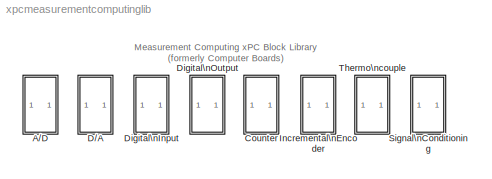
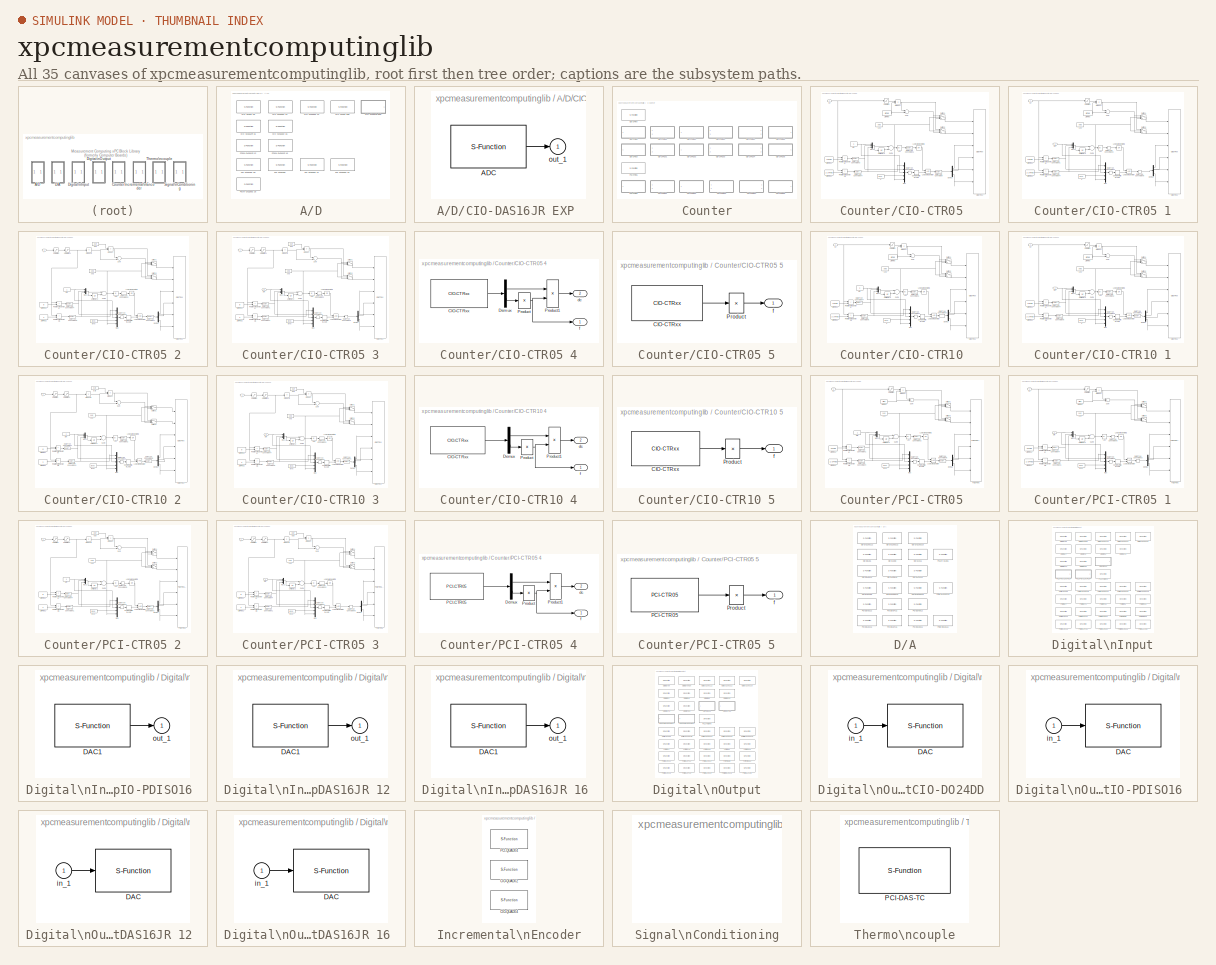
[diagram: thumbnail index - all 35 canvases of the model, root first then tree order]
MODEL xpcmeasurementcomputinglib
KIND library
BLOCK [SubSystem] A//D
  EnableExecutionContextPropagation = on
  MinAlgLoopOccurrences = off
  Ports = []
  TreatAsAtomicUnit = off
BLOCK [S-Function] A//D/CIO-DAS16 330 
  FunctionName = adcbciodas
  InitFcn = madcbciodas(1);
  MaskCallbackString = ||||
  MaskDescription = CIO-DAS16/300\nComputerBoards\nAnalog Input
  MaskDisplay = disp('CIO-DAS16/330\\nComputerBoards\\nAnalog Input');port_label('output',1,'1');
  MaskEnableString = on,on,on,on,on
  MaskHelp = helpview(fullfile(docroot, 'mapfiles', 'xpc.map'), 'ComputerBoards_CIO-DAS16-330_AD')
  MaskIconFrame = on
  MaskIconOpaque = on
  MaskIconRotate = none
  MaskIconUnits = autoscale
  MaskInitialization = baseaddress=hex2dec(baseaddress(3:end));\nboardType=4;gain=0;offset=0;control=0;\n[gain, offset, control]=madcbciodas(2, channel, range, mux, baseaddress, boardType);\n
  MaskPromptString = Number of channels:|Range vector:|Input coupling:|Sample time:|Base address (i.e. 0xd000):
  MaskSelfModifiable = on
  MaskStyleString = edit,popup(+-10V|+-5V|+-2.5V|+-1.25V|+-0.625V|0-10V|0-5V|0-2.5V|0-1.25V),popup(Single-ended (16 channels)|differential (8 channels)),edit,edit
  MaskTabNameString = ,,,,
  MaskToolTipString = on,on,on,on,on
  MaskTunableValueString = on,on,on,on,on
  MaskType = adcbpcidas
  MaskValueString = 1|+-10V|Single-ended (16 channels)|0.001|0x300
  MaskVarAliasString = ,,,,
  MaskVariables = channel=@1;range=@2;mux=@3;sampletime=@4;baseaddress=&5;
  MaskVisibilityString = on,on,on,on,on
  Parameters = channel, range, gain, offset, control, mux, sampletime, baseaddress,  boardType
  Ports = [0, 1]
BLOCK [S-Function] A//D/CIO-DAS16 JR 
  FunctionName = adcbciodas
  InitFcn = madcbciodas(1);
  MaskCallbackString = ||||
  MaskDescription = CIO-DAS16/JR\nComputerBoards\nAnalog Input
  MaskDisplay = disp('CIO-DAS16/JR\\nComputerBoards\\nAnalog Input');port_label('output',1,'1');
  MaskEnableString = on,on,on,on,on
  MaskHelp = helpview(fullfile(docroot, 'mapfiles', 'xpc.map'), 'ComputerBoards_CIO-DAS16-JR_AD')
  MaskIconFrame = on
  MaskIconOpaque = on
  MaskIconRotate = none
  MaskIconUnits = autoscale
  MaskInitialization = baseaddress=hex2dec(baseaddress(3:end));\nboardType=1;gain=0;offset=0;control=0;\n[gain, offset, control]=madcbciodas(2, channel, range, mux, baseaddress, boardType);\n
  MaskPromptString = Number of channels:|Range vector:|Input coupling:|Sample time:|Base address (i.e. 0xd000):
  MaskSelfModifiable = on
  MaskStyleString = edit,popup(+-10V|+-5V|+-2.5V|+-1.25V|+-0.625V|0-10V|0-5V|0-2.5V|0-1.25V),popup(Single-ended (16 channels)|differential (8 channels)),edit,edit
  MaskTabNameString = ,,,,
  MaskToolTipString = on,on,on,on,on
  MaskTunableValueString = on,on,on,on,on
  MaskType = adcbpcidas
  MaskValueString = 1|+-10V|Single-ended (16 channels)|0.001|0x300
  MaskVarAliasString = ,,,,
  MaskVariables = channel=@1;range=@2;mux=@3;sampletime=@4;baseaddress=&5;
  MaskVisibilityString = on,on,on,on,on
  Parameters = channel, range, gain, offset, control, mux, sampletime, baseaddress,  boardType
  Ports = [0, 1]
BLOCK [S-Function] A//D/CIO-DAS1601 12 
  FunctionName = adcbciodas
  InitFcn = madcbciodas(1);
  MaskCallbackString = ||||
  MaskDescription = CIO-DAS1601/12\nComputerBoards\nAnalog Input
  MaskDisplay = disp('CIO-DAS1601/12\\nComputerBoards\\nAnalog Input');port_label('output',1,'1');
  MaskEnableString = on,on,on,on,on
  MaskHelp = helpview(fullfile(docroot, 'mapfiles', 'xpc.map'), 'ComputerBoards_CIO-DAS1601-12_AD')
  MaskIconFrame = on
  MaskIconOpaque = on
  MaskIconRotate = none
  MaskIconUnits = autoscale
  MaskInitialization = baseaddress=hex2dec(baseaddress(3:end));\nboardType=2;gain=0;offset=0;control=0;\n[gain, offset, control]=madcbciodas(2, channel, range, mux, baseaddress, boardType);\n
  MaskPromptString = Number of channels:|Range vector:|Input coupling:|Sample time:|Base address (i.e. 0xd000):
  MaskSelfModifiable = on
  MaskStyleString = edit,popup(+-10V|+-1V|+-0.1V|+-0.01V|0-10V|0-1V|0-0.1V|0-0.01V),popup(Single-ended (16 channels)|Differential (8 channels)),edit,edit
  MaskTabNameString = ,,,,
  MaskToolTipString = on,on,on,on,on
  MaskTunableValueString = on,on,on,on,on
  MaskType = adcbpcidas
  MaskValueString = 1|+-10V|Single-ended (16 channels)|0.001|0x300
  MaskVarAliasString = ,,,,
  MaskVariables = channel=@1;range=@2;mux=@3;sampletime=@4;baseaddress=&5;
  MaskVisibilityString = on,on,on,on,on
  Parameters = channel, range, gain, offset, control, mux, sampletime, baseaddress,  boardType
  Ports = [0, 1]
BLOCK [S-Function] A//D/CIO-DAS1602 12 
  FunctionName = adcbciodas
  InitFcn = madcbciodas(1);
  MaskCallbackString = ||||
  MaskDescription = CIO-DAS1602/12\nComputerBoards\nAnalog Input
  MaskDisplay = disp('CIO-DAS1602/12\\nComputerBoards\\nAnalog Input');port_label('output',1,'1');
  MaskEnableString = on,on,on,on,on
  MaskHelp = helpview(fullfile(docroot, 'mapfiles', 'xpc.map'), 'ComputerBoards_CIO-DAS1602-12_AD')
  MaskIconFrame = on
  MaskIconOpaque = on
  MaskIconRotate = none
  MaskIconUnits = autoscale
  MaskInitialization = baseaddress=hex2dec(baseaddress(3:end));\nboardType=3;gain=0;offset=0;control=0;\n[gain, offset, control]=madcbciodas(2, channel, range, mux, baseaddress, boardType);\n
  MaskPromptString = Number of channels:|Range vector:|Input coupling:|Sample time:|Base address (i.e. 0xd000):
  MaskSelfModifiable = on
  MaskStyleString = edit,popup(+-10V|+-5V|+-2.5V|+-1.25V|0-10V|0-5V|0-2.5V|0-1.25V),popup(Single-ended (16 channels)|Differential (8 channels)),edit,edit
  MaskTabNameString = ,,,,
  MaskToolTipString = on,on,on,on,on
  MaskTunableValueString = on,on,on,on,on
  MaskType = adcbpcidas
  MaskValueString = 1|+-10V|Single-ended (16 channels)|0.001|0x300
  MaskVarAliasString = ,,,,
  MaskVariables = channel=@1;range=@2;mux=@3;sampletime=@4;baseaddress=&5;
  MaskVisibilityString = on,on,on,on,on
  Parameters = channel, range, gain, offset, control, mux, sampletime, baseaddress,  boardType
  Ports = [0, 1]
BLOCK [S-Function] A//D/CIO-DAS1602 16 
  FunctionName = adcbciodas
  InitFcn = madcbciodas(1);
  MaskCallbackString = ||||
  MaskDescription = CIO-DAS1602/16\nComputerBoards\nAnalog Input
  MaskDisplay = disp('CIO-DAS1602/16\\nComputerBoards\\nAnalog Input');port_label('output',1,'1');
  MaskEnableString = on,on,on,on,on
  MaskHelp = helpview(fullfile(docroot, 'mapfiles', 'xpc.map'), 'ComputerBoards_CIO-DAS1602-16_AD')
  MaskIconFrame = on
  MaskIconOpaque = on
  MaskIconRotate = none
  MaskIconUnits = autoscale
  MaskInitialization = baseaddress=hex2dec(baseaddress(3:end));\nboardType=7;gain=0;offset=0;control=0;\n[gain, offset, control]=madcbciodas(2, channel, range, mux, baseaddress, boardType);\n
  MaskPromptString = Number of channels:|Range vector:|Input coupling:|Sample time:|Base address (i.e. 0xd000):
  MaskSelfModifiable = on
  MaskStyleString = edit,popup(+-10V|+-5V|+-2.5V|+-1.25V|+-0.625V|0-10V|0-5V|0-2.5V|0-1.25V),popup(Single-ended (16 channels)|differential (8 channels)),edit,edit
  MaskTabNameString = ,,,,
  MaskToolTipString = on,on,on,on,on
  MaskTunableValueString = on,on,on,on,on
  MaskType = adcbpcidas
  MaskValueString = 1|+-10V|Single-ended (16 channels)|0.001|0x300
  MaskVarAliasString = ,,,,
  MaskVariables = channel=@1;range=@2;mux=@3;sampletime=@4;baseaddress=&5;
  MaskVisibilityString = on,on,on,on,on
  Parameters = channel, range, gain, offset, control, mux, sampletime, baseaddress,  boardType
  Ports = [0, 1]
BLOCK [S-Function] A//D/CIO-DAS16JR 16 
  FunctionName = adcbciodas
  InitFcn = madcbciodas(1);
  MaskCallbackString = ||||
  MaskDescription = CIO-DAS16JR/16\nComputerBoards\nAnalog Input
  MaskDisplay = disp('CIO-DAS16JR/16\\nComputerBoards\\nAnalog Input');port_label('output',1,'1');
  MaskEnableString = on,on,on,on,on
  MaskHelp = helpview(fullfile(docroot, 'mapfiles', 'xpc.map'), 'ComputerBoards_CIO-DAS16JR-16_AD')
  MaskIconFrame = on
  MaskIconOpaque = on
  MaskIconRotate = none
  MaskIconUnits = autoscale
  MaskInitialization = baseaddress=hex2dec(baseaddress(3:end));\nboardType=6;gain=0;offset=0;control=0;\n[gain, offset, control]=madcbciodas(2, channel, range, mux, baseaddress, boardType);\n
  MaskPromptString = Number of channels:|Range vector:|Input coupling:|Sample time:|Base address (i.e. 0xd000):
  MaskSelfModifiable = on
  MaskStyleString = edit,popup(+-10V|+-5V|+-2.5V|+-1.25V|+-0.625V|0-10V|0-5V|0-2.5V|0-1.25V),popup(Single-ended (16 channels)|differential (8 channels)),edit,edit
  MaskTabNameString = ,,,,
  MaskToolTipString = on,on,on,on,on
  MaskTunableValueString = on,on,on,on,on
  MaskType = adcbpcidas
  MaskValueString = 1|+-10V|Single-ended (16 channels)|0.001|0x300
  MaskVarAliasString = ,,,,
  MaskVariables = channel=@1;range=@2;mux=@3;sampletime=@4;baseaddress=&5;
  MaskVisibilityString = on,on,on,on,on
  Parameters = channel, range, gain, offset, control, mux, sampletime, baseaddress,  boardType
  Ports = [0, 1]
BLOCK [SubSystem] A//D/CIO-DAS16JR EXP 
  EnableExecutionContextPropagation = on
  MaskCallbackString = |||||
  MaskDescription = Computer Boards\nCIO-DAS16/Jr with EXP\nAnalog Input
  MaskDisplay = disp('CIO-DAS16/Jr EXP\\nComputerBoards\\nAnalog Input')
  MaskEnableString = on,on,on,on,on,on
  MaskHelp = helpview(fullfile(docroot, 'mapfiles', 'xpc.map'), 'ComputerBoards_CIO-DAS16JR-EXP_AD')
  MaskIconFrame = on
  MaskIconOpaque = on
  MaskIconRotate = none
  MaskIconUnits = autoscale
  MaskInitialization = baseaddress=hex2dec(baseaddress(3:end));
  MaskPromptString = EXP channel vector:|EXP gain vector:|A/D board channel:|A/D board range:|Sample time:|Base address (i.e. 0xd000):
  MaskStyleString = edit,edit,popup(0|1|2|3|4|5|6|7|8|9|10|11|12|13|14|15),popup(+-10V|+-5V|+-2.5V|+-1.25V|+-0.625V|0-10V|0-5V|0-2.5V|0-1.25V),edit,edit
  MaskTabNameString = ,,,,,
  MaskToolTipString = on,on,on,on,on,on
  MaskTunableValueString = on,on,on,on,on,on
  MaskType = Analog Input Module
  MaskValueString = []|[]|0|+-10V|0.001|0x300
  MaskVarAliasString = ,,,,,
  MaskVariables = channels=@1;gain=@2;admux=@3;range=@4;sampletime=@5;baseaddress=&6;
  MaskVisibilityString = on,on,on,on,on,on
  MinAlgLoopOccurrences = off
  Ports = [0, 1]
  ShowPortLabels = off
  TreatAsAtomicUnit = off
BLOCK [S-Function] A//D/CIO-DAS16JR EXP /ADC
  FunctionName = adcbdas16jrexp
  Parameters = channels, gain, admux, range, sampletime, baseaddress
  Ports = [0, 1]
BLOCK [Outport] A//D/CIO-DAS16JR EXP /out_1
  BusOutputAsStruct = off
  IconDisplay = Port number
  InitialOutput = 0
BLOCK [S-Function] A//D/PC104-DAS16JR 12 
  FunctionName = adcbciodas
  InitFcn = madcbciodas(1);
  MaskCallbackString = ||||
  MaskDescription = PC104-DAS16JR/12\nComputerBoards\nAnalog Input
  MaskDisplay = disp('PC104-DAS16JR/12\\nComputerBoards\\nAnalog Input');port_label('output',1,'1');
  MaskEnableString = on,on,on,on,on
  MaskHelp = helpview(fullfile(docroot, 'mapfiles', 'xpc.map'), 'ComputerBoards_PC104-DAS16JR-12_AD')
  MaskIconFrame = on
  MaskIconOpaque = on
  MaskIconRotate = none
  MaskIconUnits = autoscale
  MaskInitialization = baseaddress=hex2dec(baseaddress(3:end));\nboardType=5;gain=0;offset=0;control=0;\n[gain, offset, control]=madcbciodas(2, channel, range, mux, baseaddress, boardType);\n
  MaskPromptString = Number of channels:|Range vector:|Input coupling:|Sample time:|Base address (i.e. 0xd000):
  MaskSelfModifiable = on
  MaskStyleString = edit,popup(+-10V|+-5V|+-2.5V|+-1.25V|+-0.625V|0-10V|0-5V|0-2.5V|0-1.25V),popup(Single-ended (16 channels)|differential (8 channels)),edit,edit
  MaskTabNameString = ,,,,
  MaskToolTipString = on,on,on,on,on
  MaskTunableValueString = on,on,on,on,on
  MaskType = adcbpcidas
  MaskValueString = 1|+-10V|Single-ended (16 channels)|0.001|0x300
  MaskVarAliasString = ,,,,
  MaskVariables = channel=@1;range=@2;mux=@3;sampletime=@4;baseaddress=&5;
  MaskVisibilityString = on,on,on,on,on
  Parameters = channel, range, gain, offset, control, mux, sampletime, baseaddress,  boardType
  Ports = [0, 1]
BLOCK [S-Function] A//D/PC104-DAS16JR 16 
  FunctionName = adcbciodas
  InitFcn = madcbciodas(1);
  MaskCallbackString = ||||
  MaskDescription = PC104-DAS16JR/16\nComputerBoards\nAnalog Input
  MaskDisplay = disp('PC104-DAS16JR/16\\nComputerBoards\\nAnalog Input');port_label('output',1,'1');
  MaskEnableString = on,on,on,on,on
  MaskHelp = helpview(fullfile(docroot, 'mapfiles', 'xpc.map'), 'ComputerBoards_PC104-DAS16JR-16_AD')
  MaskIconFrame = on
  MaskIconOpaque = on
  MaskIconRotate = none
  MaskIconUnits = autoscale
  MaskInitialization = baseaddress=hex2dec(baseaddress(3:end));\nboardType=8;gain=0;offset=0;control=0;\n[gain, offset, control]=madcbciodas(2, channel, range, mux, baseaddress, boardType);\n
  MaskPromptString = Number of channels:|Range vector:|Input coupling:|Sample time:|Base address (i.e. 0xd000):
  MaskSelfModifiable = on
  MaskStyleString = edit,popup(+-10V|+-5V|+-2.5V|+-1.25V|+-0.625V|0-10V|0-5V|0-2.5V|0-1.25V),popup(Single-ended (16 channels)|differential (8 channels)),edit,edit
  MaskTabNameString = ,,,,
  MaskToolTipString = on,on,on,on,on
  MaskTunableValueString = on,on,on,on,on
  MaskType = adcbpcidas
  MaskValueString = 1|+-10V|Single-ended (16 channels)|0.001|0x300
  MaskVarAliasString = ,,,,
  MaskVariables = channel=@1;range=@2;mux=@3;sampletime=@4;baseaddress=&5;
  MaskVisibilityString = on,on,on,on,on
  Parameters = channel, range, gain, offset, control, mux, sampletime, baseaddress,  boardType
  Ports = [0, 1]
BLOCK [S-Function] A//D/PCI-DAS1200 
  FunctionName = adcbpcidas
  InitFcn = madcbpcidas(1);
  MaskCallbackString = ||||
  MaskDescription = PCI-DAS1200\nComputerBoards\nAnalog Input
  MaskDisplay = disp('PCI-DAS1200\\nComputerBoards\\nAnalog Input');port_label('output',1,'1');
  MaskEnableString = on,on,on,on,on
  MaskHelp = helpview(fullfile(docroot, 'mapfiles', 'xpc.map'), 'ComputerBoards_PCI-DAS1200_AD')
  MaskIconFrame = on
  MaskIconOpaque = on
  MaskIconRotate = none
  MaskIconUnits = autoscale
  MaskInitialization = boardType=1;gain=0;offset=0;control=0;\n[gain, offset, control]=madcbpcidas(2, channel, range, mux, slot, boardType);\n
  MaskPromptString = Number of channels:|Range vector:|Input coupling:|Sample time:|PCI slot (-1: autosearch):
  MaskSelfModifiable = on
  MaskStyleString = edit,popup(+-10V|+-5V|+-2.5V|+-1.25V|0-10V|0-5V|0-2.5V|0-1.25V),popup(Single-ended (16 channels)|Differential (8 channels)),edit,edit
  MaskTabNameString = ,,,,
  MaskToolTipString = on,on,on,on,on
  MaskTunableValueString = on,on,on,on,on
  MaskType = adcbpcidas
  MaskValueString = 1|+-10V|Single-ended (16 channels)|0.001|-1
  MaskVarAliasString = ,,,,
  MaskVariables = channel=@1;range=@2;mux=@3;sampletime=@4;slot=@5;
  MaskVisibilityString = on,on,on,on,on
  Parameters = channel, range, gain, offset, control, mux, sampletime, slot,  boardType
  Ports = [0, 1]
BLOCK [S-Function] A//D/PCI-DAS1200 JR 
  FunctionName = adcbpcidas
  InitFcn = madcbpcidas(1);
  MaskCallbackString = ||||
  MaskDescription = PCI-DAS1200/JR\nComputerBoards\nAnalog Input
  MaskDisplay = disp('PCI-DAS1200/JR\\nComputerBoards\\nAnalog Input');port_label('output',1,'1');
  MaskEnableString = on,on,on,on,on
  MaskHelp = helpview(fullfile(docroot, 'mapfiles', 'xpc.map'), 'ComputerBoards_PCI-DAS1200-JR_AD')
  MaskIconFrame = on
  MaskIconOpaque = on
  MaskIconRotate = none
  MaskIconUnits = autoscale
  MaskInitialization = boardType=2;gain=0;offset=0;control=0;\n[gain, offset, control]=madcbpcidas(2, channel, range, mux, slot, boardType);\n
  MaskPromptString = Number of channels:|Range vector:|Input coupling:|Sample time:|PCI slot (-1: autosearch):
  MaskSelfModifiable = on
  MaskStyleString = edit,popup(+-10V|+-5V|+-2.5V|+-1.25V|0-10V|0-5V|0-2.5V|0-1.25V),popup(Single-ended (16 channels)|Differential (8 channels)),edit,edit
  MaskTabNameString = ,,,,
  MaskToolTipString = on,on,on,on,on
  MaskTunableValueString = on,on,on,on,on
  MaskType = adcbpcidas
  MaskValueString = 1|+-10V|Single-ended (16 channels)|0.001|-1
  MaskVarAliasString = ,,,,
  MaskVariables = channel=@1;range=@2;mux=@3;sampletime=@4;slot=@5;
  MaskVisibilityString = on,on,on,on,on
  Parameters = channel, range, gain, offset, control, mux, sampletime, slot,  boardType
  Ports = [0, 1]
BLOCK [S-Function] A//D/PCI-DAS1602 12 
  FunctionName = adcbpcidas1600
  InitFcn = madcbpcidas1600(1);
  MaskCallbackString = ||||
  MaskDescription = PCI-DAS1602/12\nComputerBoards\nAnalog Input
  MaskDisplay = disp('PCI-DAS1602/12\\nComputerBoards\\nAnalog Input');port_label('output',1,'1');
  MaskEnableString = on,on,on,on,on
  MaskHelp = helpview(fullfile(docroot, 'mapfiles', 'xpc.map'), 'ComputerBoards_PCI-DAS1602-12_AD')
  MaskIconFrame = on
  MaskIconOpaque = on
  MaskIconRotate = none
  MaskIconUnits = autoscale
  MaskInitialization = boardType=1;\ncontrol=0;\ngain=0;\noffset=0;\n[gain, offset, control]=madcbpcidas1600(2, channel, range, mux, slot, boardType);\n
  MaskPromptString = Number of channels:|Range vector:|Input coupling:|Sample time:|PCI slot (-1: autosearch):
  MaskSelfModifiable = on
  MaskStyleString = edit,popup(+-10V|+-5V|+-2.5V|+-1.25V|0-10V|0-5V|0-2.5V|0-1.25V),popup(Single-ended (16 channels)|Differential (8 channels)),edit,edit
  MaskTabNameString = ,,,,
  MaskToolTipString = on,on,on,on,on
  MaskTunableValueString = on,on,on,on,on
  MaskType = adcbpcidas160212
  MaskValueString = 1|+-10V|Single-ended (16 channels)|0.001|-1
  MaskVarAliasString = ,,,,
  MaskVariables = channel=@1;range=@2;mux=@3;sampletime=@4;slot=@5;
  MaskVisibilityString = on,on,on,on,on
  Parameters = channel, range, gain, offset, control, mux, sampletime, slot,  boardType
  Ports = [0, 1]
BLOCK [S-Function] A//D/PCI-DAS1602 16 
  FunctionName = adcbpcidas1600
  InitFcn = madcbpcidas1600(1);
  MaskCallbackString = ||||
  MaskDescription = PCI-DAS1602/16\nComputerBoards\nAnalog Input
  MaskDisplay = disp('PCI-DAS1602/16\\nComputerBoards\\nAnalog Input');port_label('output',1,'1');
  MaskEnableString = on,on,on,on,on
  MaskHelp = helpview(fullfile(docroot, 'mapfiles', 'xpc.map'), 'ComputerBoards_PCI-DAS1602-16_AD')
  MaskIconFrame = on
  MaskIconOpaque = on
  MaskIconRotate = none
  MaskIconUnits = autoscale
  MaskInitialization = boardType=2;\ncontrol=0;\ngain=0;\noffset=0;\n[gain, offset, control]=madcbpcidas1600(2, channel, range, mux, slot, boardType);\n
  MaskPromptString = Number of channels:|Range vector:|Input coupling:|Sample time:|PCI slot (-1: autosearch):
  MaskSelfModifiable = on
  MaskStyleString = edit,popup(+-10V|+-5V|+-2.5V|+-1.25V|0-10V|0-5V|0-2.5V|0-1.25V),popup(Single-ended (16 channels)|Differential (8 channels)),edit,edit
  MaskTabNameString = ,,,,
  MaskToolTipString = on,on,on,on,on
  MaskTunableValueString = on,on,on,on,on
  MaskType = adcbpcidas160216
  MaskValueString = 1|+-10V|Single-ended (16 channels)|0.001|-1
  MaskVarAliasString = ,,,,
  MaskVariables = channel=@1;range=@2;mux=@3;sampletime=@4;slot=@5;
  MaskVisibilityString = on,on,on,on,on
  Parameters = channel, range, gain, offset, control, mux, sampletime, slot,  boardType
  Ports = [0, 1]
BLOCK [S-Function] A//D/PCIM-DAS1602 16 
  FunctionName = adcbpcidas1600
  InitFcn = madcbpcidas1600(1);
  MaskCallbackString = ||||
  MaskDescription = PCIM-DAS1602/16\nComputerBoards\nAnalog Input
  MaskDisplay = disp('PCIM-DAS1602/16\\nComputerBoards\\nAnalog Input');port_label('output',1,'1');
  MaskEnableString = on,on,on,on,on
  MaskHelp = helpview(fullfile(docroot, 'mapfiles', 'xpc.map'), 'ComputerBoards_PCIM-DAS1602-16_AD')
  MaskIconFrame = on
  MaskIconOpaque = on
  MaskIconRotate = none
  MaskIconUnits = autoscale
  MaskInitialization = boardType=3;\ncontrol=0;\ngain=0;\noffset=0;\n[gain, offset, control]=madcbpcidas1600(2, channel, range, mux, slot, boardType);\n
  MaskPromptString = Number of channels:|Range vector:|Input coupling:|Sample time:|PCI slot (-1: autosearch):
  MaskSelfModifiable = on
  MaskStyleString = edit,popup(+-10V|+-5V|+-2.5V|+-1.25V|0-10V|0-5V|0-2.5V|0-1.25V),popup(Single-ended (16 channels)|Differential (8 channels)),edit,edit
  MaskTabNameString = ,,,,
  MaskToolTipString = on,on,on,on,on
  MaskTunableValueString = on,on,on,on,on
  MaskType = adcbpcimdas160216
  MaskValueString = 1|+-10V|Single-ended (16 channels)|0.001|-1
  MaskVarAliasString = ,,,,
  MaskVariables = channel=@1;range=@2;mux=@3;sampletime=@4;slot=@5;
  MaskVisibilityString = on,on,on,on,on
  Parameters = channel, range, gain, offset, control, mux, sampletime, slot,  boardType
  Ports = [0, 1]
BLOCK [SubSystem] Counter
  EnableExecutionContextPropagation = on
  MinAlgLoopOccurrences = off
  Ports = []
  TreatAsAtomicUnit = off
BLOCK [SubSystem] Counter/CIO-CTR05 
  EnableExecutionContextPropagation = on
  MaskCallbackString = ||||||
  MaskDescription = CIO-CTR05\nComputerBoards\nPWM
  MaskDisplay = text(0.95,0.75,'CIO-CTR05','horizontalAlignment','right');text(0.95,0.50,'ComputerBoards','horizontalAlignment','right');text(0.95,0.25,'PWM','horizontalAlignment','right');port_label('input',1,[num2str(counterin),' (dc)'] );
  MaskEnableString = on,on,on,on,on,on,on
  MaskHelp = helpview(fullfile(docroot, 'mapfiles', 'xpc.map'), 'ComputerBoards_CIO-CTR05_Counter')
  MaskIconFrame = on
  MaskIconOpaque = on
  MaskIconRotate = none
  MaskIconUnits = normalized
  MaskInitialization = init_arm=0;\ninitduty=0.5;\ncounter=counterin;\nif counter>5\ncounter=counter-5;\nbaseAddress=['0x',dec2hex(hex2dec(baseAddress(3:end))+4)];\nend;\n[MasterMode, CounterMode, Init, Runtime, Term] =pwmarm_amd9513(counter, freq_base, freq, initduty, level, init_arm);\nlevel=level-1;\nseq=seq-1;  <repeated x4 — deduplicated; at blocks: CIO-CTR05, CIO-CTR05 1, CIO-CTR10, CIO-CTR10 1>
  MaskPromptString = Counter:|Frequency base:|Relative output frequency:|Level sequence of square wave:|Level when disarmed:|Sample time:|Base address (i.e. 0xd000):
  MaskSelfModifiable = on
  MaskStyleString = popup(1|2|3|4|5),popup(F1=1MHz|F2=100KHz|F3=10kHz|F4=1kHz|F5=100Hz),edit,popup(High - Low|Low- High),popup(Low|High),edit,edit
  MaskTabNameString = ,,,,,,
  MaskToolTipString = on,on,on,on,on,on,on
  MaskTunableValueString = on,on,on,on,on,on,on
  MaskType = PWM
  MaskValueString = 1|F1=1MHz|0.001|High - Low|High|0.001|0x300
  MaskVarAliasString = ,,,,,,
  MaskVariables = counterin=@1;freq_base=@2;freq=@3;seq=@4;level=@5;Ts=@6;baseAddress=&7;
  MaskVisibilityString = on,on,on,on,on,on,on
  MinAlgLoopOccurrences = off
  Ports = [1]
  TreatAsAtomicUnit = off
BLOCK [Constant] Counter/CIO-CTR05 /1//relFreq
  Value = 1/freq
BLOCK [Constant] Counter/CIO-CTR05 /1//relFreq1
  Value = 2*freq
BLOCK [Constant] Counter/CIO-CTR05 /1//relFreq2
  Value = 1-2*freq
BLOCK [Abs] Counter/CIO-CTR05 /Abs
BLOCK [Reference] Counter/CIO-CTR05 /CIO-CTRxx   REF=xpcmeasurementcomputinglib/Counter/CIO-CTRxx 
  Ports = [6]
  SourceBlock = xpcmeasurementcomputinglib/Counter/CIO-CTRxx
  SourceType = cioctrxx
  baseAddress = baseAddress
  commands = Runtime
  countermode = CounterMode
  init = Init
  mastermode = MasterMode
  term = Term
  ts = Ts
BLOCK [CombinatorialLogic] Counter/CIO-CTR05 /Combinatorial \nLogic
  TruthTable = [0,0,1,0;0,0,1,0;0,0,0,1;0,0,0,1;0,1,0,0;1,0,0,0;0,1,0,0;1,0,0,0;0,0,1,0;0,0,1,0;0,0,0,1;0,0,0,1;0,0,1,0;0,0,1,0;0,0,1,0;0,0,1,0;0,0,1,0;0,0,1,0;0,0,0,1;0,0,0,1;0,0,0,1;0,0,0,1;0,0,0,1;0,0,0,1;0,0,0,0;0,0,0,0;0,0,0,0;0,0,0,0;0,0,0,0;0,0,0,0;0,0,0,0;0,0,0,0]  <repeated x12 — deduplicated; at blocks: Combinatorial \nLogic>
BLOCK [DataTypeConversion] Counter/CIO-CTR05 /Data Type Conversion
BLOCK [DataTypeConversion] Counter/CIO-CTR05 /Data Type Conversion1
BLOCK [DataTypeConversion] Counter/CIO-CTR05 /Data Type Conversion2
BLOCK [DataTypeConversion] Counter/CIO-CTR05 /Data Type Conversion3
  OutDataTypeMode = double
BLOCK [DataTypeConversion] Counter/CIO-CTR05 /Data Type Conversion4
  OutDataTypeMode = double
BLOCK [Demux] Counter/CIO-CTR05 /Demux
  Ports = [1, 4]
BLOCK [Logic] Counter/CIO-CTR05 /Logical\nOperator
  Ports = [2, 1]
BLOCK [Logic] Counter/CIO-CTR05 /Logical\nOperator1
  Inputs = 1
  Operator = OR
  Ports = [1, 1]
BLOCK [Mux] Counter/CIO-CTR05 /Mux
  DisplayOption = bar
  Inputs = 5
  Ports = [5, 1]
BLOCK [Mux] Counter/CIO-CTR05 /Mux1
  DisplayOption = bar
  Inputs = 3
  Ports = [3, 1]
BLOCK [Product] Counter/CIO-CTR05 /Product
  Ports = [2, 1]
  RndMeth = Floor
BLOCK [RelationalOperator] Counter/CIO-CTR05 /Relational\nOperator
  Operator = <
BLOCK [RelationalOperator] Counter/CIO-CTR05 /Relational\nOperator1
  Operator = >
BLOCK [Saturate] Counter/CIO-CTR05 /Saturation
  LowerLimit = 2*freq
  UpperLimit = 1-2*freq
  ZeroCross = off
BLOCK [Sum] Counter/CIO-CTR05 /Sum
  Inputs = -+
  Ports = [2, 1]
BLOCK [Sum] Counter/CIO-CTR05 /Sum4
  Inputs = +-
  Ports = [2, 1]
BLOCK [Switch] Counter/CIO-CTR05 /Switch1
  SaturateOnIntegerOverflow = off
  Threshold = 0.5
BLOCK [Switch] Counter/CIO-CTR05 /Switch2
  SaturateOnIntegerOverflow = off
  Threshold = 0.5
BLOCK [UnitDelay] Counter/CIO-CTR05 /Unit Delay2
  SampleTime = Ts
  X0 = 2
BLOCK [Constant] Counter/CIO-CTR05 /arm
BLOCK [Inport] Counter/CIO-CTR05 /dc
  IconDisplay = Port number
  LatchInput = off
BLOCK [Constant] Counter/CIO-CTR05 /g
  Value = level
BLOCK [Constant] Counter/CIO-CTR05 /seq
  Value = seq
BLOCK [SubSystem] Counter/CIO-CTR05 1
  EnableExecutionContextPropagation = on
  MaskCallbackString = ||||||
  MaskDescription = CIO-CTR05\nComputerBoards\nPWM & ARM
  MaskDisplay = text(0.95,0.75,'CIO-CTR05','horizontalAlignment','right');text(0.95,0.50,'ComputerBoards','horizontalAlignment','right');text(0.95,0.25,'PWM & ARM','horizontalAlignment','right');port_label('input',1,[num2str(counterin),' (dc)'] );port_label('input',2,[num2str(counterin),' (arm)'] );
  MaskEnableString = on,on,on,on,on,on,on
  MaskHelp = helpview(fullfile(docroot, 'mapfiles', 'xpc.map'), 'ComputerBoards_CIO-CTR05-1_Counter')
  MaskIconFrame = on
  MaskIconOpaque = on
  MaskIconRotate = none
  MaskIconUnits = normalized
  MaskPromptString = Counter:|Frequency base:|Relative output frequency:|Level sequence of square wave:|Level when disarmed:|Sample time:|Base address (i.e. 0xd000):
  MaskSelfModifiable = on
  MaskStyleString = popup(1|2|3|4|5),popup(F1=1MHz|F2=100KHz|F3=10kHz|F4=1kHz|F5=100Hz),edit,popup(High - Low|Low- High),popup(Low|High),edit,edit
  MaskTabNameString = ,,,,,,
  MaskToolTipString = on,on,on,on,on,on,on
  MaskTunableValueString = on,on,on,on,on,on,on
  MaskType = PWM
  MaskValueString = 1|F1=1MHz|0.001|High - Low|High|0.001|0x300
  MaskVarAliasString = ,,,,,,
  MaskVariables = counterin=@1;freq_base=@2;freq=@3;seq=@4;level=@5;Ts=@6;baseAddress=&7;
  MaskVisibilityString = on,on,on,on,on,on,on
  MinAlgLoopOccurrences = off
  Ports = [2]
  TreatAsAtomicUnit = off
BLOCK [Constant] Counter/CIO-CTR05 1/1//relFreq
  Value = 1/freq
BLOCK [Constant] Counter/CIO-CTR05 1/1//relFreq1
  Value = 2*freq
BLOCK [Constant] Counter/CIO-CTR05 1/1//relFreq2
  Value = 1-2*freq
BLOCK [Abs] Counter/CIO-CTR05 1/Abs
BLOCK [Reference] Counter/CIO-CTR05 1/CIO-CTRxx   REF=xpcmeasurementcomputinglib/Counter/CIO-CTRxx 
  Ports = [6]
  SourceBlock = xpcmeasurementcomputinglib/Counter/CIO-CTRxx
  SourceType = cioctrxx
  baseAddress = baseAddress
  commands = Runtime
  countermode = CounterMode
  init = Init
  mastermode = MasterMode
  term = Term
  ts = Ts
BLOCK [CombinatorialLogic] Counter/CIO-CTR05 1/Combinatorial \nLogic
BLOCK [DataTypeConversion] Counter/CIO-CTR05 1/Data Type Conversion1
  OutDataTypeMode = double
BLOCK [DataTypeConversion] Counter/CIO-CTR05 1/Data Type Conversion2
BLOCK [DataTypeConversion] Counter/CIO-CTR05 1/Data Type Conversion3
BLOCK [DataTypeConversion] Counter/CIO-CTR05 1/Data Type Conversion4
  OutDataTypeMode = double
BLOCK [DataTypeConversion] Counter/CIO-CTR05 1/Data Type Conversion5
BLOCK [Demux] Counter/CIO-CTR05 1/Demux
  Ports = [1, 4]
BLOCK [Logic] Counter/CIO-CTR05 1/Logical\nOperator
  Ports = [2, 1]
BLOCK [Logic] Counter/CIO-CTR05 1/Logical\nOperator1
  Inputs = 1
  Operator = OR
  Ports = [1, 1]
BLOCK [Mux] Counter/CIO-CTR05 1/Mux
  DisplayOption = bar
  Inputs = 5
  Ports = [5, 1]
BLOCK [Mux] Counter/CIO-CTR05 1/Mux1
  DisplayOption = bar
  Inputs = 3
  Ports = [3, 1]
BLOCK [Product] Counter/CIO-CTR05 1/Product
  Ports = [2, 1]
  RndMeth = Floor
BLOCK [RelationalOperator] Counter/CIO-CTR05 1/Relational\nOperator
  Operator = <
BLOCK [RelationalOperator] Counter/CIO-CTR05 1/Relational\nOperator1
  Operator = >
BLOCK [Saturate] Counter/CIO-CTR05 1/Saturation
  LowerLimit = 2*freq
  UpperLimit = 1-2*freq
  ZeroCross = off
BLOCK [Sum] Counter/CIO-CTR05 1/Sum
  Inputs = -+
  Ports = [2, 1]
BLOCK [Sum] Counter/CIO-CTR05 1/Sum4
  Inputs = +-
  Ports = [2, 1]
BLOCK [Switch] Counter/CIO-CTR05 1/Switch1
  SaturateOnIntegerOverflow = off
  Threshold = 0.5
BLOCK [Switch] Counter/CIO-CTR05 1/Switch2
  SaturateOnIntegerOverflow = off
  Threshold = 0.5
BLOCK [UnitDelay] Counter/CIO-CTR05 1/Unit Delay2
  SampleTime = Ts
  X0 = 2
BLOCK [Inport] Counter/CIO-CTR05 1/arm
  IconDisplay = Port number
  LatchInput = off
  Port = 2
BLOCK [Inport] Counter/CIO-CTR05 1/dc
  IconDisplay = Port number
  LatchInput = off
BLOCK [Constant] Counter/CIO-CTR05 1/g
  Value = level
BLOCK [Constant] Counter/CIO-CTR05 1/seq
  Value = seq
BLOCK [SubSystem] Counter/CIO-CTR05 2
  EnableExecutionContextPropagation = on
  MaskCallbackString = ||||||
  MaskDescription = CIO-CTR05\nComputerBoards\nFM
  MaskDisplay = text(0.95,0.75,'CIO-CTR05','horizontalAlignment','right');text(0.95,0.50,'ComputerBoards','horizontalAlignment','right');text(0.95,0.25,'FM','horizontalAlignment','right');port_label('input',1,[num2str(counterin),' (f)'] );
  MaskEnableString = on,on,on,on,on,on,on
  MaskHelp = helpview(fullfile(docroot, 'mapfiles', 'xpc.map'), 'ComputerBoards_CIO-CTR05-2_Counter')
  MaskIconFrame = on
  MaskIconOpaque = on
  MaskIconRotate = none
  MaskIconUnits = normalized
  MaskInitialization = init_arm=0;\ninitfreq=0.005;\ncounter=counterin;\nif counter>5\ncounter=counter-5;\nbaseAddress=['0x',dec2hex(hex2dec(baseAddress(3:end))+4)];\nend;\n[MasterMode, CounterMode, Init, Runtime, Term] =fmarm_amd9513(counter, freq_base, duty, initfreq, level, init_arm);\nlevel=level-1;\nseq=seq-1;  <repeated x4 — deduplicated; at blocks: CIO-CTR05 2, CIO-CTR05 3, CIO-CTR10 2, CIO-CTR10 3>
  MaskPromptString = Counter:|Frequency base:|Output duty cycle:|Level sequence of square wave:|Level when disarmed:|Sample time:|Base address (i.e. 0xd000):
  MaskSelfModifiable = on
  MaskStyleString = popup(1|2|3|4|5),popup(F1=1MHz|F2=100KHz|F3=10kHz|F4=1kHz|F5=100Hz),edit,popup(High - Low|Low- High),popup(Low|High),edit,edit
  MaskTabNameString = ,,,,,,
  MaskToolTipString = on,on,on,on,on,on,on
  MaskTunableValueString = on,on,on,on,on,on,on
  MaskType = PWM
  MaskValueString = 1|F1=1MHz|0.001|High - Low|High|0.001|0x300
  MaskVarAliasString = ,,,,,,
  MaskVariables = counterin=@1;freq_base=@2;duty=@3;seq=@4;level=@5;Ts=@6;baseAddress=&7;
  MaskVisibilityString = on,on,on,on,on,on,on
  MinAlgLoopOccurrences = off
  Ports = [1]
  TreatAsAtomicUnit = off
BLOCK [Constant] Counter/CIO-CTR05 2/1//relFreq1
  Value = 0
BLOCK [Constant] Counter/CIO-CTR05 2/1//relFreq2
BLOCK [Abs] Counter/CIO-CTR05 2/Abs
BLOCK [Reference] Counter/CIO-CTR05 2/CIO-CTRxx   REF=xpcmeasurementcomputinglib/Counter/CIO-CTRxx 
  Ports = [6]
  SourceBlock = xpcmeasurementcomputinglib/Counter/CIO-CTRxx
  SourceType = cioctrxx
  baseAddress = baseAddress
  commands = Runtime
  countermode = CounterMode
  init = Init
  mastermode = MasterMode
  term = Term
  ts = Ts
BLOCK [CombinatorialLogic] Counter/CIO-CTR05 2/Combinatorial \nLogic
BLOCK [DataTypeConversion] Counter/CIO-CTR05 2/Data Type Conversion1
BLOCK [DataTypeConversion] Counter/CIO-CTR05 2/Data Type Conversion2
BLOCK [DataTypeConversion] Counter/CIO-CTR05 2/Data Type Conversion3
BLOCK [DataTypeConversion] Counter/CIO-CTR05 2/Data Type Conversion4
  OutDataTypeMode = double
BLOCK [DataTypeConversion] Counter/CIO-CTR05 2/Data Type Conversion5
  OutDataTypeMode = double
BLOCK [Demux] Counter/CIO-CTR05 2/Demux
  Ports = [1, 4]
BLOCK [Logic] Counter/CIO-CTR05 2/Logical\nOperator
  Ports = [2, 1]
BLOCK [Logic] Counter/CIO-CTR05 2/Logical\nOperator1
  Inputs = 1
  Operator = OR
  Ports = [1, 1]
BLOCK [Mux] Counter/CIO-CTR05 2/Mux
  DisplayOption = bar
  Inputs = 5
  Ports = [5, 1]
BLOCK [Mux] Counter/CIO-CTR05 2/Mux1
  DisplayOption = bar
  Inputs = 3
  Ports = [3, 1]
BLOCK [Product] Counter/CIO-CTR05 2/Product
  Ports = [2, 1]
  RndMeth = Floor
BLOCK [Product] Counter/CIO-CTR05 2/Product1
  Inputs = /
  Ports = [1, 1]
  RndMeth = Floor
BLOCK [RelationalOperator] Counter/CIO-CTR05 2/Relational\nOperator
  Operator = <
BLOCK [RelationalOperator] Counter/CIO-CTR05 2/Relational\nOperator1
  Operator = >
BLOCK [Saturate] Counter/CIO-CTR05 2/Saturation
  LowerLimit = duty/(2^16-1)
  UpperLimit = duty/2
  ZeroCross = off
BLOCK [Saturate] Counter/CIO-CTR05 2/Saturation1
  LowerLimit = (1-duty)/(2^16-1)
  UpperLimit = (1-duty)/2
  ZeroCross = off
BLOCK [Sum] Counter/CIO-CTR05 2/Sum
  Inputs = -+
  Ports = [2, 1]
BLOCK [Sum] Counter/CIO-CTR05 2/Sum4
  Inputs = +-
  Ports = [2, 1]
BLOCK [Switch] Counter/CIO-CTR05 2/Switch1
  SaturateOnIntegerOverflow = off
  Threshold = 0.5
BLOCK [Switch] Counter/CIO-CTR05 2/Switch2
  SaturateOnIntegerOverflow = off
  Threshold = 0.5
BLOCK [UnitDelay] Counter/CIO-CTR05 2/Unit Delay2
  SampleTime = Ts
  X0 = 2
BLOCK [Constant] Counter/CIO-CTR05 2/arm
BLOCK [Constant] Counter/CIO-CTR05 2/duty
  Value = duty
BLOCK [Inport] Counter/CIO-CTR05 2/f
  IconDisplay = Port number
  LatchInput = off
BLOCK [Constant] Counter/CIO-CTR05 2/level
  Value = level
BLOCK [Constant] Counter/CIO-CTR05 2/seq
  Value = seq
BLOCK [SubSystem] Counter/CIO-CTR05 3
  EnableExecutionContextPropagation = on
  MaskCallbackString = ||||||
  MaskDescription = CIO-CTR05\nComputerBoards\nFM & ARM
  MaskDisplay = text(0.95,0.75,'CIO-CTR05','horizontalAlignment','right');text(0.95,0.50,'ComputerBoards','horizontalAlignment','right');text(0.95,0.25,'FM & ARM','horizontalAlignment','right');port_label('input',1,[num2str(counterin),' (f)'] );port_label('input',2,[num2str(counterin),' (arm)'] );
  MaskEnableString = on,on,on,on,on,on,on
  MaskHelp = helpview(fullfile(docroot, 'mapfiles', 'xpc.map'), 'ComputerBoards_CIO-CTR05-3_Counter')
  MaskIconFrame = on
  MaskIconOpaque = on
  MaskIconRotate = none
  MaskIconUnits = normalized
  MaskPromptString = Counter:|Frequency base:|Output duty cycle:|Level sequence of square wave:|Level when disarmed:|Sample time:|Base address (i.e. 0xd000):
  MaskSelfModifiable = on
  MaskStyleString = popup(1|2|3|4|5),popup(F1=1MHz|F2=100KHz|F3=10kHz|F4=1kHz|F5=100Hz),edit,popup(High - Low|Low- High),popup(Low|High),edit,edit
  MaskTabNameString = ,,,,,,
  MaskToolTipString = on,on,on,on,on,on,on
  MaskTunableValueString = on,on,on,on,on,on,on
  MaskType = FM
  MaskValueString = 1|F1=1MHz|0.001|High - Low|High|0.001|0x300
  MaskVarAliasString = ,,,,,,
  MaskVariables = counterin=@1;freq_base=@2;duty=@3;seq=@4;level=@5;Ts=@6;baseAddress=&7;
  MaskVisibilityString = on,on,on,on,on,on,on
  MinAlgLoopOccurrences = off
  Ports = [2]
  TreatAsAtomicUnit = off
BLOCK [Constant] Counter/CIO-CTR05 3/1//relFreq1
  Value = 0
BLOCK [Constant] Counter/CIO-CTR05 3/1//relFreq2
BLOCK [Abs] Counter/CIO-CTR05 3/Abs
BLOCK [Reference] Counter/CIO-CTR05 3/CIO-CTRxx   REF=xpcmeasurementcomputinglib/Counter/CIO-CTRxx 
  Ports = [6]
  SourceBlock = xpcmeasurementcomputinglib/Counter/CIO-CTRxx
  SourceType = cioctrxx
  baseAddress = baseAddress
  commands = Runtime
  countermode = CounterMode
  init = Init
  mastermode = MasterMode
  term = Term
  ts = Ts
BLOCK [CombinatorialLogic] Counter/CIO-CTR05 3/Combinatorial \nLogic
BLOCK [DataTypeConversion] Counter/CIO-CTR05 3/Data Type Conversion1
  OutDataTypeMode = double
BLOCK [DataTypeConversion] Counter/CIO-CTR05 3/Data Type Conversion2
BLOCK [DataTypeConversion] Counter/CIO-CTR05 3/Data Type Conversion3
BLOCK [DataTypeConversion] Counter/CIO-CTR05 3/Data Type Conversion4
  OutDataTypeMode = double
BLOCK [DataTypeConversion] Counter/CIO-CTR05 3/Data Type Conversion5
BLOCK [Demux] Counter/CIO-CTR05 3/Demux
  Ports = [1, 4]
BLOCK [Logic] Counter/CIO-CTR05 3/Logical\nOperator
  Ports = [2, 1]
BLOCK [Logic] Counter/CIO-CTR05 3/Logical\nOperator1
  Inputs = 1
  Operator = OR
  Ports = [1, 1]
BLOCK [Mux] Counter/CIO-CTR05 3/Mux
  DisplayOption = bar
  Inputs = 5
  Ports = [5, 1]
BLOCK [Mux] Counter/CIO-CTR05 3/Mux1
  DisplayOption = bar
  Inputs = 3
  Ports = [3, 1]
BLOCK [Product] Counter/CIO-CTR05 3/Product
  Ports = [2, 1]
  RndMeth = Floor
BLOCK [Product] Counter/CIO-CTR05 3/Product1
  Inputs = /
  Ports = [1, 1]
  RndMeth = Floor
BLOCK [RelationalOperator] Counter/CIO-CTR05 3/Relational\nOperator
  Operator = <
BLOCK [RelationalOperator] Counter/CIO-CTR05 3/Relational\nOperator1
  Operator = >
BLOCK [Saturate] Counter/CIO-CTR05 3/Saturation
  LowerLimit = duty/(2^16-1)
  UpperLimit = duty/2
  ZeroCross = off
BLOCK [Saturate] Counter/CIO-CTR05 3/Saturation1
  LowerLimit = (1-duty)/(2^16-1)
  UpperLimit = (1-duty)/2
  ZeroCross = off
BLOCK [Sum] Counter/CIO-CTR05 3/Sum
  Inputs = -+
  Ports = [2, 1]
BLOCK [Sum] Counter/CIO-CTR05 3/Sum4
  Inputs = +-
  Ports = [2, 1]
BLOCK [Switch] Counter/CIO-CTR05 3/Switch1
  SaturateOnIntegerOverflow = off
  Threshold = 0.5
BLOCK [Switch] Counter/CIO-CTR05 3/Switch2
  SaturateOnIntegerOverflow = off
  Threshold = 0.5
BLOCK [UnitDelay] Counter/CIO-CTR05 3/Unit Delay2
  SampleTime = Ts
  X0 = 2
BLOCK [Inport] Counter/CIO-CTR05 3/arm
  IconDisplay = Port number
  LatchInput = off
  Port = 2
BLOCK [Constant] Counter/CIO-CTR05 3/duty
  Value = duty
BLOCK [Inport] Counter/CIO-CTR05 3/f
  IconDisplay = Port number
  LatchInput = off
BLOCK [Constant] Counter/CIO-CTR05 3/level
  Value = level
BLOCK [Constant] Counter/CIO-CTR05 3/seq
  Value = seq
BLOCK [SubSystem] Counter/CIO-CTR05 4
  EnableExecutionContextPropagation = on
  MaskCallbackString = |||
  MaskDescription = CIO-CTR05\nComputerBoards\nPWM capture
  MaskDisplay = text(0.05,0.75,'CIO-CTR05','horizontalAlignment','left');text(0.05,0.50,'ComputerBoards','horizontalAlignment','left');text(0.05,0.25,'PWM capture','horizontalAlignment','left');port_label('output',1,[num2str(counterin),' (f)'] );port_label('output',2,[num2str(counterin+1),' (dc)'] );
  MaskEnableString = on,on,on,on
  MaskHelp = helpview(fullfile(docroot, 'mapfiles', 'xpc.map'), 'ComputerBoards_CIO-CTR05-4_Counter')
  MaskIconFrame = on
  MaskIconOpaque = on
  MaskIconRotate = none
  MaskIconUnits = normalized
  MaskInitialization = counter=counterin;\nif counter>4\ncounter=counter-4;\nbaseAddress=['0x',dec2hex(hex2dec(baseAddress(3:end))+4)];\nend;\n[MasterMode, CounterMode, Init, Runtime, Term] =pwmcap_amd9513(counter, freq_base);\n
  MaskPromptString = Counter:|Frequency base:|Sample time:|Base address (i.e. 0xd000):
  MaskSelfModifiable = on
  MaskStyleString = popup(1&2|2&3|3&4|4&5),popup(F1=1MHz|F2=100KHz|F3=10kHz|F4=1kHz|F5=100Hz),edit,edit
  MaskTabNameString = ,,,
  MaskToolTipString = on,on,on,on
  MaskTunableValueString = on,on,on,on
  MaskType = PWMcap
  MaskValueString = 1&2|F1=1MHz|0.001|0x300
  MaskVarAliasString = ,,,
  MaskVariables = counterin=@1;freq_base=@2;Ts=@3;baseAddress=&4;
  MaskVisibilityString = on,on,on,on
  MinAlgLoopOccurrences = off
  Ports = [0, 2]
  TreatAsAtomicUnit = off
BLOCK [Reference] Counter/CIO-CTR05 4/CIO-CTRxx   REF=xpcmeasurementcomputinglib/Counter/CIO-CTRxx 
  Ports = [0, 1]
  SourceBlock = xpcmeasurementcomputinglib/Counter/CIO-CTRxx
  SourceType = cioctrxx
  baseAddress = baseAddress
  commands = Runtime
  countermode = CounterMode
  init = Init
  mastermode = MasterMode
  term = Term
  ts = Ts
BLOCK [Demux] Counter/CIO-CTR05 4/Demux
  Outputs = 2
  Ports = [1, 2]
BLOCK [Product] Counter/CIO-CTR05 4/Product
  Inputs = /
  Ports = [1, 1]
  RndMeth = Floor
BLOCK [Product] Counter/CIO-CTR05 4/Product1
  Inputs = **
  Ports = [2, 1]
  RndMeth = Floor
BLOCK [Outport] Counter/CIO-CTR05 4/dc
  BusOutputAsStruct = off
  IconDisplay = Port number
  Port = 2
BLOCK [Outport] Counter/CIO-CTR05 4/f
  BusOutputAsStruct = off
  IconDisplay = Port number
BLOCK [SubSystem] Counter/CIO-CTR05 5
  EnableExecutionContextPropagation = on
  MaskCallbackString = |||
  MaskDescription = CIO-CTR05\nComputerBoards\nFrequency capture
  MaskDisplay = text(0.05,0.75,'CIO-CTR05','horizontalAlignment','left');text(0.05,0.50,'ComputerBoards','horizontalAlignment','left');text(0.05,0.25,'Freq. capture','horizontalAlignment','left');port_label('output',1,[num2str(counterin),' (f)'] );
  MaskEnableString = on,on,on,on
  MaskHelp = helpview(fullfile(docroot, 'mapfiles', 'xpc.map'), 'ComputerBoards_CIO-CTR05-5_Counter')
  MaskIconFrame = on
  MaskIconOpaque = on
  MaskIconRotate = none
  MaskIconUnits = normalized
  MaskInitialization = counter=counterin;\nif counter>5\ncounter=counter-5;\nbaseAddress=['0x',dec2hex(hex2dec(baseAddress(3:end))+4)];\nend;\n[MasterMode, CounterMode, Init, Runtime, Term] =freqcap_amd9513(counter, freq_base);\n
  MaskPromptString = Counter:|Frequency base:|Sample time:|Base address (i.e. 0xd000):
  MaskSelfModifiable = on
  MaskStyleString = popup(1|2|3|4|5),popup(F1=1MHz|F2=100KHz|F3=10kHz|F4=1kHz|F5=100Hz),edit,edit
  MaskTabNameString = ,,,
  MaskToolTipString = on,on,on,on
  MaskTunableValueString = on,on,on,on
  MaskType = FREQcap
  MaskValueString = 1|F1=1MHz|0.001|0x300
  MaskVarAliasString = ,,,
  MaskVariables = counterin=@1;freq_base=@2;Ts=@3;baseAddress=&4;
  MaskVisibilityString = on,on,on,on
  MinAlgLoopOccurrences = off
  Ports = [0, 1]
  TreatAsAtomicUnit = off
BLOCK [Reference] Counter/CIO-CTR05 5/CIO-CTRxx   REF=xpcmeasurementcomputinglib/Counter/CIO-CTRxx 
  Ports = [0, 1]
  SourceBlock = xpcmeasurementcomputinglib/Counter/CIO-CTRxx
  SourceType = cioctrxx
  baseAddress = baseAddress
  commands = Runtime
  countermode = CounterMode
  init = Init
  mastermode = MasterMode
  term = Term
  ts = Ts
BLOCK [Product] Counter/CIO-CTR05 5/Product
  Inputs = /
  Ports = [1, 1]
  RndMeth = Floor
BLOCK [Outport] Counter/CIO-CTR05 5/f
  BusOutputAsStruct = off
  IconDisplay = Port number
BLOCK [SubSystem] Counter/CIO-CTR10 
  EnableExecutionContextPropagation = on
  MaskCallbackString = ||||||
  MaskDescription = CIO-CTR10\nComputerBoards\nPWM
  MaskDisplay = text(0.95,0.75,'CIO-CTR10','horizontalAlignment','right');text(0.95,0.50,'ComputerBoards','horizontalAlignment','right');text(0.95,0.25,'PWM','horizontalAlignment','right');port_label('input',1,[num2str(counterin),' (dc)'] );
  MaskEnableString = on,on,on,on,on,on,on
  MaskHelp = helpview(fullfile(docroot, 'mapfiles', 'xpc.map'), 'ComputerBoards_CIO-CTR10_Counter')
  MaskIconFrame = on
  MaskIconOpaque = on
  MaskIconRotate = none
  MaskIconUnits = normalized
  MaskPromptString = Counter:|Frequency base:|Relative output frequency:|Level sequence of square wave:|Level when disarmed:|Sample time:|Base address (i.e. 0xd000):
  MaskSelfModifiable = on
  MaskStyleString = popup(1|2|3|4|5|6|7|8|9|10),popup(F1=1MHz|F2=100KHz|F3=10kHz|F4=1kHz|F5=100Hz),edit,popup(High - Low|Low- High),popup(Low|High),edit,edit
  MaskTabNameString = ,,,,,,
  MaskToolTipString = on,on,on,on,on,on,on
  MaskTunableValueString = on,on,on,on,on,on,on
  MaskType = PWM
  MaskValueString = 1|F1=1MHz|0.001|High - Low|High|0.001|0x300
  MaskVarAliasString = ,,,,,,
  MaskVariables = counterin=@1;freq_base=@2;freq=@3;seq=@4;level=@5;Ts=@6;baseAddress=&7;
  MaskVisibilityString = on,on,on,on,on,on,on
  MinAlgLoopOccurrences = off
  Ports = [1]
  TreatAsAtomicUnit = off
BLOCK [Constant] Counter/CIO-CTR10 /1//relFreq
  Value = 1/freq
BLOCK [Constant] Counter/CIO-CTR10 /1//relFreq1
  Value = 2*freq
BLOCK [Constant] Counter/CIO-CTR10 /1//relFreq2
  Value = 1-2*freq
BLOCK [Abs] Counter/CIO-CTR10 /Abs
BLOCK [Reference] Counter/CIO-CTR10 /CIO-CTRxx   REF=xpcmeasurementcomputinglib/Counter/CIO-CTRxx 
  Ports = [6]
  SourceBlock = xpcmeasurementcomputinglib/Counter/CIO-CTRxx
  SourceType = cioctrxx
  baseAddress = baseAddress
  commands = Runtime
  countermode = CounterMode
  init = Init
  mastermode = MasterMode
  term = Term
  ts = Ts
BLOCK [CombinatorialLogic] Counter/CIO-CTR10 /Combinatorial \nLogic
BLOCK [DataTypeConversion] Counter/CIO-CTR10 /Data Type Conversion1
BLOCK [DataTypeConversion] Counter/CIO-CTR10 /Data Type Conversion2
BLOCK [DataTypeConversion] Counter/CIO-CTR10 /Data Type Conversion3
BLOCK [DataTypeConversion] Counter/CIO-CTR10 /Data Type Conversion4
  OutDataTypeMode = double
BLOCK [DataTypeConversion] Counter/CIO-CTR10 /Data Type Conversion5
  OutDataTypeMode = double
BLOCK [Demux] Counter/CIO-CTR10 /Demux
  Ports = [1, 4]
BLOCK [Logic] Counter/CIO-CTR10 /Logical\nOperator
  Ports = [2, 1]
BLOCK [Logic] Counter/CIO-CTR10 /Logical\nOperator1
  Inputs = 1
  Operator = OR
  Ports = [1, 1]
BLOCK [Mux] Counter/CIO-CTR10 /Mux
  DisplayOption = bar
  Inputs = 5
  Ports = [5, 1]
BLOCK [Mux] Counter/CIO-CTR10 /Mux1
  DisplayOption = bar
  Inputs = 3
  Ports = [3, 1]
BLOCK [Product] Counter/CIO-CTR10 /Product
  Ports = [2, 1]
  RndMeth = Floor
BLOCK [RelationalOperator] Counter/CIO-CTR10 /Relational\nOperator
  Operator = <
BLOCK [RelationalOperator] Counter/CIO-CTR10 /Relational\nOperator1
  Operator = >
BLOCK [Saturate] Counter/CIO-CTR10 /Saturation
  LowerLimit = 2*freq
  UpperLimit = 1-2*freq
  ZeroCross = off
BLOCK [Sum] Counter/CIO-CTR10 /Sum
  Inputs = -+
  Ports = [2, 1]
BLOCK [Sum] Counter/CIO-CTR10 /Sum4
  Inputs = +-
  Ports = [2, 1]
BLOCK [Switch] Counter/CIO-CTR10 /Switch1
  SaturateOnIntegerOverflow = off
  Threshold = 0.5
BLOCK [Switch] Counter/CIO-CTR10 /Switch2
  SaturateOnIntegerOverflow = off
  Threshold = 0.5
BLOCK [UnitDelay] Counter/CIO-CTR10 /Unit Delay2
  SampleTime = Ts
  X0 = 2
BLOCK [Constant] Counter/CIO-CTR10 /arm
BLOCK [Inport] Counter/CIO-CTR10 /dc
  IconDisplay = Port number
  LatchInput = off
BLOCK [Constant] Counter/CIO-CTR10 /g
  Value = level
BLOCK [Constant] Counter/CIO-CTR10 /seq
  Value = seq
BLOCK [SubSystem] Counter/CIO-CTR10 1
  EnableExecutionContextPropagation = on
  MaskCallbackString = ||||||
  MaskDescription = CIO-CTR10\nComputerBoards\nPWM & ARM
  MaskDisplay = text(0.95,0.75,'CIO-CTR10','horizontalAlignment','right');text(0.95,0.50,'ComputerBoards','horizontalAlignment','right');text(0.95,0.25,'PWM & ARM','horizontalAlignment','right');port_label('input',1,[num2str(counterin),' (dc)'] );port_label('input',2,[num2str(counterin),' (arm)'] );
  MaskEnableString = on,on,on,on,on,on,on
  MaskHelp = helpview(fullfile(docroot, 'mapfiles', 'xpc.map'), 'ComputerBoards_CIO-CTR10-1_Counter')
  MaskIconFrame = on
  MaskIconOpaque = on
  MaskIconRotate = none
  MaskIconUnits = normalized
  MaskPromptString = Counter:|Frequency base:|Relative output frequency:|Level sequence of square wave:|Level when disarmed:|Sample time:|Base address (i.e. 0xd000):
  MaskSelfModifiable = on
  MaskStyleString = popup(1|2|3|4|5|6|7|8|9|10),popup(F1=1MHz|F2=100KHz|F3=10kHz|F4=1kHz|F5=100Hz),edit,popup(High - Low|Low- High),popup(Low|High),edit,edit
  MaskTabNameString = ,,,,,,
  MaskToolTipString = on,on,on,on,on,on,on
  MaskTunableValueString = on,on,on,on,on,on,on
  MaskType = PWM
  MaskValueString = 1|F1=1MHz|0.001|High - Low|High|0.001|0x300
  MaskVarAliasString = ,,,,,,
  MaskVariables = counterin=@1;freq_base=@2;freq=@3;seq=@4;level=@5;Ts=@6;baseAddress=&7;
  MaskVisibilityString = on,on,on,on,on,on,on
  MinAlgLoopOccurrences = off
  Ports = [2]
  TreatAsAtomicUnit = off
BLOCK [Constant] Counter/CIO-CTR10 1/1//relFreq
  Value = 1/freq
BLOCK [Constant] Counter/CIO-CTR10 1/1//relFreq1
  Value = 2*freq
BLOCK [Constant] Counter/CIO-CTR10 1/1//relFreq2
  Value = 1-2*freq
BLOCK [Abs] Counter/CIO-CTR10 1/Abs
BLOCK [Reference] Counter/CIO-CTR10 1/CIO-CTRxx   REF=xpcmeasurementcomputinglib/Counter/CIO-CTRxx 
  Ports = [6]
  SourceBlock = xpcmeasurementcomputinglib/Counter/CIO-CTRxx
  SourceType = cioctrxx
  baseAddress = baseAddress
  commands = Runtime
  countermode = CounterMode
  init = Init
  mastermode = MasterMode
  term = Term
  ts = Ts
BLOCK [CombinatorialLogic] Counter/CIO-CTR10 1/Combinatorial \nLogic
BLOCK [DataTypeConversion] Counter/CIO-CTR10 1/Data Type Conversion1
BLOCK [DataTypeConversion] Counter/CIO-CTR10 1/Data Type Conversion2
BLOCK [DataTypeConversion] Counter/CIO-CTR10 1/Data Type Conversion3
BLOCK [DataTypeConversion] Counter/CIO-CTR10 1/Data Type Conversion4
  OutDataTypeMode = double
BLOCK [DataTypeConversion] Counter/CIO-CTR10 1/Data Type Conversion5
  OutDataTypeMode = double
BLOCK [Demux] Counter/CIO-CTR10 1/Demux
  Ports = [1, 4]
BLOCK [Logic] Counter/CIO-CTR10 1/Logical\nOperator
  Ports = [2, 1]
BLOCK [Logic] Counter/CIO-CTR10 1/Logical\nOperator1
  Inputs = 1
  Operator = OR
  Ports = [1, 1]
BLOCK [Mux] Counter/CIO-CTR10 1/Mux
  DisplayOption = bar
  Inputs = 5
  Ports = [5, 1]
BLOCK [Mux] Counter/CIO-CTR10 1/Mux1
  DisplayOption = bar
  Inputs = 3
  Ports = [3, 1]
BLOCK [Product] Counter/CIO-CTR10 1/Product
  Ports = [2, 1]
  RndMeth = Floor
BLOCK [RelationalOperator] Counter/CIO-CTR10 1/Relational\nOperator
  Operator = <
BLOCK [RelationalOperator] Counter/CIO-CTR10 1/Relational\nOperator1
  Operator = >
BLOCK [Saturate] Counter/CIO-CTR10 1/Saturation
  LowerLimit = 2*freq
  UpperLimit = 1-2*freq
  ZeroCross = off
BLOCK [Sum] Counter/CIO-CTR10 1/Sum
  Inputs = -+
  Ports = [2, 1]
BLOCK [Sum] Counter/CIO-CTR10 1/Sum4
  Inputs = +-
  Ports = [2, 1]
BLOCK [Switch] Counter/CIO-CTR10 1/Switch1
  SaturateOnIntegerOverflow = off
  Threshold = 0.5
BLOCK [Switch] Counter/CIO-CTR10 1/Switch2
  SaturateOnIntegerOverflow = off
  Threshold = 0.5
BLOCK [UnitDelay] Counter/CIO-CTR10 1/Unit Delay2
  SampleTime = Ts
  X0 = 2
BLOCK [Inport] Counter/CIO-CTR10 1/arm
  IconDisplay = Port number
  LatchInput = off
  Port = 2
BLOCK [Inport] Counter/CIO-CTR10 1/dc
  IconDisplay = Port number
  LatchInput = off
BLOCK [Constant] Counter/CIO-CTR10 1/g
  Value = level
BLOCK [Constant] Counter/CIO-CTR10 1/seq
  Value = seq
BLOCK [SubSystem] Counter/CIO-CTR10 2
  EnableExecutionContextPropagation = on
  MaskCallbackString = ||||||
  MaskDescription = CIO-CTR10\nComputerBoards\nFM
  MaskDisplay = text(0.95,0.75,'CIO-CTR10','horizontalAlignment','right');text(0.95,0.50,'ComputerBoards','horizontalAlignment','right');text(0.95,0.25,'FM','horizontalAlignment','right');port_label('input',1,[num2str(counterin),' (f)'] );
  MaskEnableString = on,on,on,on,on,on,on
  MaskHelp = helpview(fullfile(docroot, 'mapfiles', 'xpc.map'), 'ComputerBoards_CIO-CTR10-2_Counter')
  MaskIconFrame = on
  MaskIconOpaque = on
  MaskIconRotate = none
  MaskIconUnits = normalized
  MaskPromptString = Counter:|Frequency base:|Output duty cycle:|Level sequence of square wave:|Level when disarmed:|Sample time:|Base address (i.e. 0xd000):
  MaskSelfModifiable = on
  MaskStyleString = popup(1|2|3|4|5|6|7|8|9|10),popup(F1=1MHz|F2=100KHz|F3=10kHz|F4=1kHz|F5=100Hz),edit,popup(High - Low|Low- High),popup(Low|High),edit,edit
  MaskTabNameString = ,,,,,,
  MaskToolTipString = on,on,on,on,on,on,on
  MaskTunableValueString = on,on,on,on,on,on,on
  MaskType = PWM
  MaskValueString = 1|F1=1MHz|0.001|High - Low|High|0.001|0x300
  MaskVarAliasString = ,,,,,,
  MaskVariables = counterin=@1;freq_base=@2;duty=@3;seq=@4;level=@5;Ts=@6;baseAddress=&7;
  MaskVisibilityString = on,on,on,on,on,on,on
  MinAlgLoopOccurrences = off
  Ports = [1]
  TreatAsAtomicUnit = off
BLOCK [Constant] Counter/CIO-CTR10 2/1//relFreq1
  Value = 0
BLOCK [Constant] Counter/CIO-CTR10 2/1//relFreq2
BLOCK [Abs] Counter/CIO-CTR10 2/Abs
BLOCK [Reference] Counter/CIO-CTR10 2/CIO-CTRxx   REF=xpcmeasurementcomputinglib/Counter/CIO-CTRxx 
  Ports = [6]
  SourceBlock = xpcmeasurementcomputinglib/Counter/CIO-CTRxx
  SourceType = cioctrxx
  baseAddress = baseAddress
  commands = Runtime
  countermode = CounterMode
  init = Init
  mastermode = MasterMode
  term = Term
  ts = Ts
BLOCK [CombinatorialLogic] Counter/CIO-CTR10 2/Combinatorial \nLogic
BLOCK [DataTypeConversion] Counter/CIO-CTR10 2/Data Type Conversion1
  OutDataTypeMode = double
BLOCK [DataTypeConversion] Counter/CIO-CTR10 2/Data Type Conversion2
BLOCK [DataTypeConversion] Counter/CIO-CTR10 2/Data Type Conversion3
BLOCK [DataTypeConversion] Counter/CIO-CTR10 2/Data Type Conversion4
  OutDataTypeMode = double
BLOCK [DataTypeConversion] Counter/CIO-CTR10 2/Data Type Conversion5
BLOCK [Demux] Counter/CIO-CTR10 2/Demux
  Ports = [1, 4]
BLOCK [Logic] Counter/CIO-CTR10 2/Logical\nOperator
  Ports = [2, 1]
BLOCK [Logic] Counter/CIO-CTR10 2/Logical\nOperator1
  Inputs = 1
  Operator = OR
  Ports = [1, 1]
BLOCK [Mux] Counter/CIO-CTR10 2/Mux
  DisplayOption = bar
  Inputs = 5
  Ports = [5, 1]
BLOCK [Mux] Counter/CIO-CTR10 2/Mux1
  DisplayOption = bar
  Inputs = 3
  Ports = [3, 1]
BLOCK [Product] Counter/CIO-CTR10 2/Product
  Ports = [2, 1]
  RndMeth = Floor
BLOCK [Product] Counter/CIO-CTR10 2/Product1
  Inputs = /
  Ports = [1, 1]
  RndMeth = Floor
BLOCK [RelationalOperator] Counter/CIO-CTR10 2/Relational\nOperator
  Operator = <
BLOCK [RelationalOperator] Counter/CIO-CTR10 2/Relational\nOperator1
  Operator = >
BLOCK [Saturate] Counter/CIO-CTR10 2/Saturation
  LowerLimit = duty/(2^16-1)
  UpperLimit = duty/2
  ZeroCross = off
BLOCK [Saturate] Counter/CIO-CTR10 2/Saturation1
  LowerLimit = (1-duty)/(2^16-1)
  UpperLimit = (1-duty)/2
  ZeroCross = off
BLOCK [Sum] Counter/CIO-CTR10 2/Sum
  Inputs = -+
  Ports = [2, 1]
BLOCK [Sum] Counter/CIO-CTR10 2/Sum4
  Inputs = +-
  Ports = [2, 1]
BLOCK [Switch] Counter/CIO-CTR10 2/Switch1
  SaturateOnIntegerOverflow = off
  Threshold = 0.5
BLOCK [Switch] Counter/CIO-CTR10 2/Switch2
  SaturateOnIntegerOverflow = off
  Threshold = 0.5
BLOCK [UnitDelay] Counter/CIO-CTR10 2/Unit Delay2
  SampleTime = Ts
  X0 = 2
BLOCK [Constant] Counter/CIO-CTR10 2/arm
BLOCK [Constant] Counter/CIO-CTR10 2/duty
  Value = duty
BLOCK [Inport] Counter/CIO-CTR10 2/f
  IconDisplay = Port number
  LatchInput = off
BLOCK [Constant] Counter/CIO-CTR10 2/level
  Value = level
BLOCK [Constant] Counter/CIO-CTR10 2/seq
  Value = seq
BLOCK [SubSystem] Counter/CIO-CTR10 3
  EnableExecutionContextPropagation = on
  MaskCallbackString = ||||||
  MaskDescription = CIO-CTR10\nComputerBoards\nFM & ARM
  MaskDisplay = text(0.95,0.75,'CIO-CTR10','horizontalAlignment','right');text(0.95,0.50,'ComputerBoards','horizontalAlignment','right');text(0.95,0.25,'FM & ARM','horizontalAlignment','right');port_label('input',1,[num2str(counterin),' (f)'] );port_label('input',2,[num2str(counterin),' (arm)'] );
  MaskEnableString = on,on,on,on,on,on,on
  MaskHelp = helpview(fullfile(docroot, 'mapfiles', 'xpc.map'), 'ComputerBoards_CIO-CTR10-3_Counter')
  MaskIconFrame = on
  MaskIconOpaque = on
  MaskIconRotate = none
  MaskIconUnits = normalized
  MaskPromptString = Counter:|Frequency base:|Output duty cycle:|Level sequence of square wave:|Level when disarmed:|Sample time:|Base address (i.e. 0xd000):
  MaskSelfModifiable = on
  MaskStyleString = popup(1|2|3|4|5|6|7|8|9|10),popup(F1=1MHz|F2=100KHz|F3=10kHz|F4=1kHz|F5=100Hz),edit,popup(High - Low|Low- High),popup(Low|High),edit,edit
  MaskTabNameString = ,,,,,,
  MaskToolTipString = on,on,on,on,on,on,on
  MaskTunableValueString = on,on,on,on,on,on,on
  MaskType = FM
  MaskValueString = 1|F1=1MHz|0.001|High - Low|High|0.001|0x300
  MaskVarAliasString = ,,,,,,
  MaskVariables = counterin=@1;freq_base=@2;duty=@3;seq=@4;level=@5;Ts=@6;baseAddress=&7;
  MaskVisibilityString = on,on,on,on,on,on,on
  MinAlgLoopOccurrences = off
  Ports = [2]
  TreatAsAtomicUnit = off
BLOCK [Constant] Counter/CIO-CTR10 3/1//relFreq1
  Value = 0
BLOCK [Constant] Counter/CIO-CTR10 3/1//relFreq2
BLOCK [Abs] Counter/CIO-CTR10 3/Abs
BLOCK [Reference] Counter/CIO-CTR10 3/CIO-CTRxx   REF=xpcmeasurementcomputinglib/Counter/CIO-CTRxx 
  Ports = [6]
  SourceBlock = xpcmeasurementcomputinglib/Counter/CIO-CTRxx
  SourceType = cioctrxx
  baseAddress = baseAddress
  commands = Runtime
  countermode = CounterMode
  init = Init
  mastermode = MasterMode
  term = Term
  ts = Ts
BLOCK [CombinatorialLogic] Counter/CIO-CTR10 3/Combinatorial \nLogic
BLOCK [DataTypeConversion] Counter/CIO-CTR10 3/Data Type Conversion1
BLOCK [DataTypeConversion] Counter/CIO-CTR10 3/Data Type Conversion2
BLOCK [DataTypeConversion] Counter/CIO-CTR10 3/Data Type Conversion3
BLOCK [DataTypeConversion] Counter/CIO-CTR10 3/Data Type Conversion4
  OutDataTypeMode = double
BLOCK [DataTypeConversion] Counter/CIO-CTR10 3/Data Type Conversion5
  OutDataTypeMode = double
BLOCK [Demux] Counter/CIO-CTR10 3/Demux
  Ports = [1, 4]
BLOCK [Logic] Counter/CIO-CTR10 3/Logical\nOperator
  Ports = [2, 1]
BLOCK [Logic] Counter/CIO-CTR10 3/Logical\nOperator1
  Inputs = 1
  Operator = OR
  Ports = [1, 1]
BLOCK [Mux] Counter/CIO-CTR10 3/Mux
  DisplayOption = bar
  Inputs = 5
  Ports = [5, 1]
BLOCK [Mux] Counter/CIO-CTR10 3/Mux1
  DisplayOption = bar
  Inputs = 3
  Ports = [3, 1]
BLOCK [Product] Counter/CIO-CTR10 3/Product
  Ports = [2, 1]
  RndMeth = Floor
BLOCK [Product] Counter/CIO-CTR10 3/Product1
  Inputs = /
  Ports = [1, 1]
  RndMeth = Floor
BLOCK [RelationalOperator] Counter/CIO-CTR10 3/Relational\nOperator
  Operator = <
BLOCK [RelationalOperator] Counter/CIO-CTR10 3/Relational\nOperator1
  Operator = >
BLOCK [Saturate] Counter/CIO-CTR10 3/Saturation
  LowerLimit = duty/(2^16-1)
  UpperLimit = duty/2
  ZeroCross = off
BLOCK [Saturate] Counter/CIO-CTR10 3/Saturation1
  LowerLimit = (1-duty)/(2^16-1)
  UpperLimit = (1-duty)/2
  ZeroCross = off
BLOCK [Sum] Counter/CIO-CTR10 3/Sum
  Inputs = -+
  Ports = [2, 1]
BLOCK [Sum] Counter/CIO-CTR10 3/Sum4
  Inputs = +-
  Ports = [2, 1]
BLOCK [Switch] Counter/CIO-CTR10 3/Switch1
  SaturateOnIntegerOverflow = off
  Threshold = 0.5
BLOCK [Switch] Counter/CIO-CTR10 3/Switch2
  SaturateOnIntegerOverflow = off
  Threshold = 0.5
BLOCK [UnitDelay] Counter/CIO-CTR10 3/Unit Delay2
  SampleTime = Ts
  X0 = 2
BLOCK [Inport] Counter/CIO-CTR10 3/arm
  IconDisplay = Port number
  LatchInput = off
  Port = 2
BLOCK [Constant] Counter/CIO-CTR10 3/duty
  Value = duty
BLOCK [Inport] Counter/CIO-CTR10 3/f
  IconDisplay = Port number
  LatchInput = off
BLOCK [Constant] Counter/CIO-CTR10 3/level
  Value = level
BLOCK [Constant] Counter/CIO-CTR10 3/seq
  Value = seq
BLOCK [SubSystem] Counter/CIO-CTR10 4
  EnableExecutionContextPropagation = on
  MaskCallbackString = |||
  MaskDescription = CIO-CTR10\nComputerBoards\nPWM capture
  MaskDisplay = text(0.05,0.75,'CIO-CTR10','horizontalAlignment','left');text(0.05,0.50,'ComputerBoards','horizontalAlignment','left');text(0.05,0.25,'PWM capture','horizontalAlignment','left');port_label('output',1,[num2str(counterin),' (f)'] );port_label('output',2,[num2str(counterin+1),' (dc)'] );
  MaskEnableString = on,on,on,on
  MaskHelp = helpview(fullfile(docroot, 'mapfiles', 'xpc.map'), 'ComputerBoards_CIO-CTR10-4_Counter')
  MaskIconFrame = on
  MaskIconOpaque = on
  MaskIconRotate = none
  MaskIconUnits = normalized
  MaskInitialization = counter=counterin;\nif counter>4\ncounter=counter-4;\nbaseAddress=['0x',dec2hex(hex2dec(baseAddress(3:end))+4)];\nend;\n[MasterMode, CounterMode, Init, Runtime, Term] =pwmcap_amd9513(counter, freq_base);\n
  MaskPromptString = Counter:|Frequency base:|Sample time:|Base address (i.e. 0xd000):
  MaskSelfModifiable = on
  MaskStyleString = popup(1&2|2&3|3&4|4&5|6&7|7&8|8&9|9&10),popup(F1=1MHz|F2=100KHz|F3=10kHz|F4=1kHz|F5=100Hz),edit,edit
  MaskTabNameString = ,,,
  MaskToolTipString = on,on,on,on
  MaskTunableValueString = on,on,on,on
  MaskType = PWMcap
  MaskValueString = 1&2|F1=1MHz|0.001|0x300
  MaskVarAliasString = ,,,
  MaskVariables = counterin=@1;freq_base=@2;Ts=@3;baseAddress=&4;
  MaskVisibilityString = on,on,on,on
  MinAlgLoopOccurrences = off
  Ports = [0, 2]
  TreatAsAtomicUnit = off
BLOCK [Reference] Counter/CIO-CTR10 4/CIO-CTRxx   REF=xpcmeasurementcomputinglib/Counter/CIO-CTRxx 
  Ports = [0, 1]
  SourceBlock = xpcmeasurementcomputinglib/Counter/CIO-CTRxx
  SourceType = cioctrxx
  baseAddress = baseAddress
  commands = Runtime
  countermode = CounterMode
  init = Init
  mastermode = MasterMode
  term = Term
  ts = Ts
BLOCK [Demux] Counter/CIO-CTR10 4/Demux
  Outputs = 2
  Ports = [1, 2]
BLOCK [Product] Counter/CIO-CTR10 4/Product
  Inputs = /
  Ports = [1, 1]
  RndMeth = Floor
BLOCK [Product] Counter/CIO-CTR10 4/Product1
  Inputs = **
  Ports = [2, 1]
  RndMeth = Floor
BLOCK [Outport] Counter/CIO-CTR10 4/dc
  BusOutputAsStruct = off
  IconDisplay = Port number
  Port = 2
BLOCK [Outport] Counter/CIO-CTR10 4/f
  BusOutputAsStruct = off
  IconDisplay = Port number
BLOCK [SubSystem] Counter/CIO-CTR10 5
  EnableExecutionContextPropagation = on
  MaskCallbackString = |||
  MaskDescription = CIO-CTR10\nComputerBoards\nFrequency capture
  MaskDisplay = text(0.05,0.75,'CIO-CTR10','horizontalAlignment','left');text(0.05,0.50,'ComputerBoards','horizontalAlignment','left');text(0.05,0.25,'Freq. capture','horizontalAlignment','left');port_label('output',1,[num2str(counterin),' (f)'] );
  MaskEnableString = on,on,on,on
  MaskHelp = helpview(fullfile(docroot, 'mapfiles', 'xpc.map'), 'ComputerBoards_CIO-CTR10-5_Counter')
  MaskIconFrame = on
  MaskIconOpaque = on
  MaskIconRotate = none
  MaskIconUnits = normalized
  MaskInitialization = counter=counterin;\nif counter>5\ncounter=counter-5;\nbaseAddress=['0x',dec2hex(hex2dec(baseAddress(3:end))+4)];\nend;\n[MasterMode, CounterMode, Init, Runtime, Term] =freqcap_amd9513(counter, freq_base);\n
  MaskPromptString = Counter:|Frequency base:|Sample time:|Base address (i.e. 0xd000):
  MaskSelfModifiable = on
  MaskStyleString = popup(1|2|3|4|5|6|7|8|9|10),popup(F1=1MHz|F2=100KHz|F3=10kHz|F4=1kHz|F5=100Hz),edit,edit
  MaskTabNameString = ,,,
  MaskToolTipString = on,on,on,on
  MaskTunableValueString = on,on,on,on
  MaskType = FREQcap
  MaskValueString = 1|F1=1MHz|0.001|0x300
  MaskVarAliasString = ,,,
  MaskVariables = counterin=@1;freq_base=@2;Ts=@3;baseAddress=&4;
  MaskVisibilityString = on,on,on,on
  MinAlgLoopOccurrences = off
  Ports = [0, 1]
  TreatAsAtomicUnit = off
BLOCK [Reference] Counter/CIO-CTR10 5/CIO-CTRxx   REF=xpcmeasurementcomputinglib/Counter/CIO-CTRxx 
  Ports = [0, 1]
  SourceBlock = xpcmeasurementcomputinglib/Counter/CIO-CTRxx
  SourceType = cioctrxx
  baseAddress = baseAddress
  commands = Runtime
  countermode = CounterMode
  init = Init
  mastermode = MasterMode
  term = Term
  ts = Ts
BLOCK [Product] Counter/CIO-CTR10 5/Product
  Inputs = /
  Ports = [1, 1]
  RndMeth = Floor
BLOCK [Outport] Counter/CIO-CTR10 5/f
  BusOutputAsStruct = off
  IconDisplay = Port number
BLOCK [S-Function] Counter/CIO-CTRxx 
  FunctionName = ctramd9513isa
  MaskCallbackString = ||||||
  MaskDescription = CIO-CTRxx\nComputerBoards\nAMD9513 Counter
  MaskDisplay = disp('AMD9513\\nCounter')
  MaskEnableString = on,on,on,on,on,on,on
  MaskHelp = helpview(fullfile(docroot, 'mapfiles', 'xpc.map'), 'ComputerBoards_CIO-CTRxx_Counter')
  MaskIconFrame = on
  MaskIconOpaque = on
  MaskIconRotate = none
  MaskIconUnits = autoscale
  MaskInitialization = baseAddress=hex2dec(baseAddress(3:end));\n[io,mm, cms, initir, ir, termir]=mamd9513parse(mastermode, countermode, init, commands, term);\n
  MaskPromptString = Master mode structure:|Counter mode structure:|Initialization command structure:|Runtime command structure:|Termination command structure:|Sample time:|9513 chip base address (i.e. 0xd000):
  MaskSelfModifiable = on
  MaskStyleString = edit,edit,edit,edit,edit,edit,edit
  MaskTabNameString = ,,,,,,
  MaskToolTipString = on,on,on,on,on,on,on
  MaskTunableValueString = on,on,on,on,on,on,on
  MaskType = cioctrxx
  MaskValueString = []|[]|[]|[]|[]|0.001|'0x300'
  MaskVarAliasString = ,,,,,,
  MaskVariables = mastermode=@1;countermode=@2;init=@3;commands=@4;term=@5;ts=@6;baseAddress=@7;
  MaskVisibilityString = on,on,on,on,on,on,on
  Parameters = io, mm, cms, initir, ir, termir, ts, baseAddress
  Ports = []
BLOCK [SubSystem] Counter/PCI-CTR05 
  EnableExecutionContextPropagation = on
  InitFcn = mctr05checks(1);
  MaskCallbackString = ||||||
  MaskDescription = PCI-CTR05\nComputerBoards\nPWM & ARM
  MaskDisplay = text(0.95,0.75,'PCI-CTR05','horizontalAlignment','right');text(0.95,0.50,'ComputerBoards','horizontalAlignment','right');text(0.95,0.25,'PWM','horizontalAlignment','right');port_label('input',1,[num2str(counterin),' (dc)'] );
  MaskEnableString = on,on,on,on,on,on,on
  MaskHelp = helpview(fullfile(docroot, 'mapfiles', 'xpc.map'), 'ComputerBoards_PCI-CTR05_Counter')
  MaskIconFrame = on
  MaskIconOpaque = on
  MaskIconRotate = none
  MaskIconUnits = normalized
  MaskInitialization = init_arm=0;\ninitduty=0.5;\ncounter=counterin;\nif counter>5\ncounter=counter-5;\nend;\n[MasterMode, CounterMode, Init, Runtime, Term] =pwmarm_amd9513(counter, freq_base, freq, initduty, level, init_arm);\nlevel=level-1;\nseq=seq-1;\n
  MaskPromptString = Counter:|Frequency base:|Relative output frequency:|Level sequence of square wave:|Level when disarmed:|Sample time:|PCI slot (-1: autosearch):
  MaskSelfModifiable = on
  MaskStyleString = popup(1|2|3|4|5),popup(F1=5MHz|F2=500KHz|F3=50kHz|F4=5kHz|F5=500Hz),edit,popup(high - low|low- high),popup(Low|High),edit,edit
  MaskTabNameString = ,,,,,,
  MaskToolTipString = on,on,on,on,on,on,on
  MaskTunableValueString = on,on,on,on,on,on,on
  MaskType = PWM
  MaskValueString = 1|F1=5MHz|0.01|high - low|Low|0.001|-1
  MaskVarAliasString = ,,,,,,
  MaskVariables = counterin=@1;freq_base=@2;freq=@3;seq=@4;level=@5;Ts=@6;pciSlot=@7;
  MaskVisibilityString = on,on,on,on,on,on,on
  MinAlgLoopOccurrences = off
  Ports = [1]
  TreatAsAtomicUnit = off
BLOCK [S-Function] Counter/PCI-CTR05  
  FunctionName = ctramd9513cbpcictr05
  MaskCallbackString = ||||||
  MaskDescription = PCI-CTR05\nComputerBoards\nAMD9513 Counter
  MaskDisplay = disp('AMD9513\\nCounter')
  MaskEnableString = on,on,on,on,on,on,on
  MaskHelp = helpview(fullfile(docroot, 'mapfiles', 'xpc.map'), 'ComputerBoards_PCI-CTR05_Counter')
  MaskIconFrame = on
  MaskIconOpaque = on
  MaskIconRotate = none
  MaskIconUnits = autoscale
  MaskInitialization = [io,mm, cms, initir, ir, termir]=mamd9513parse(mastermode, countermode, init, commands, term);
  MaskPromptString = Master mode structure:|Counter mode structure:|Initialization command structure:|Runtime command structure:|Termination command structure:|Sample time:|PCI slot (-1: autosearch):
  MaskSelfModifiable = on
  MaskStyleString = edit,edit,edit,edit,edit,edit,edit
  MaskTabNameString = ,,,,,,
  MaskToolTipString = on,on,on,on,on,on,on
  MaskTunableValueString = on,on,on,on,on,on,on
  MaskType = pcictr05
  MaskValueString = []|[]|[]|[]|[]|0.001|-1
  MaskVarAliasString = ,,,,,,
  MaskVariables = mastermode=@1;countermode=@2;init=@3;commands=@4;term=@5;ts=@6;pciSlot=@7;
  MaskVisibilityString = on,on,on,on,on,on,on
  Parameters = io, mm, cms, initir, ir, termir, ts, pciSlot
  Ports = []
BLOCK [Constant] Counter/PCI-CTR05 /1//relFreq
  Value = 1/freq
BLOCK [Constant] Counter/PCI-CTR05 /1//relFreq1
  Value = 2*freq
BLOCK [Constant] Counter/PCI-CTR05 /1//relFreq2
  Value = 1-2*freq
BLOCK [Abs] Counter/PCI-CTR05 /Abs
BLOCK [CombinatorialLogic] Counter/PCI-CTR05 /Combinatorial \nLogic
BLOCK [DataTypeConversion] Counter/PCI-CTR05 /Data Type Conversion1
  OutDataTypeMode = double
BLOCK [DataTypeConversion] Counter/PCI-CTR05 /Data Type Conversion2
BLOCK [DataTypeConversion] Counter/PCI-CTR05 /Data Type Conversion3
BLOCK [DataTypeConversion] Counter/PCI-CTR05 /Data Type Conversion4
  OutDataTypeMode = double
BLOCK [DataTypeConversion] Counter/PCI-CTR05 /Data Type Conversion5
BLOCK [Demux] Counter/PCI-CTR05 /Demux
  Ports = [1, 4]
BLOCK [Logic] Counter/PCI-CTR05 /Logical\nOperator
  Ports = [2, 1]
BLOCK [Logic] Counter/PCI-CTR05 /Logical\nOperator1
  Inputs = 1
  Operator = OR
  Ports = [1, 1]
BLOCK [Mux] Counter/PCI-CTR05 /Mux
  DisplayOption = bar
  Inputs = 5
  Ports = [5, 1]
BLOCK [Mux] Counter/PCI-CTR05 /Mux1
  DisplayOption = bar
  Inputs = 3
  Ports = [3, 1]
BLOCK [Reference] Counter/PCI-CTR05 /PCI-CTR05    REF=xpcmeasurementcomputinglib/Counter/PCI-CTR05  
  Ports = [6]
  SourceBlock = xpcmeasurementcomputinglib/Counter/PCI-CTR05
  SourceType = pcictr05
  commands = Runtime
  countermode = CounterMode
  init = Init
  mastermode = MasterMode
  pciSlot = pciSlot
  term = Term
  ts = Ts
BLOCK [Product] Counter/PCI-CTR05 /Product
  Ports = [2, 1]
  RndMeth = Floor
BLOCK [RelationalOperator] Counter/PCI-CTR05 /Relational\nOperator
  Operator = <
BLOCK [RelationalOperator] Counter/PCI-CTR05 /Relational\nOperator1
  Operator = >
BLOCK [Saturate] Counter/PCI-CTR05 /Saturation
  LowerLimit = 2*freq
  UpperLimit = 1-2*freq
  ZeroCross = off
BLOCK [Sum] Counter/PCI-CTR05 /Sum
  Inputs = -+
  Ports = [2, 1]
BLOCK [Sum] Counter/PCI-CTR05 /Sum4
  Inputs = +-
  Ports = [2, 1]
BLOCK [Switch] Counter/PCI-CTR05 /Switch1
  SaturateOnIntegerOverflow = off
  Threshold = 0.5
BLOCK [Switch] Counter/PCI-CTR05 /Switch2
  SaturateOnIntegerOverflow = off
  Threshold = 0.5
BLOCK [UnitDelay] Counter/PCI-CTR05 /Unit Delay2
  SampleTime = Ts
  X0 = 2
BLOCK [Constant] Counter/PCI-CTR05 /arm
BLOCK [Inport] Counter/PCI-CTR05 /dc
  IconDisplay = Port number
  LatchInput = off
BLOCK [Constant] Counter/PCI-CTR05 /level
  Value = level
BLOCK [Constant] Counter/PCI-CTR05 /seq
  Value = seq
BLOCK [SubSystem] Counter/PCI-CTR05 1
  EnableExecutionContextPropagation = on
  InitFcn = mctr05checks(1);
  MaskCallbackString = ||||||
  MaskDescription = PCI-CTR05\nComputerBoards\nPWM & ARM
  MaskDisplay = text(0.95,0.75,'PCI-CTR05','horizontalAlignment','right');text(0.95,0.50,'ComputerBoards','horizontalAlignment','right');text(0.95,0.25,'PWM & ARM','horizontalAlignment','right');port_label('input',1,[num2str(counterin),' (dc)'] );port_label('input',2,[num2str(counterin),' (arm)'] );
  MaskEnableString = on,on,on,on,on,on,on
  MaskHelp = helpview(fullfile(docroot, 'mapfiles', 'xpc.map'), 'ComputerBoards_PCI-CTR05-1_Counter')
  MaskIconFrame = on
  MaskIconOpaque = on
  MaskIconRotate = none
  MaskIconUnits = normalized
  MaskInitialization = init_arm=0;\ninitduty=0.5;\ncounter=counterin;\nif counter>5\ncounter=counter-5;\nend;\n[MasterMode, CounterMode, Init, Runtime, Term] =pwmarm_amd9513(counter, freq_base, freq, initduty, level, init_arm);\nlevel=level-1;\nseq=seq-1;\n
  MaskPromptString = Counter:|Frequency base:|Relative output frequency:|Level sequence of square wave:|Level when disarmed:|Sample time:|PCI slot (-1: autosearch):
  MaskSelfModifiable = on
  MaskStyleString = popup(1|2|3|4|5),popup(F1=5MHz|F2=500KHz|F3=50kHz|F4=5kHz|F5=500Hz),edit,popup(high - low|low- high),popup(Low|High),edit,edit
  MaskTabNameString = ,,,,,,
  MaskToolTipString = on,on,on,on,on,on,on
  MaskTunableValueString = on,on,on,on,on,on,on
  MaskType = PWM
  MaskValueString = 1|F1=5MHz|0.01|high - low|Low|0.001|-1
  MaskVarAliasString = ,,,,,,
  MaskVariables = counterin=@1;freq_base=@2;freq=@3;seq=@4;level=@5;Ts=@6;pciSlot=@7;
  MaskVisibilityString = on,on,on,on,on,on,on
  MinAlgLoopOccurrences = off
  Ports = [2]
  TreatAsAtomicUnit = off
BLOCK [Constant] Counter/PCI-CTR05 1/1//relFreq
  Value = 1/freq
BLOCK [Constant] Counter/PCI-CTR05 1/1//relFreq1
  Value = 2*freq
BLOCK [Constant] Counter/PCI-CTR05 1/1//relFreq2
  Value = 1-2*freq
BLOCK [Abs] Counter/PCI-CTR05 1/Abs
BLOCK [CombinatorialLogic] Counter/PCI-CTR05 1/Combinatorial \nLogic
BLOCK [DataTypeConversion] Counter/PCI-CTR05 1/Data Type Conversion1
  OutDataTypeMode = double
BLOCK [DataTypeConversion] Counter/PCI-CTR05 1/Data Type Conversion2
BLOCK [DataTypeConversion] Counter/PCI-CTR05 1/Data Type Conversion3
BLOCK [DataTypeConversion] Counter/PCI-CTR05 1/Data Type Conversion4
  OutDataTypeMode = double
BLOCK [DataTypeConversion] Counter/PCI-CTR05 1/Data Type Conversion5
BLOCK [Demux] Counter/PCI-CTR05 1/Demux
  Ports = [1, 4]
BLOCK [Logic] Counter/PCI-CTR05 1/Logical\nOperator
  Ports = [2, 1]
BLOCK [Logic] Counter/PCI-CTR05 1/Logical\nOperator1
  Inputs = 1
  Operator = OR
  Ports = [1, 1]
BLOCK [Mux] Counter/PCI-CTR05 1/Mux
  DisplayOption = bar
  Inputs = 5
  Ports = [5, 1]
BLOCK [Mux] Counter/PCI-CTR05 1/Mux1
  DisplayOption = bar
  Inputs = 3
  Ports = [3, 1]
BLOCK [Reference] Counter/PCI-CTR05 1/PCI-CTR05    REF=xpcmeasurementcomputinglib/Counter/PCI-CTR05  
  Ports = [6]
  SourceBlock = xpcmeasurementcomputinglib/Counter/PCI-CTR05
  SourceType = pcictr05
  commands = Runtime
  countermode = CounterMode
  init = Init
  mastermode = MasterMode
  pciSlot = pciSlot
  term = Term
  ts = Ts
BLOCK [Product] Counter/PCI-CTR05 1/Product
  Ports = [2, 1]
  RndMeth = Floor
BLOCK [RelationalOperator] Counter/PCI-CTR05 1/Relational\nOperator
  Operator = <
BLOCK [RelationalOperator] Counter/PCI-CTR05 1/Relational\nOperator1
  Operator = >
BLOCK [Saturate] Counter/PCI-CTR05 1/Saturation
  LowerLimit = 2*freq
  UpperLimit = 1-2*freq
  ZeroCross = off
BLOCK [Sum] Counter/PCI-CTR05 1/Sum
  Inputs = -+
  Ports = [2, 1]
BLOCK [Sum] Counter/PCI-CTR05 1/Sum4
  Inputs = +-
  Ports = [2, 1]
BLOCK [Switch] Counter/PCI-CTR05 1/Switch1
  SaturateOnIntegerOverflow = off
  Threshold = 0.5
BLOCK [Switch] Counter/PCI-CTR05 1/Switch2
  SaturateOnIntegerOverflow = off
  Threshold = 0.5
BLOCK [UnitDelay] Counter/PCI-CTR05 1/Unit Delay2
  SampleTime = Ts
  X0 = 2
BLOCK [Inport] Counter/PCI-CTR05 1/arm
  IconDisplay = Port number
  LatchInput = off
  Port = 2
BLOCK [Inport] Counter/PCI-CTR05 1/dc
  IconDisplay = Port number
  LatchInput = off
BLOCK [Constant] Counter/PCI-CTR05 1/level
  Value = level
BLOCK [Constant] Counter/PCI-CTR05 1/seq
  Value = seq
BLOCK [SubSystem] Counter/PCI-CTR05 2
  EnableExecutionContextPropagation = on
  InitFcn = mctr05checks(1);
  MaskCallbackString = ||||||
  MaskDescription = PCI-CTR05\nComputerBoards\nFM
  MaskDisplay = text(0.95,0.75,'PCI-CTR05','horizontalAlignment','right');text(0.95,0.50,'ComputerBoards','horizontalAlignment','right');text(0.95,0.25,'FM','horizontalAlignment','right');port_label('input',1,[num2str(counterin),' (f)'] );
  MaskEnableString = on,on,on,on,on,on,on
  MaskHelp = helpview(fullfile(docroot, 'mapfiles', 'xpc.map'), 'ComputerBoards_PCI-CTR05-2_Counter')
  MaskIconFrame = on
  MaskIconOpaque = on
  MaskIconRotate = none
  MaskIconUnits = normalized
  MaskInitialization = init_arm=0;\ninitfreq=0.005;\ncounter=counterin;\nif counter>5\ncounter=counter-5;\nend;\n[MasterMode, CounterMode, Init, Runtime, Term] =fmarm_amd9513(counter, freq_base, duty, initfreq, level, init_arm);\nlevel=level-1;\nseq=seq-1;\n
  MaskPromptString = Counter:|Frequency base:|Output duty cycle:|Level sequence of square wave:|Level when disarmed:|Sample time:|PCI slot (-1: autosearch):
  MaskSelfModifiable = on
  MaskStyleString = popup(1|2|3|4|5),popup(F1=5MHz|F2=500KHz|F3=50kHz|F4=5kHz|F5=500Hz),edit,popup(high - low|low- high),popup(Low|High),edit,edit
  MaskTabNameString = ,,,,,,
  MaskToolTipString = on,on,on,on,on,on,on
  MaskTunableValueString = on,on,on,on,on,on,on
  MaskType = FM
  MaskValueString = 1|F1=5MHz|0.5|high - low|Low|0.001|-1
  MaskVarAliasString = ,,,,,,
  MaskVariables = counterin=@1;freq_base=@2;duty=@3;seq=@4;level=@5;Ts=@6;pciSlot=@7;
  MaskVisibilityString = on,on,on,on,on,on,on
  MinAlgLoopOccurrences = off
  Ports = [1]
  TreatAsAtomicUnit = off
BLOCK [Constant] Counter/PCI-CTR05 2/1//relFreq1
  Value = 0
BLOCK [Constant] Counter/PCI-CTR05 2/1//relFreq2
BLOCK [Abs] Counter/PCI-CTR05 2/Abs
BLOCK [CombinatorialLogic] Counter/PCI-CTR05 2/Combinatorial \nLogic
BLOCK [DataTypeConversion] Counter/PCI-CTR05 2/Data Type Conversion1
  OutDataTypeMode = double
BLOCK [DataTypeConversion] Counter/PCI-CTR05 2/Data Type Conversion2
BLOCK [DataTypeConversion] Counter/PCI-CTR05 2/Data Type Conversion3
BLOCK [DataTypeConversion] Counter/PCI-CTR05 2/Data Type Conversion4
  OutDataTypeMode = double
BLOCK [DataTypeConversion] Counter/PCI-CTR05 2/Data Type Conversion5
BLOCK [Demux] Counter/PCI-CTR05 2/Demux
  Ports = [1, 4]
BLOCK [Logic] Counter/PCI-CTR05 2/Logical\nOperator
  Ports = [2, 1]
BLOCK [Logic] Counter/PCI-CTR05 2/Logical\nOperator1
  Inputs = 1
  Operator = OR
  Ports = [1, 1]
BLOCK [Mux] Counter/PCI-CTR05 2/Mux
  DisplayOption = bar
  Inputs = 5
  Ports = [5, 1]
BLOCK [Mux] Counter/PCI-CTR05 2/Mux1
  DisplayOption = bar
  Inputs = 3
  Ports = [3, 1]
BLOCK [Reference] Counter/PCI-CTR05 2/PCI-CTR05    REF=xpcmeasurementcomputinglib/Counter/PCI-CTR05  
  Ports = [6]
  SourceBlock = xpcmeasurementcomputinglib/Counter/PCI-CTR05
  SourceType = pcictr05
  commands = Runtime
  countermode = CounterMode
  init = Init
  mastermode = MasterMode
  pciSlot = pciSlot
  term = Term
  ts = Ts
BLOCK [Product] Counter/PCI-CTR05 2/Product
  Ports = [2, 1]
  RndMeth = Floor
BLOCK [Product] Counter/PCI-CTR05 2/Product1
  Inputs = /
  Ports = [1, 1]
  RndMeth = Floor
BLOCK [RelationalOperator] Counter/PCI-CTR05 2/Relational\nOperator
  Operator = <
BLOCK [RelationalOperator] Counter/PCI-CTR05 2/Relational\nOperator1
  Operator = >
BLOCK [Saturate] Counter/PCI-CTR05 2/Saturation
  LowerLimit = duty/(2^16-1)
  UpperLimit = duty/2
  ZeroCross = off
BLOCK [Saturate] Counter/PCI-CTR05 2/Saturation1
  LowerLimit = (1-duty)/(2^16-1)
  UpperLimit = (1-duty)/2
  ZeroCross = off
BLOCK [Sum] Counter/PCI-CTR05 2/Sum
  Inputs = -+
  Ports = [2, 1]
BLOCK [Sum] Counter/PCI-CTR05 2/Sum4
  Inputs = +-
  Ports = [2, 1]
BLOCK [Switch] Counter/PCI-CTR05 2/Switch1
  SaturateOnIntegerOverflow = off
  Threshold = 0.5
BLOCK [Switch] Counter/PCI-CTR05 2/Switch2
  SaturateOnIntegerOverflow = off
  Threshold = 0.5
BLOCK [UnitDelay] Counter/PCI-CTR05 2/Unit Delay2
  SampleTime = Ts
  X0 = 2
BLOCK [Constant] Counter/PCI-CTR05 2/arm
BLOCK [Constant] Counter/PCI-CTR05 2/duty
  Value = duty
BLOCK [Inport] Counter/PCI-CTR05 2/f
  IconDisplay = Port number
  LatchInput = off
BLOCK [Constant] Counter/PCI-CTR05 2/level
  Value = level
BLOCK [Constant] Counter/PCI-CTR05 2/seq
  Value = seq
BLOCK [SubSystem] Counter/PCI-CTR05 3
  EnableExecutionContextPropagation = on
  InitFcn = mctr05checks(1);
  MaskCallbackString = ||||||
  MaskDescription = PCI-CTR05\nComputerBoards\nFM & ARM
  MaskDisplay = text(0.95,0.75,'PCI-CTR05','horizontalAlignment','right');text(0.95,0.50,'ComputerBoards','horizontalAlignment','right');text(0.95,0.25,'FM & ARM','horizontalAlignment','right');port_label('input',1,[num2str(counterin),' (f)'] );port_label('input',2,[num2str(counterin),' (arm)'] );
  MaskEnableString = on,on,on,on,on,on,on
  MaskHelp = helpview(fullfile(docroot, 'mapfiles', 'xpc.map'), 'ComputerBoards_PCI-CTR05-3_Counter')
  MaskIconFrame = on
  MaskIconOpaque = on
  MaskIconRotate = none
  MaskIconUnits = normalized
  MaskInitialization = init_arm=0;\ninitfreq=0.005;\ncounter=counterin;\nif counter>5\ncounter=counter-5;\nend;\n[MasterMode, CounterMode, Init, Runtime, Term] =fmarm_amd9513(counter, freq_base, duty, initfreq, level, init_arm);\nlevel=level-1;\nseq=seq-1;\n
  MaskPromptString = Counter:|Frequency base:|Output duty cycle:|Level sequence of square wave:|Level when disarmed:|Sample time:|PCI slot (-1: autosearch):
  MaskSelfModifiable = on
  MaskStyleString = popup(1|2|3|4|5),popup(F1=5MHz|F2=500KHz|F3=50kHz|F4=5kHz|F5=500Hz),edit,popup(high - low|low- high),popup(Low|High),edit,edit
  MaskTabNameString = ,,,,,,
  MaskToolTipString = on,on,on,on,on,on,on
  MaskTunableValueString = on,on,on,on,on,on,on
  MaskType = FM
  MaskValueString = 1|F1=5MHz|0.5|high - low|Low|0.001|-1
  MaskVarAliasString = ,,,,,,
  MaskVariables = counterin=@1;freq_base=@2;duty=@3;seq=@4;level=@5;Ts=@6;pciSlot=@7;
  MaskVisibilityString = on,on,on,on,on,on,on
  MinAlgLoopOccurrences = off
  Ports = [2]
  TreatAsAtomicUnit = off
BLOCK [Constant] Counter/PCI-CTR05 3/1//relFreq1
  Value = 0
BLOCK [Constant] Counter/PCI-CTR05 3/1//relFreq2
BLOCK [Abs] Counter/PCI-CTR05 3/Abs
BLOCK [CombinatorialLogic] Counter/PCI-CTR05 3/Combinatorial \nLogic
BLOCK [DataTypeConversion] Counter/PCI-CTR05 3/Data Type Conversion1
  OutDataTypeMode = double
BLOCK [DataTypeConversion] Counter/PCI-CTR05 3/Data Type Conversion2
BLOCK [DataTypeConversion] Counter/PCI-CTR05 3/Data Type Conversion3
BLOCK [DataTypeConversion] Counter/PCI-CTR05 3/Data Type Conversion4
  OutDataTypeMode = double
BLOCK [DataTypeConversion] Counter/PCI-CTR05 3/Data Type Conversion5
BLOCK [Demux] Counter/PCI-CTR05 3/Demux
  Ports = [1, 4]
BLOCK [Logic] Counter/PCI-CTR05 3/Logical\nOperator
  Ports = [2, 1]
BLOCK [Logic] Counter/PCI-CTR05 3/Logical\nOperator1
  Inputs = 1
  Operator = OR
  Ports = [1, 1]
BLOCK [Mux] Counter/PCI-CTR05 3/Mux
  DisplayOption = bar
  Inputs = 5
  Ports = [5, 1]
BLOCK [Mux] Counter/PCI-CTR05 3/Mux1
  DisplayOption = bar
  Inputs = 3
  Ports = [3, 1]
BLOCK [Reference] Counter/PCI-CTR05 3/PCI-CTR05    REF=xpcmeasurementcomputinglib/Counter/PCI-CTR05  
  Ports = [6]
  SourceBlock = xpcmeasurementcomputinglib/Counter/PCI-CTR05
  SourceType = pcictr05
  commands = Runtime
  countermode = CounterMode
  init = Init
  mastermode = MasterMode
  pciSlot = pciSlot
  term = Term
  ts = Ts
BLOCK [Product] Counter/PCI-CTR05 3/Product
  Ports = [2, 1]
  RndMeth = Floor
BLOCK [Product] Counter/PCI-CTR05 3/Product1
  Inputs = /
  Ports = [1, 1]
  RndMeth = Floor
BLOCK [RelationalOperator] Counter/PCI-CTR05 3/Relational\nOperator
  Operator = <
BLOCK [RelationalOperator] Counter/PCI-CTR05 3/Relational\nOperator1
  Operator = >
BLOCK [Saturate] Counter/PCI-CTR05 3/Saturation
  LowerLimit = duty/(2^16-1)
  UpperLimit = duty/2
  ZeroCross = off
BLOCK [Saturate] Counter/PCI-CTR05 3/Saturation1
  LowerLimit = (1-duty)/(2^16-1)
  UpperLimit = (1-duty)/2
  ZeroCross = off
BLOCK [Sum] Counter/PCI-CTR05 3/Sum
  Inputs = -+
  Ports = [2, 1]
BLOCK [Sum] Counter/PCI-CTR05 3/Sum4
  Inputs = +-
  Ports = [2, 1]
BLOCK [Switch] Counter/PCI-CTR05 3/Switch1
  SaturateOnIntegerOverflow = off
  Threshold = 0.5
BLOCK [Switch] Counter/PCI-CTR05 3/Switch2
  SaturateOnIntegerOverflow = off
  Threshold = 0.5
BLOCK [UnitDelay] Counter/PCI-CTR05 3/Unit Delay2
  SampleTime = Ts
  X0 = 2
BLOCK [Inport] Counter/PCI-CTR05 3/arm
  IconDisplay = Port number
  LatchInput = off
  Port = 2
BLOCK [Constant] Counter/PCI-CTR05 3/duty
  Value = duty
BLOCK [Inport] Counter/PCI-CTR05 3/f
  IconDisplay = Port number
  LatchInput = off
BLOCK [Constant] Counter/PCI-CTR05 3/level
  Value = level
BLOCK [Constant] Counter/PCI-CTR05 3/seq
  Value = seq
BLOCK [SubSystem] Counter/PCI-CTR05 4
  EnableExecutionContextPropagation = on
  InitFcn = mctr05checks(1);
  MaskCallbackString = |||
  MaskDescription = PCI-CTR05\nComputerBoards\nPWM capture
  MaskDisplay = text(0.05,0.75,'PCI-CTR05','horizontalAlignment','left');text(0.05,0.50,'ComputerBoards','horizontalAlignment','left');text(0.05,0.25,'PWM capture','horizontalAlignment','left');port_label('output',1,[num2str(counterin),' (f)'] );port_label('output',2,[num2str(counterin+1),' (dc)'] );
  MaskEnableString = on,on,on,on
  MaskHelp = helpview(fullfile(docroot, 'mapfiles', 'xpc.map'), 'ComputerBoards_PCI-CTR05-4_Counter')
  MaskIconFrame = on
  MaskIconOpaque = on
  MaskIconRotate = none
  MaskIconUnits = normalized
  MaskInitialization = counter=counterin;\nif counter>4\ncounter=counter-4;\nend;\n[MasterMode, CounterMode, Init, Runtime, Term] =pwmcap_amd9513(counter, freq_base);\n
  MaskPromptString = Counter:|Frequency base:|Sample time:|PCI slot (-1: autosearch):
  MaskSelfModifiable = on
  MaskStyleString = popup(1&2|2&3|3&4|4&5),popup(F1=5MHz|F2=500KHz|F3=50kHz|F4=5kHz|F5=500Hz),edit,edit
  MaskTabNameString = ,,,
  MaskToolTipString = on,on,on,on
  MaskTunableValueString = on,on,on,on
  MaskType = PWMcap
  MaskValueString = 1&2|F1=5MHz|0.001|-1
  MaskVarAliasString = ,,,
  MaskVariables = counterin=@1;freq_base=@2;Ts=@3;pciSlot=@4;
  MaskVisibilityString = on,on,on,on
  MinAlgLoopOccurrences = off
  Ports = [0, 2]
  TreatAsAtomicUnit = off
BLOCK [Demux] Counter/PCI-CTR05 4/Demux
  Outputs = 2
  Ports = [1, 2]
BLOCK [Reference] Counter/PCI-CTR05 4/PCI-CTR05    REF=xpcmeasurementcomputinglib/Counter/PCI-CTR05  
  Ports = [0, 1]
  SourceBlock = xpcmeasurementcomputinglib/Counter/PCI-CTR05
  SourceType = pcictr05
  commands = Runtime
  countermode = CounterMode
  init = Init
  mastermode = MasterMode
  pciSlot = pciSlot
  term = Term
  ts = Ts
BLOCK [Product] Counter/PCI-CTR05 4/Product
  Inputs = /
  Ports = [1, 1]
  RndMeth = Floor
BLOCK [Product] Counter/PCI-CTR05 4/Product1
  Inputs = **
  Ports = [2, 1]
  RndMeth = Floor
BLOCK [Outport] Counter/PCI-CTR05 4/dc
  BusOutputAsStruct = off
  IconDisplay = Port number
  Port = 2
BLOCK [Outport] Counter/PCI-CTR05 4/f
  BusOutputAsStruct = off
  IconDisplay = Port number
BLOCK [SubSystem] Counter/PCI-CTR05 5
  EnableExecutionContextPropagation = on
  InitFcn = mctr05checks(1);
  MaskCallbackString = |||
  MaskDescription = PCI-CTR05\nComputerBoards\nFrequency capture
  MaskDisplay = text(0.05,0.75,'PCI-CTR05','horizontalAlignment','left');text(0.05,0.50,'ComputerBoards','horizontalAlignment','left');text(0.05,0.25,'Freq. capture','horizontalAlignment','left');port_label('output',1,[num2str(counterin),' (f)'] );
  MaskEnableString = on,on,on,on
  MaskHelp = helpview(fullfile(docroot, 'mapfiles', 'xpc.map'), 'ComputerBoards_PCI-CTR05-5_Counter')
  MaskIconFrame = on
  MaskIconOpaque = on
  MaskIconRotate = none
  MaskIconUnits = normalized
  MaskInitialization = counter=counterin;\nif counter>5\ncounter=counter-5;\nend;\n[MasterMode, CounterMode, Init, Runtime, Term] =freqcap_amd9513(counter, freq_base);\n
  MaskPromptString = Counter:|Frequency base:|Sample time:|PCI slot (-1: autosearch):
  MaskSelfModifiable = on
  MaskStyleString = popup(1|2|3|4|5),popup(F1=5MHz|F2=500KHz|F3=50kHz|F4=5kHz|F5=500Hz),edit,edit
  MaskTabNameString = ,,,
  MaskToolTipString = on,on,on,on
  MaskTunableValueString = on,on,on,on
  MaskType = FREQcap
  MaskValueString = 1|F1=5MHz|0.001|-1
  MaskVarAliasString = ,,,
  MaskVariables = counterin=@1;freq_base=@2;Ts=@3;pciSlot=@4;
  MaskVisibilityString = on,on,on,on
  MinAlgLoopOccurrences = off
  Ports = [0, 1]
  TreatAsAtomicUnit = off
BLOCK [Reference] Counter/PCI-CTR05 5/PCI-CTR05    REF=xpcmeasurementcomputinglib/Counter/PCI-CTR05  
  Ports = [0, 1]
  SourceBlock = xpcmeasurementcomputinglib/Counter/PCI-CTR05
  SourceType = pcictr05
  commands = Runtime
  countermode = CounterMode
  init = Init
  mastermode = MasterMode
  pciSlot = pciSlot
  term = Term
  ts = Ts
BLOCK [Product] Counter/PCI-CTR05 5/Product
  Inputs = /
  Ports = [1, 1]
  RndMeth = Floor
BLOCK [Outport] Counter/PCI-CTR05 5/f
  BusOutputAsStruct = off
  IconDisplay = Port number
BLOCK [SubSystem] D//A
  EnableExecutionContextPropagation = on
  MinAlgLoopOccurrences = off
  Ports = []
  TreatAsAtomicUnit = off
BLOCK [S-Function] D//A/CIO-DAC08 
  FunctionName = dacbisa
  InitFcn = mdacbisa(1);
  MaskCallbackString = |||||
  MaskDescription = CIO-DAC08\nComputerBoards\nAnalog Output
  MaskDisplay = disp('CIO-DAC08\\nComputerBoards\\nAnalog Output');port_label('input',1,'1');
  MaskEnableString = on,on,on,on,on,on
  MaskHelp = helpview(fullfile(docroot, 'mapfiles', 'xpc.map'), 'ComputerBoards_CIO-DAC08_DA')
  MaskIconFrame = on
  MaskIconOpaque = on
  MaskIconRotate = none
  MaskIconUnits = autoscale
  MaskInitialization = baseaddress=hex2dec(baseaddress(3:end));\nboardType=2;\n[reset, initValue] = mdacbisa(2, channel, range, reset, initValue, baseaddress, boardType);
  MaskPromptString = Channel vector:|Range vector:|Reset vector:|Initial value vector:|Sample time:|Base address (i.e. 0xd000):
  MaskSelfModifiable = on
  MaskStyleString = edit,edit,edit,edit,edit,edit
  MaskTabNameString = ,,,,,
  MaskToolTipString = on,on,on,on,on,on
  MaskTunableValueString = on,on,on,on,on,on
  MaskType = dacbisa
  MaskValueString = [1]|[-10]|[1]|[0]|0.001|0x300
  MaskVarAliasString = ,,,,,
  MaskVariables = channel=@1;range=@2;reset=@3;initValue=@4;sampletime=@5;baseaddress=&6;
  MaskVisibilityString = on,on,on,on,on,on
  Parameters = channel, range, reset, initValue, sampletime, baseaddress, boardType
  Ports = [1]
BLOCK [S-Function] D//A/CIO-DAC08 16 
  FunctionName = dacbisa
  InitFcn = mdacbisa(1);
  MaskCallbackString = |||||
  MaskDescription = CIO-DAC08/16\nComputerBoards\nAnalog Output
  MaskDisplay = disp('CIO-DAC08/16\\nComputerBoards\\nAnalog Output');port_label('input',1,'1');
  MaskEnableString = on,on,on,on,on,on
  MaskHelp = helpview(fullfile(docroot, 'mapfiles', 'xpc.map'), 'ComputerBoards_CIO-DAC08-16_DA')
  MaskIconFrame = on
  MaskIconOpaque = on
  MaskIconRotate = none
  MaskIconUnits = autoscale
  MaskInitialization = baseaddress=hex2dec(baseaddress(3:end));\nboardType=5;\n[reset, initValue] = mdacbisa(2, channel, range, reset, initValue, baseaddress, boardType);
  MaskPromptString = Channel vector:|Range vector:|Reset vector:|Initial value vector:|Sample time:|Base address (i.e. 0xd000):
  MaskSelfModifiable = on
  MaskStyleString = edit,edit,edit,edit,edit,edit
  MaskTabNameString = ,,,,,
  MaskToolTipString = on,on,on,on,on,on
  MaskTunableValueString = on,on,on,on,on,on
  MaskType = dacbisa
  MaskValueString = [1]|[-10]|[1]|[0]|0.001|0x300
  MaskVarAliasString = ,,,,,
  MaskVariables = channel=@1;range=@2;reset=@3;initValue=@4;sampletime=@5;baseaddress=&6;
  MaskVisibilityString = on,on,on,on,on,on
  Parameters = channel, range, reset, initValue, sampletime, baseaddress, boardType
  Ports = [1]
BLOCK [S-Function] D//A/CIO-DAC16 
  FunctionName = dacbisa
  InitFcn = mdacbisa(1);
  MaskCallbackString = |||||
  MaskDescription = CIO-DAC16\nComputerBoards\nAnalog Output
  MaskDisplay = disp('CIO-DAC16\\nComputerBoards\\nAnalog Output');port_label('input',1,'1');
  MaskEnableString = on,on,on,on,on,on
  MaskHelp = helpview(fullfile(docroot, 'mapfiles', 'xpc.map'), 'ComputerBoards_CIO-DAC16_DA')
  MaskIconFrame = on
  MaskIconOpaque = on
  MaskIconRotate = none
  MaskIconUnits = autoscale
  MaskInitialization = baseaddress=hex2dec(baseaddress(3:end));\nboardType=3;\n[reset, initValue] = mdacbisa(2, channel, range, reset, initValue, baseaddress, boardType);
  MaskPromptString = Channel vector:|Range vector:|Reset vector:|Initial value vector:|Sample time:|Base address (i.e. 0xd000):
  MaskSelfModifiable = on
  MaskStyleString = edit,edit,edit,edit,edit,edit
  MaskTabNameString = ,,,,,
  MaskToolTipString = on,on,on,on,on,on
  MaskTunableValueString = on,on,on,on,on,on
  MaskType = dacbisa
  MaskValueString = [1]|[-10]|[1]|[0]|0.001|0x300
  MaskVarAliasString = ,,,,,
  MaskVariables = channel=@1;range=@2;reset=@3;initValue=@4;sampletime=@5;baseaddress=&6;
  MaskVisibilityString = on,on,on,on,on,on
  Parameters = channel, range, reset, initValue, sampletime, baseaddress, boardType
  Ports = [1]
BLOCK [S-Function] D//A/CIO-DAC16 16 
  FunctionName = dacbisa
  InitFcn = mdacbisa(1);
  MaskCallbackString = |||||
  MaskDescription = CIO-DAC16/16\nComputerBoards\nAnalog Output
  MaskDisplay = disp('CIO-DAC16/16\\nComputerBoards\\nAnalog Output');port_label('input',1,'1');
  MaskEnableString = on,on,on,on,on,on
  MaskHelp = helpview(fullfile(docroot, 'mapfiles', 'xpc.map'), 'ComputerBoards_CIO-DAC16-16_DA')
  MaskIconFrame = on
  MaskIconOpaque = on
  MaskIconRotate = none
  MaskIconUnits = autoscale
  MaskInitialization = baseaddress=hex2dec(baseaddress(3:end));\nboardType=6;\n[reset, initValue] = mdacbisa(2, channel, range, reset, initValue, baseaddress, boardType);
  MaskPromptString = Channel vector:|Range vector:|Reset vector:|Initial value vector:|Sample time:|Base address (i.e. 0xd000):
  MaskSelfModifiable = on
  MaskStyleString = edit,edit,edit,edit,edit,edit
  MaskTabNameString = ,,,,,
  MaskToolTipString = on,on,on,on,on,on
  MaskTunableValueString = on,on,on,on,on,on
  MaskType = dacbisa
  MaskValueString = [1]|[-10]|[1]|[0]|0.001|0x300
  MaskVarAliasString = ,,,,,
  MaskVariables = channel=@1;range=@2;reset=@3;initValue=@4;sampletime=@5;baseaddress=&6;
  MaskVisibilityString = on,on,on,on,on,on
  Parameters = channel, range, reset, initValue, sampletime, baseaddress, boardType
  Ports = [1]
BLOCK [S-Function] D//A/CIO-DAS1601 12 
  FunctionName = dacbisa
  InitFcn = mdacbisa(1);
  MaskCallbackString = |||||
  MaskDescription = CIO-DAS1601/12\nComputerBoards\nAnalog Output
  MaskDisplay = disp('CIO-DAS1601/12\\nComputerBoards\\nAnalog Output');port_label('input',1,'1');
  MaskEnableString = on,on,on,on,on,on
  MaskHelp = helpview(fullfile(docroot, 'mapfiles', 'xpc.map'), 'ComputerBoards_CIO-DAS1601-12_DA')
  MaskIconFrame = on
  MaskIconOpaque = on
  MaskIconRotate = none
  MaskIconUnits = autoscale
  MaskInitialization = baseaddress=hex2dec(baseaddress(3:end));\nboardType=8;\n[reset, initValue] = mdacbisa(2, channel, range, reset, initValue, baseaddress, boardType);
  MaskPromptString = Channel vector:|Range vector:|Reset vector:|Initial value vector:|Sample time:|Base address (i.e. 0xd000):
  MaskSelfModifiable = on
  MaskStyleString = edit,edit,edit,edit,edit,edit
  MaskTabNameString = ,,,,,
  MaskToolTipString = on,on,on,on,on,on
  MaskTunableValueString = on,on,on,on,on,on
  MaskType = dacbisa
  MaskValueString = [1]|[-10]|[1]|[0]|0.001|0x300
  MaskVarAliasString = ,,,,,
  MaskVariables = channel=@1;range=@2;reset=@3;initValue=@4;sampletime=@5;baseaddress=&6;
  MaskVisibilityString = on,on,on,on,on,on
  Parameters = channel, range, reset, initValue, sampletime, baseaddress, boardType
  Ports = [1]
BLOCK [S-Function] D//A/CIO-DAS1602 12 
  FunctionName = dacbisa
  InitFcn = mdacbisa(1);
  MaskCallbackString = |||||
  MaskDescription = CIO-DAS1602/12\nComputerBoards\nAnalog Output
  MaskDisplay = disp('CIO-DAS1602/12\\nComputerBoards\\nAnalog Output');port_label('input',1,'1');
  MaskEnableString = on,on,on,on,on,on
  MaskHelp = helpview(fullfile(docroot, 'mapfiles', 'xpc.map'), 'ComputerBoards_CIO-DAS1602-12_DA')
  MaskIconFrame = on
  MaskIconOpaque = on
  MaskIconRotate = none
  MaskIconUnits = autoscale
  MaskInitialization = baseaddress=hex2dec(baseaddress(3:end));\nboardType=9;\n[reset, initValue] = mdacbisa(2, channel, range, reset, initValue, baseaddress, boardType);
  MaskPromptString = Channel vector:|Range vector:|Reset vector:|Initial value vector:|Sample time:|Base address (i.e. 0xd000):
  MaskSelfModifiable = on
  MaskStyleString = edit,edit,edit,edit,edit,edit
  MaskTabNameString = ,,,,,
  MaskToolTipString = on,on,on,on,on,on
  MaskTunableValueString = on,on,on,on,on,on
  MaskType = dacbisa
  MaskValueString = [1]|[-10]|[1]|[0]|0.001|0x300
  MaskVarAliasString = ,,,,,
  MaskVariables = channel=@1;range=@2;reset=@3;initValue=@4;sampletime=@5;baseaddress=&6;
  MaskVisibilityString = on,on,on,on,on,on
  Parameters = channel, range, reset, initValue, sampletime, baseaddress, boardType
  Ports = [1]
BLOCK [S-Function] D//A/CIO-DAS1602 16 
  FunctionName = dacbisa
  InitFcn = mdacbisa(1);
  MaskCallbackString = |||||
  MaskDescription = CIO-DAS1602/16\nComputerBoards\nAnalog Output
  MaskDisplay = disp('CIO-DAS1602/16\\nComputerBoards\\nAnalog Output');port_label('input',1,'1');
  MaskEnableString = on,on,on,on,on,on
  MaskHelp = helpview(fullfile(docroot, 'mapfiles', 'xpc.map'), 'ComputerBoards_CIO-DAS1602-16_DA')
  MaskIconFrame = on
  MaskIconOpaque = on
  MaskIconRotate = none
  MaskIconUnits = autoscale
  MaskInitialization = baseaddress=hex2dec(baseaddress(3:end));\nboardType=10;\n[reset, initValue] = mdacbisa(2, channel, range, reset, initValue, baseaddress, boardType);
  MaskPromptString = Channel vector:|Range vector:|Reset vector:|Initial value vector:|Sample time:|Base address (i.e. 0xd000):
  MaskSelfModifiable = on
  MaskStyleString = edit,edit,edit,edit,edit,edit
  MaskTabNameString = ,,,,,
  MaskToolTipString = on,on,on,on,on,on
  MaskTunableValueString = on,on,on,on,on,on
  MaskType = dacbisa
  MaskValueString = [1]|[-10]|[1]|[0]|0.001|0x300
  MaskVarAliasString = ,,,,,
  MaskVariables = channel=@1;range=@2;reset=@3;initValue=@4;sampletime=@5;baseaddress=&6;
  MaskVisibilityString = on,on,on,on,on,on
  Parameters = channel, range, reset, initValue, sampletime, baseaddress, boardType
  Ports = [1]
BLOCK [S-Function] D//A/CIO-DDA06 
  FunctionName = dacbisa
  InitFcn = mdacbisa(1);
  MaskCallbackString = |||||
  MaskDescription = CIO-DDA06\nComputerBoards\nAnalog Output
  MaskDisplay = disp('CIO-DDA06\\nComputerBoards\\nAnalog Output');port_label('input',1,'1');
  MaskEnableString = on,on,on,on,on,on
  MaskHelp = helpview(fullfile(docroot, 'mapfiles', 'xpc.map'), 'ComputerBoards_CIO-DDA06_DA')
  MaskIconFrame = on
  MaskIconOpaque = on
  MaskIconRotate = none
  MaskIconUnits = autoscale
  MaskInitialization = baseaddress=hex2dec(baseaddress(3:end));\nboardType=1;\n[reset, initValue] = mdacbisa(2, channel, range, reset, initValue, baseaddress, boardType);
  MaskPromptString = Channel vector:|Range vector:|Reset vector:|Initial value vector:|Sample time:|Base address (i.e. 0xd000):
  MaskSelfModifiable = on
  MaskStyleString = edit,edit,edit,edit,edit,edit
  MaskTabNameString = ,,,,,
  MaskToolTipString = on,on,on,on,on,on
  MaskTunableValueString = on,on,on,on,on,on
  MaskType = dacbisa
  MaskValueString = [1]|[-10]|[1]|[0]|0.001|0x300
  MaskVarAliasString = ,,,,,
  MaskVariables = channel=@1;range=@2;reset=@3;initValue=@4;sampletime=@5;baseaddress=&6;
  MaskVisibilityString = on,on,on,on,on,on
  Parameters = channel, range, reset, initValue, sampletime, baseaddress, boardType
  Ports = [1]
BLOCK [S-Function] D//A/CIO-DDA06 16 
  FunctionName = dacbisa
  InitFcn = mdacbisa(1);
  MaskCallbackString = |||||
  MaskDescription = CIO-DDA06/16\nComputerBoards\nAnalog Output
  MaskDisplay = disp('CIO-DDA06/16\\nComputerBoards\\nAnalog Output');port_label('input',1,'1');
  MaskEnableString = on,on,on,on,on,on
  MaskHelp = helpview(fullfile(docroot, 'mapfiles', 'xpc.map'), 'ComputerBoards_CIO-DDA06-16_DA')
  MaskIconFrame = on
  MaskIconOpaque = on
  MaskIconRotate = none
  MaskIconUnits = autoscale
  MaskInitialization = baseaddress=hex2dec(baseaddress(3:end));\nboardType=4;\n[reset, initValue] = mdacbisa(2, channel, range, reset, initValue, baseaddress, boardType);
  MaskPromptString = Channel vector:|Range vector:|Reset vector:|Initial value vector:|Sample time:|Base address (i.e. 0xd000):
  MaskSelfModifiable = on
  MaskStyleString = edit,edit,edit,edit,edit,edit
  MaskTabNameString = ,,,,,
  MaskToolTipString = on,on,on,on,on,on
  MaskTunableValueString = on,on,on,on,on,on
  MaskType = dacbisa
  MaskValueString = [1]|[-10]|[1]|[0]|0.001|0x300
  MaskVarAliasString = ,,,,,
  MaskVariables = channel=@1;range=@2;reset=@3;initValue=@4;sampletime=@5;baseaddress=&6;
  MaskVisibilityString = on,on,on,on,on,on
  Parameters = channel, range, reset, initValue, sampletime, baseaddress, boardType
  Ports = [1]
BLOCK [S-Function] D//A/PC104-DAC06 
  FunctionName = dacbisa
  InitFcn = mdacbisa(1);
  MaskCallbackString = |||||
  MaskDescription = PC104-DAC06\nComputerBoards\nAnalog Output
  MaskDisplay = disp('PC104-DAC06\\nComputerBoards\\nAnalog Output');port_label('input',1,'1');
  MaskEnableString = on,on,on,on,on,on
  MaskHelp = helpview(fullfile(docroot, 'mapfiles', 'xpc.map'), 'ComputerBoards_PC104-DAC06_DA')
  MaskIconFrame = on
  MaskIconOpaque = on
  MaskIconRotate = none
  MaskIconUnits = autoscale
  MaskInitialization = baseaddress=hex2dec(baseaddress(3:end));\nboardType=7;\n[reset, initValue] = mdacbisa(2, channel, range, reset, initValue, baseaddress, boardType);
  MaskPromptString = Channel vector:|Range vector:|Reset vector:|Initial value vector:|Sample time:|Base address (i.e. 0xd000):
  MaskSelfModifiable = on
  MaskStyleString = edit,edit,edit,edit,edit,edit
  MaskTabNameString = ,,,,,
  MaskToolTipString = on,on,on,on,on,on
  MaskTunableValueString = on,on,on,on,on,on
  MaskType = dacbisa
  MaskValueString = [1]|[-10]|[1]|[0]|0.001|0x300
  MaskVarAliasString = ,,,,,
  MaskVariables = channel=@1;range=@2;reset=@3;initValue=@4;sampletime=@5;baseaddress=&6;
  MaskVisibilityString = on,on,on,on,on,on
  Parameters = channel, range, reset, initValue, sampletime, baseaddress, boardType
  Ports = [1]
BLOCK [S-Function] D//A/PCI-DAS1200 
  FunctionName = dacbpcidas
  InitFcn = mdacbpcidas(1);
  MaskCallbackString = |||||
  MaskDescription = PCI-DAS1200\nComputerBoards\nAnalog Output
  MaskDisplay = disp('PCI-DAS1200\\nComputerBoards\\nAnalog Output');port_label('input',1,'1');
  MaskEnableString = on,on,on,on,on,on
  MaskHelp = helpview(fullfile(docroot, 'mapfiles', 'xpc.map'), 'ComputerBoards_PCI-DAS1200_DA')
  MaskIconFrame = on
  MaskIconOpaque = on
  MaskIconRotate = none
  MaskIconUnits = autoscale
  MaskInitialization = boardType=1;\n[reset, initValue] = mdacbpcidas(2,channel,range,pci_dev,boardType,reset,initValue);\n\n\n\n
  MaskPromptString = Channel vector:|Range vector:|Reset vector:|Initial value vector:|Sample time:|PCI slot (-1: autosearch):
  MaskSelfModifiable = on
  MaskStyleString = edit,edit,edit,edit,edit,edit
  MaskTabNameString = ,,,,,
  MaskToolTipString = on,on,on,on,on,on
  MaskTunableValueString = on,on,on,on,on,on
  MaskType = dacbpcidda0x12
  MaskValueString = [1]|[-10]|[1]|[0]|0.001|-1
  MaskVarAliasString = ,,,,,
  MaskVariables = channel=@1;range=@2;reset=@3;initValue=@4;sampletime=@5;pci_dev=@6;
  MaskVisibilityString = on,on,on,on,on,on
  Parameters = channel, range, reset, initValue, sampletime, pci_dev, boardType
  Ports = [1]
BLOCK [S-Function] D//A/PCI-DAS1602 12 
  FunctionName = dacbpcidas1600
  InitFcn = mdacbpcidas1600(1);
  MaskCallbackString = |||||
  MaskDescription = PCI-DAS1602/12\nComputerBoards\nAnalog Output
  MaskDisplay = disp('PCI-DAS1602/12\\nComputerBoards\\nAnalog Output');port_label('input',1,'1');
  MaskEnableString = on,on,on,on,on,on
  MaskHelp = helpview(fullfile(docroot, 'mapfiles', 'xpc.map'), 'ComputerBoards_PCI-DAS1602-12_DA')
  MaskIconFrame = on
  MaskIconOpaque = on
  MaskIconRotate = none
  MaskIconUnits = autoscale
  MaskInitialization = boardType=1;\n[range, reset, initValue] = mdacbpcidas1600(2,channel,range,pci_dev,boardType,reset,initValue);\n
  MaskPromptString = Channel vector:|Range vector:|Reset vector:|Initial value vector:|Sample time:|PCI slot (-1: autosearch):
  MaskSelfModifiable = on
  MaskStyleString = edit,edit,edit,edit,edit,edit
  MaskTabNameString = ,,,,,
  MaskToolTipString = on,on,on,on,on,on
  MaskTunableValueString = on,on,on,on,on,on
  MaskType = dacbpcidas160212
  MaskValueString = [1]|[-10]|[1]|[0]|0.001|-1
  MaskVarAliasString = ,,,,,
  MaskVariables = channel=@1;range=@2;reset=@3;initValue=@4;sampletime=@5;pci_dev=@6;
  MaskVisibilityString = on,on,on,on,on,on
  Parameters = channel, range, reset, initValue, sampletime, pci_dev, boardType
  Ports = [1]
BLOCK [S-Function] D//A/PCI-DAS1602 16 
  FunctionName = dacbpcidas1600
  InitFcn = mdacbpcidas1600(1);
  MaskCallbackString = |||||
  MaskDescription = PCI-DAS1602/16\nComputerBoards\nAnalog Output
  MaskDisplay = disp('PCI-DAS1602/16\\nComputerBoards\\nAnalog Output');port_label('input',1,'1');
  MaskEnableString = on,on,on,on,on,on
  MaskHelp = helpview(fullfile(docroot, 'mapfiles', 'xpc.map'), 'ComputerBoards_PCI-DAS1602-16_DA')
  MaskIconFrame = on
  MaskIconOpaque = on
  MaskIconRotate = none
  MaskIconUnits = autoscale
  MaskInitialization = boardType=2;\n[range, reset, initValue] = mdacbpcidas1600(2,channel,range,pci_dev,boardType,reset,initValue);\n
  MaskPromptString = Channel vector:|Range vector:|Reset vector:|Initial value vector:|Sample time:|PCI slot (-1: autosearch):
  MaskSelfModifiable = on
  MaskStyleString = edit,edit,edit,edit,edit,edit
  MaskTabNameString = ,,,,,
  MaskToolTipString = on,on,on,on,on,on
  MaskTunableValueString = on,on,on,on,on,on
  MaskType = dacbpcidas160216
  MaskValueString = [1]|[-10]|[1]|[0]|0.001|-1
  MaskVarAliasString = ,,,,,
  MaskVariables = channel=@1;range=@2;reset=@3;initValue=@4;sampletime=@5;pci_dev=@6;
  MaskVisibilityString = on,on,on,on,on,on
  Parameters = channel, range, reset, initValue, sampletime, pci_dev, boardType
  Ports = [1]
BLOCK [S-Function] D//A/PCI-DDA02 12 
  FunctionName = dacbpcidda0x12
  InitFcn = mdacbpcidda0x12(1);
  MaskCallbackString = |||||
  MaskDescription = PCI-DDA02/12\nComputerBoards\nAnalog Output
  MaskDisplay = disp('PCI-DDA02/12\\nComputerBoards\\nAnalog Output');port_label('input',1,'1');
  MaskEnableString = on,on,on,on,on,on
  MaskHelp = helpview(fullfile(docroot, 'mapfiles', 'xpc.map'), 'ComputerBoards_PCI-DDA02-12_DA')
  MaskIconFrame = on
  MaskIconOpaque = on
  MaskIconRotate = none
  MaskIconUnits = autoscale
  MaskInitialization = boardType=1;\n[reset, initValue] = mdacbpcidda0x12(2,channel,range,reset,initValue,pci_dev,boardType);\n\n\n\n
  MaskPromptString = Channel vector:|Range vector:|Reset vector:|Initial value vector:|Sample time:|PCI slot (-1: autosearch):
  MaskSelfModifiable = on
  MaskStyleString = edit,edit,edit,edit,edit,edit
  MaskTabNameString = ,,,,,
  MaskToolTipString = on,on,on,on,on,on
  MaskTunableValueString = on,on,on,on,on,on
  MaskType = dacbpcidda0x12
  MaskValueString = [1]|[-10]|[1]|[0]|0.001|-1
  MaskVarAliasString = ,,,,,
  MaskVariables = channel=@1;range=@2;reset=@3;initValue=@4;sampletime=@5;pci_dev=@6;
  MaskVisibilityString = on,on,on,on,on,on
  Parameters = channel, range, reset, initValue, sampletime,pci_dev,boardType
  Ports = [1]
BLOCK [S-Function] D//A/PCI-DDA02 16 
  FunctionName = dacbpcidda0x12
  InitFcn = mdacbpcidda0x12(1);
  MaskCallbackString = |||||
  MaskDescription = PCI-DDA02/16\nComputerBoards\nAnalog Output
  MaskDisplay = disp('PCI-DDA02/16\\nComputerBoards\\nAnalog Output');port_label('input',1,'1');
  MaskEnableString = on,on,on,on,on,on
  MaskHelp = helpview(fullfile(docroot, 'mapfiles', 'xpc.map'), 'ComputerBoards_PCI-DDA02-16_DA')
  MaskIconFrame = on
  MaskIconOpaque = on
  MaskIconRotate = none
  MaskIconUnits = autoscale
  MaskInitialization = boardType=4;\n[reset, initValue] = mdacbpcidda0x12(2,channel,range,reset,initValue,pci_dev,boardType);\n\n\n\n
  MaskPromptString = Channel vector:|Range vector:|Reset vector:|Initial value vector:|Sample time:|PCI slot (-1: autosearch):
  MaskSelfModifiable = on
  MaskStyleString = edit,edit,edit,edit,edit,edit
  MaskTabNameString = ,,,,,
  MaskToolTipString = on,on,on,on,on,on
  MaskTunableValueString = on,on,on,on,on,on
  MaskType = dacbpcidda0x16
  MaskValueString = [1]|[-10]|[1]|[0]|0.001|-1
  MaskVarAliasString = ,,,,,
  MaskVariables = channel=@1;range=@2;reset=@3;initValue=@4;sampletime=@5;pci_dev=@6;
  MaskVisibilityString = on,on,on,on,on,on
  Parameters = channel, range, reset, initValue, sampletime,pci_dev,boardType
  Ports = [1]
BLOCK [S-Function] D//A/PCI-DDA04 12 
  FunctionName = dacbpcidda0x12
  InitFcn = mdacbpcidda0x12(1);
  MaskCallbackString = |||||
  MaskDescription = PCI-DDA04/12\nComputerBoards\nAnalog Output
  MaskDisplay = disp('PCI-DDA04/12\\nComputerBoards\\nAnalog Output');port_label('input',1,'1');
  MaskEnableString = on,on,on,on,on,on
  MaskHelp = helpview(fullfile(docroot, 'mapfiles', 'xpc.map'), 'ComputerBoards_PCI-DDA04-12_DA')
  MaskIconFrame = on
  MaskIconOpaque = on
  MaskIconRotate = none
  MaskIconUnits = autoscale
  MaskInitialization = boardType=2;\n[reset, initValue] = mdacbpcidda0x12(2,channel,range,reset,initValue,pci_dev,boardType);\n\n\n
  MaskPromptString = Channel vector:|Range vector:|Reset vector:|Initial value vector:|Sample time:|PCI slot (-1: autosearch):
  MaskSelfModifiable = on
  MaskStyleString = edit,edit,edit,edit,edit,edit
  MaskTabNameString = ,,,,,
  MaskToolTipString = on,on,on,on,on,on
  MaskTunableValueString = on,on,on,on,on,on
  MaskType = dacbpcidda0x12
  MaskValueString = [1]|[-10]|[1]|[0]|0.001|-1
  MaskVarAliasString = ,,,,,
  MaskVariables = channel=@1;range=@2;reset=@3;initValue=@4;sampletime=@5;pci_dev=@6;
  MaskVisibilityString = on,on,on,on,on,on
  Parameters = channel, range, reset, initValue, sampletime,pci_dev,boardType
  Ports = [1]
BLOCK [S-Function] D//A/PCI-DDA04 16 
  FunctionName = dacbpcidda0x12
  InitFcn = mdacbpcidda0x12(1);
  MaskCallbackString = |||||
  MaskDescription = PCI-DDA04/16\nComputerBoards\nAnalog Output
  MaskDisplay = disp('PCI-DDA04/16\\nComputerBoards\\nAnalog Output');port_label('input',1,'1');
  MaskEnableString = on,on,on,on,on,on
  MaskHelp = helpview(fullfile(docroot, 'mapfiles', 'xpc.map'), 'ComputerBoards_PCI-DDA04-16_DA')
  MaskIconFrame = on
  MaskIconOpaque = on
  MaskIconRotate = none
  MaskIconUnits = autoscale
  MaskInitialization = boardType=5;\n[reset, initValue] = mdacbpcidda0x12(2,channel,range,reset,initValue,pci_dev,boardType);\n\n\n
  MaskPromptString = Channel vector:|Range vector:|Reset vector:|Initial value vector:|Sample time:|PCI slot (-1: autosearch):
  MaskSelfModifiable = on
  MaskStyleString = edit,edit,edit,edit,edit,edit
  MaskTabNameString = ,,,,,
  MaskToolTipString = on,on,on,on,on,on
  MaskTunableValueString = on,on,on,on,on,on
  MaskType = dacbpcidda0x16
  MaskValueString = [1]|[-10]|[1]|[0]|0.001|-1
  MaskVarAliasString = ,,,,,
  MaskVariables = channel=@1;range=@2;reset=@3;initValue=@4;sampletime=@5;pci_dev=@6;
  MaskVisibilityString = on,on,on,on,on,on
  Parameters = channel, range, reset, initValue, sampletime,pci_dev,boardType
  Ports = [1]
BLOCK [S-Function] D//A/PCI-DDA08 12 
  FunctionName = dacbpcidda0x12
  InitFcn = mdacbpcidda0x12(1);
  MaskCallbackString = |||||
  MaskDescription = PCI-DDA08/12\nComputerBoards\nAnalog Output
  MaskDisplay = disp('PCI-DDA08/12\\nComputerBoards\\nAnalog Output');port_label('input',1,'1');
  MaskEnableString = on,on,on,on,on,on
  MaskHelp = helpview(fullfile(docroot, 'mapfiles', 'xpc.map'), 'ComputerBoards_PCI-DDA08-12_DA')
  MaskIconFrame = on
  MaskIconOpaque = on
  MaskIconRotate = none
  MaskIconUnits = autoscale
  MaskInitialization = boardType=3;\n[reset, initValue] = mdacbpcidda0x12(2,channel,range,reset,initValue,pci_dev,boardType);\n\n\n\n
  MaskPromptString = Channel vector:|Range vector:|Reset vector:|Initial value vector:|Sample time:|PCI slot (-1: autosearch):
  MaskSelfModifiable = on
  MaskStyleString = edit,edit,edit,edit,edit,edit
  MaskTabNameString = ,,,,,
  MaskToolTipString = on,on,on,on,on,on
  MaskTunableValueString = on,on,on,on,on,on
  MaskType = dacbpcidda0x12
  MaskValueString = [1]|[-10]|[1]|[0]|0.001|-1
  MaskVarAliasString = ,,,,,
  MaskVariables = channel=@1;range=@2;reset=@3;initValue=@4;sampletime=@5;pci_dev=@6;
  MaskVisibilityString = on,on,on,on,on,on
  Parameters = channel, range, reset, initValue, sampletime,pci_dev,boardType
  Ports = [1]
BLOCK [S-Function] D//A/PCI-DDA08 16 
  FunctionName = dacbpcidda0x12
  InitFcn = mdacbpcidda0x12(1);
  MaskCallbackString = |||||
  MaskDescription = PCI-DDA08/16\nComputerBoards\nAnalog Output
  MaskDisplay = disp('PCI-DDA08/16\\nComputerBoards\\nAnalog Output');port_label('input',1,'1');
  MaskEnableString = on,on,on,on,on,on
  MaskHelp = helpview(fullfile(docroot, 'mapfiles', 'xpc.map'), 'ComputerBoards_PCI-DDA08-16_DA')
  MaskIconFrame = on
  MaskIconOpaque = on
  MaskIconRotate = none
  MaskIconUnits = autoscale
  MaskInitialization = boardType=6;\n[reset, initValue] = mdacbpcidda0x12(2,channel,range,reset,initValue,pci_dev,boardType);\n\n\n\n
  MaskPromptString = Channel vector:|Range vector:|Reset vector:|Initial value vector:|Sample time:|PCI slot (-1: autosearch):
  MaskSelfModifiable = on
  MaskStyleString = edit,edit,edit,edit,edit,edit
  MaskTabNameString = ,,,,,
  MaskToolTipString = on,on,on,on,on,on
  MaskTunableValueString = on,on,on,on,on,on
  MaskType = dacbpcidda0x16
  MaskValueString = [1]|[-10]|[1]|[0]|0.001|-1
  MaskVarAliasString = ,,,,,
  MaskVariables = channel=@1;range=@2;reset=@3;initValue=@4;sampletime=@5;pci_dev=@6;
  MaskVisibilityString = on,on,on,on,on,on
  Parameters = channel, range, reset, initValue, sampletime,pci_dev,boardType
  Ports = [1]
BLOCK [S-Function] D//A/PCIM-DAS1602 16 
  FunctionName = dacbpcidda0x12
  InitFcn = mdacbpcidda0x12(1);
  MaskCallbackString = |||||
  MaskDescription = PCIM-DAS1602/16\nComputerBoards\nAnalog Output
  MaskDisplay = disp('PCIM-DAS1602/16\\nComputerBoards\\nAnalog Output');port_label('input',1,'1');
  MaskEnableString = on,on,on,on,on,on
  MaskHelp = helpview(fullfile(docroot, 'mapfiles', 'xpc.map'), 'ComputerBoards_PCIM-DAS1602-16_DA')
  MaskIconFrame = on
  MaskIconOpaque = on
  MaskIconRotate = none
  MaskIconUnits = autoscale
  MaskInitialization = boardType=8;\n[reset, initValue] = mdacbpcidda0x12(2,channel,range,reset,initValue,pci_dev,boardType);\n\n\n
  MaskPromptString = Channel vector:|Range vector:|Reset vector:|Initial value vector:|Sample time:|PCI slot (-1: autosearch):
  MaskSelfModifiable = on
  MaskStyleString = edit,edit,edit,edit,edit,edit
  MaskTabNameString = ,,,,,
  MaskToolTipString = on,on,on,on,on,on
  MaskTunableValueString = on,on,on,on,on,on
  MaskType = dacbpcidda0x12
  MaskValueString = [1]|[-10]|[1]|[0]|0.001|-1
  MaskVarAliasString = ,,,,,
  MaskVariables = channel=@1;range=@2;reset=@3;initValue=@4;sampletime=@5;pci_dev=@6;
  MaskVisibilityString = on,on,on,on,on,on
  Parameters = channel, range, reset, initValue, sampletime,pci_dev,boardType
  Ports = [1]
BLOCK [S-Function] D//A/PCIM-DDA06 16 
  FunctionName = dacbpcidda0x12
  InitFcn = mdacbpcidda0x12(1);
  MaskCallbackString = |||||
  MaskDescription = PCIM-DDA06/16\nComputerBoards\nAnalog Output
  MaskDisplay = disp('PCIM-DDA06/16\\nComputerBoards\\nAnalog Output');port_label('input',1,'1');
  MaskEnableString = on,on,on,on,on,on
  MaskHelp = helpview(fullfile(docroot, 'mapfiles', 'xpc.map'), 'ComputerBoards_PCIM-DDA06-16_DA')
  MaskIconFrame = on
  MaskIconOpaque = on
  MaskIconRotate = none
  MaskIconUnits = autoscale
  MaskInitialization = boardType=7;\n[reset, initValue] = mdacbpcidda0x12(2,channel,range,reset,initValue,pci_dev,boardType);\n\n\n
  MaskPromptString = Channel vector:|Range vector:|Reset vector:|Initial value vector:|Sample time:|PCI slot (-1: autosearch):
  MaskSelfModifiable = on
  MaskStyleString = edit,edit,edit,edit,edit,edit
  MaskTabNameString = ,,,,,
  MaskToolTipString = on,on,on,on,on,on
  MaskTunableValueString = on,on,on,on,on,on
  MaskType = dacbpcidda0x12
  MaskValueString = [1]|[-10]|[1]|[0]|0.001|-1
  MaskVarAliasString = ,,,,,
  MaskVariables = channel=@1;range=@2;reset=@3;initValue=@4;sampletime=@5;pci_dev=@6;
  MaskVisibilityString = on,on,on,on,on,on
  Parameters = channel, range, reset, initValue, sampletime,pci_dev,boardType
  Ports = [1]
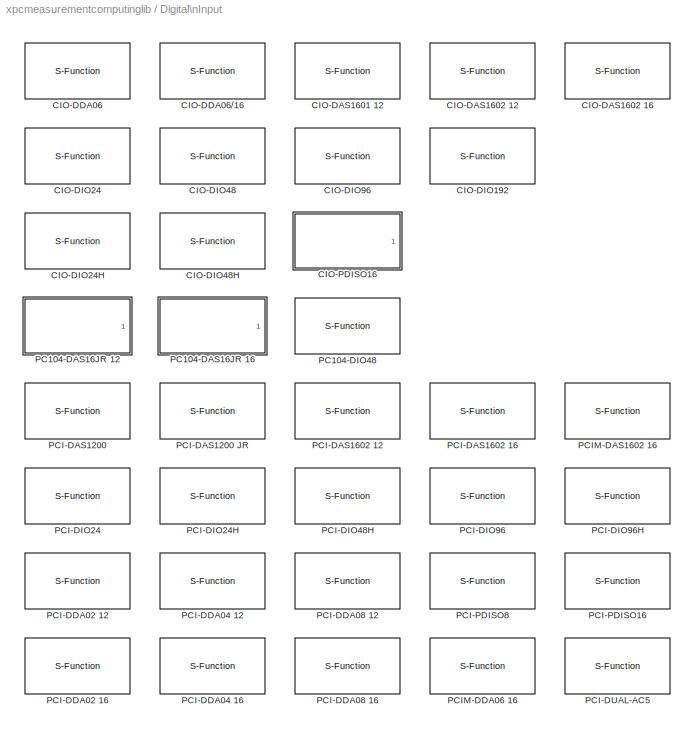
BLOCK [SubSystem] Digital\nInput
  EnableExecutionContextPropagation = on
  MinAlgLoopOccurrences = off
  Ports = []
  TreatAsAtomicUnit = off
BLOCK [S-Function] Digital\nInput/CIO-DAS1601 12 
  FunctionName = diisa8255
  InitFcn = misa8255(1);
  MaskCallbackString = ||||
  MaskDescription = CIO-DAS1601/12\nComputerBoards\nDigital Input
  MaskDisplay = disp('CIO-DAS1601/12\\nComputerBoards\\nDigital Input');port_label('output',1,'1');
  MaskEnableString = on,on,on,on,on
  MaskHelp = helpview(fullfile(docroot, 'mapfiles', 'xpc.map'), 'ComputerBoards_CIO-DAS1601-12_DIN')
  MaskIconFrame = on
  MaskIconOpaque = on
  MaskIconRotate = none
  MaskIconUnits = autoscale
  MaskInitialization = baseaddress=hex2dec(baseaddress(3:end));\ncontrol=155;\n[baseaddress,control, maskdisplay, maskdescription]=misa8255(2, chip, port, channel, baseaddress);\nset_param(gcb, 'MaskDisplay', maskdisplay);\nset_param(gcb, 'MaskDescription', maskdescription);\n  <repeated x12 — deduplicated; at blocks: CIO-DAS1601 12, CIO-DAS1602 12, CIO-DAS1602 16, CIO-DDA06, CIO-DDA06/16, CIO-DIO192, CIO-DIO24, CIO-DIO24H, CIO-DIO48, CIO-DIO48H, CIO-DIO96, PC104-DIO48>
  MaskPromptString = Channel vector:|Port:|Chip:|Sample time:|Base address (i.e. 0xd000):
  MaskSelfModifiable = on
  MaskStyleString = edit,popup(A|B|C),popup(1),edit,edit
  MaskTabNameString = ,,,,
  MaskToolTipString = on,on,on,on,on
  MaskTunableValueString = on,on,on,on,on
  MaskType = dicbciodas160112
  MaskValueString = [1]|A|1|0.001|0x300
  MaskVarAliasString = ,,,,
  MaskVariables = channel=@1;port=@2;chip=@3;sampletime=@4;baseaddress=&5;
  MaskVisibilityString = on,on,off,on,on
  Parameters = channel, port, sampletime, baseaddress, control
  Ports = [0, 1]
BLOCK [S-Function] Digital\nInput/CIO-DAS1602 12 
  FunctionName = diisa8255
  InitFcn = misa8255(1);
  MaskCallbackString = ||||
  MaskDescription = CIO-DAS1602/12\nComputerBoards\nDigital Input
  MaskDisplay = disp('CIO-DAS1602/12\\nComputerBoards\\nDigital Input');port_label('output',1,'1');
  MaskEnableString = on,on,on,on,on
  MaskHelp = helpview(fullfile(docroot, 'mapfiles', 'xpc.map'), 'ComputerBoards_CIO-DAS1602-12_DIN')
  MaskIconFrame = on
  MaskIconOpaque = on
  MaskIconRotate = none
  MaskIconUnits = autoscale
  MaskPromptString = Channel vector:|Port:|Chip:|Sample time:|Base address (i.e. 0xd000):
  MaskSelfModifiable = on
  MaskStyleString = edit,popup(A|B|C),popup(1),edit,edit
  MaskTabNameString = ,,,,
  MaskToolTipString = on,on,on,on,on
  MaskTunableValueString = on,on,on,on,on
  MaskType = dicbciodas160212
  MaskValueString = [1]|A|1|0.001|0x300
  MaskVarAliasString = ,,,,
  MaskVariables = channel=@1;port=@2;chip=@3;sampletime=@4;baseaddress=&5;
  MaskVisibilityString = on,on,off,on,on
  Parameters = channel, port, sampletime, baseaddress, control
  Ports = [0, 1]
BLOCK [S-Function] Digital\nInput/CIO-DAS1602 16 
  FunctionName = diisa8255
  InitFcn = misa8255(1);
  MaskCallbackString = ||||
  MaskDescription = CIO-DAS1602/16\nComputerBoards\nDigital Input
  MaskDisplay = disp('CIO-DAS1602/16\\nComputerBoards\\nDigital Input');port_label('output',1,'1');
  MaskEnableString = on,on,on,on,on
  MaskHelp = helpview(fullfile(docroot, 'mapfiles', 'xpc.map'), 'ComputerBoards_CIO-DAS1602-16_DIN')
  MaskIconFrame = on
  MaskIconOpaque = on
  MaskIconRotate = none
  MaskIconUnits = autoscale
  MaskPromptString = Channel vector:|Port:|Chip:|Sample time:|Base address (i.e. 0xd000):
  MaskSelfModifiable = on
  MaskStyleString = edit,popup(A|B|C),popup(1),edit,edit
  MaskTabNameString = ,,,,
  MaskToolTipString = on,on,on,on,on
  MaskTunableValueString = on,on,on,on,on
  MaskType = dicbciodas160216
  MaskValueString = [1]|A|1|0.001|0x300
  MaskVarAliasString = ,,,,
  MaskVariables = channel=@1;port=@2;chip=@3;sampletime=@4;baseaddress=&5;
  MaskVisibilityString = on,on,off,on,on
  Parameters = channel, port, sampletime, baseaddress, control
  Ports = [0, 1]
BLOCK [S-Function] Digital\nInput/CIO-DDA06 
  FunctionName = diisa8255
  InitFcn = misa8255(1);
  MaskCallbackString = ||||
  MaskDescription = CIO-DDA06\nComputerBoards\nDigital Input
  MaskDisplay = disp('CIO-DDA06\\nComputerBoards\\nDigital Input');port_label('output',1,'1');
  MaskEnableString = on,on,on,on,on
  MaskHelp = helpview(fullfile(docroot, 'mapfiles', 'xpc.map'), 'ComputerBoards_CIO-DDA06_DIN')
  MaskIconFrame = on
  MaskIconOpaque = on
  MaskIconRotate = none
  MaskIconUnits = autoscale
  MaskPromptString = Channel vector:|Port:|Chip:|Sample time:|Base address (i.e. 0xd000):
  MaskSelfModifiable = on
  MaskStyleString = edit,popup(A|B|C),popup(1),edit,edit
  MaskTabNameString = ,,,,
  MaskToolTipString = on,on,on,on,on
  MaskTunableValueString = on,on,on,on,on
  MaskType = dicbciodda06
  MaskValueString = [1]|A|1|0.001|0x300
  MaskVarAliasString = ,,,,
  MaskVariables = channel=@1;port=@2;chip=@3;sampletime=@4;baseaddress=&5;
  MaskVisibilityString = on,on,off,on,on
  Parameters = channel, port, sampletime, baseaddress, control
  Ports = [0, 1]
BLOCK [S-Function] Digital\nInput/CIO-DDA06//16 
  FunctionName = diisa8255
  InitFcn = misa8255(1);
  MaskCallbackString = ||||
  MaskDescription = CIO-DDA06/16\nComputerBoards\nDigital Input
  MaskDisplay = disp('CIO-DDA06/16\\nComputerBoards\\nDigital Input');port_label('output',1,'1');
  MaskEnableString = on,on,on,on,on
  MaskHelp = helpview(fullfile(docroot, 'mapfiles', 'xpc.map'), 'ComputerBoards_CIO-DDA06-16_DIN')
  MaskIconFrame = on
  MaskIconOpaque = on
  MaskIconRotate = none
  MaskIconUnits = autoscale
  MaskPromptString = Channel vector:|Port:|Chip:|Sample time:|Base address (i.e. 0xd000):
  MaskSelfModifiable = on
  MaskStyleString = edit,popup(A|B|C),popup(1),edit,edit
  MaskTabNameString = ,,,,
  MaskToolTipString = on,on,on,on,on
  MaskTunableValueString = on,on,on,on,on
  MaskType = dicbciodda0616
  MaskValueString = [1]|A|1|0.001|0x300
  MaskVarAliasString = ,,,,
  MaskVariables = channel=@1;port=@2;chip=@3;sampletime=@4;baseaddress=&5;
  MaskVisibilityString = on,on,off,on,on
  Parameters = channel, port, sampletime, baseaddress, control
  Ports = [0, 1]
BLOCK [S-Function] Digital\nInput/CIO-DIO192 
  FunctionName = diisa8255
  InitFcn = misa8255(1);
  MaskCallbackString = ||||
  MaskDescription = CIO-DIO192\nComputerBoards\nDigital Input
  MaskDisplay = disp('CIO-DIO192\\nComputerBoards\\nDigital Input');port_label('output',1,'1');
  MaskEnableString = on,on,on,on,on
  MaskHelp = helpview(fullfile(docroot, 'mapfiles', 'xpc.map'), 'ComputerBoards_CIO-DIO192_DIN')
  MaskIconFrame = on
  MaskIconOpaque = on
  MaskIconRotate = none
  MaskIconUnits = autoscale
  MaskPromptString = Channel vector:|Port:|Chip:|Sample time:|Base address (i.e. 0xd000):
  MaskSelfModifiable = on
  MaskStyleString = edit,popup(A|B|C),popup(1|2|3|4|5|6|7|8),edit,edit
  MaskTabNameString = ,,,,
  MaskToolTipString = on,on,on,on,on
  MaskTunableValueString = on,on,on,on,on
  MaskType = dicbciodio192
  MaskValueString = [1]|A|1|0.001|0x300
  MaskVarAliasString = ,,,,
  MaskVariables = channel=@1;port=@2;chip=@3;sampletime=@4;baseaddress=&5;
  MaskVisibilityString = on,on,on,on,on
  Parameters = channel, port, sampletime, baseaddress, control
  Ports = [0, 1]
BLOCK [S-Function] Digital\nInput/CIO-DIO24 
  FunctionName = diisa8255
  InitFcn = misa8255(1);
  MaskCallbackString = ||||
  MaskDescription = CIO-DIO24\nComputerBoards\nDigital Input
  MaskDisplay = disp('CIO-DIO24\\nComputerBoards\\nDigital Input');port_label('output',1,'1');
  MaskEnableString = on,on,on,on,on
  MaskHelp = helpview(fullfile(docroot, 'mapfiles', 'xpc.map'), 'ComputerBoards_CIO-DIO24_DIN')
  MaskIconFrame = on
  MaskIconOpaque = on
  MaskIconRotate = none
  MaskIconUnits = autoscale
  MaskPromptString = Channel vector:|Port:|Chip:|Sample time:|Base address (i.e. 0xd000):
  MaskSelfModifiable = on
  MaskStyleString = edit,popup(A|B|C),popup(1),edit,edit
  MaskTabNameString = ,,,,
  MaskToolTipString = on,on,on,on,on
  MaskTunableValueString = on,on,on,on,on
  MaskType = dicbciodio24
  MaskValueString = [1]|A|1|0.001|0x300
  MaskVarAliasString = ,,,,
  MaskVariables = channel=@1;port=@2;chip=@3;sampletime=@4;baseaddress=&5;
  MaskVisibilityString = on,on,off,on,on
  Parameters = channel, port, sampletime, baseaddress, control
  Ports = [0, 1]
BLOCK [S-Function] Digital\nInput/CIO-DIO24H 
  FunctionName = diisa8255
  InitFcn = misa8255(1);
  MaskCallbackString = ||||
  MaskDescription = CIO-DIO24H\nComputerBoards\nDigital Input
  MaskDisplay = disp('CIO-DIO24H\\nComputerBoards\\nDigital Input');port_label('output',1,'1');
  MaskEnableString = on,on,on,on,on
  MaskHelp = helpview(fullfile(docroot, 'mapfiles', 'xpc.map'), 'ComputerBoards_CIO-DIO24H_DIN')
  MaskIconFrame = on
  MaskIconOpaque = on
  MaskIconRotate = none
  MaskIconUnits = autoscale
  MaskPromptString = Channel vector:|Port:|Chip:|Sample time:|Base address (i.e. 0xd000):
  MaskSelfModifiable = on
  MaskStyleString = edit,popup(A|B|C),popup(1),edit,edit
  MaskTabNameString = ,,,,
  MaskToolTipString = on,on,on,on,on
  MaskTunableValueString = on,on,on,on,on
  MaskType = dicbciodio24h
  MaskValueString = [1]|A|1|0.001|0x300
  MaskVarAliasString = ,,,,
  MaskVariables = channel=@1;port=@2;chip=@3;sampletime=@4;baseaddress=&5;
  MaskVisibilityString = on,on,off,on,on
  Parameters = channel, port, sampletime, baseaddress, control
  Ports = [0, 1]
BLOCK [S-Function] Digital\nInput/CIO-DIO48 
  FunctionName = diisa8255
  InitFcn = misa8255(1);
  MaskCallbackString = ||||
  MaskDescription = CIO-DIO48\nComputerBoards\nDigital Input
  MaskDisplay = disp('CIO-DIO48\\nComputerBoards\\nDigital Input');port_label('output',1,'1');
  MaskEnableString = on,on,on,on,on
  MaskHelp = helpview(fullfile(docroot, 'mapfiles', 'xpc.map'), 'ComputerBoards_CIO-DIO48_DIN')
  MaskIconFrame = on
  MaskIconOpaque = on
  MaskIconRotate = none
  MaskIconUnits = autoscale
  MaskPromptString = Channel vector:|Port:|Chip:|Sample time:|Base address (i.e. 0xd000):
  MaskSelfModifiable = on
  MaskStyleString = edit,popup(A|B|C),popup(1|2),edit,edit
  MaskTabNameString = ,,,,
  MaskToolTipString = on,on,on,on,on
  MaskTunableValueString = on,on,on,on,on
  MaskType = dicbciodio48
  MaskValueString = [1]|A|1|0.001|0x300
  MaskVarAliasString = ,,,,
  MaskVariables = channel=@1;port=@2;chip=@3;sampletime=@4;baseaddress=&5;
  MaskVisibilityString = on,on,on,on,on
  Parameters = channel, port, sampletime, baseaddress, control
  Ports = [0, 1]
BLOCK [S-Function] Digital\nInput/CIO-DIO48H 
  FunctionName = diisa8255
  InitFcn = misa8255(1);
  MaskCallbackString = ||||
  MaskDescription = CIO-DIO48H\nComputerBoards\nDigital Input
  MaskDisplay = disp('CIO-DIO48H\\nComputerBoards\\nDigital Input');port_label('output',1,'1');
  MaskEnableString = on,on,on,on,on
  MaskHelp = helpview(fullfile(docroot, 'mapfiles', 'xpc.map'), 'ComputerBoards_CIO-DIO48H_DIN')
  MaskIconFrame = on
  MaskIconOpaque = on
  MaskIconRotate = none
  MaskIconUnits = autoscale
  MaskPromptString = Channel vector:|Port:|Chip:|Sample time:|Base address (i.e. 0xd000):
  MaskSelfModifiable = on
  MaskStyleString = edit,popup(A|B|C),popup(1|2),edit,edit
  MaskTabNameString = ,,,,
  MaskToolTipString = on,on,on,on,on
  MaskTunableValueString = on,on,on,on,on
  MaskType = dicbciodio48h
  MaskValueString = [1]|A|1|0.001|0x300
  MaskVarAliasString = ,,,,
  MaskVariables = channel=@1;port=@2;chip=@3;sampletime=@4;baseaddress=&5;
  MaskVisibilityString = on,on,on,on,on
  Parameters = channel, port, sampletime, baseaddress, control
  Ports = [0, 1]
BLOCK [S-Function] Digital\nInput/CIO-DIO96 
  FunctionName = diisa8255
  InitFcn = misa8255(1);
  MaskCallbackString = ||||
  MaskDescription = CIO-DIO96\nComputerBoards\nDigital Input
  MaskDisplay = disp('CIO-DIO96\\nComputerBoards\\nDigital Input');port_label('output',1,'1');
  MaskEnableString = on,on,on,on,on
  MaskHelp = helpview(fullfile(docroot, 'mapfiles', 'xpc.map'), 'ComputerBoards_CIO-DIO96_DIN')
  MaskIconFrame = on
  MaskIconOpaque = on
  MaskIconRotate = none
  MaskIconUnits = autoscale
  MaskPromptString = Channel vector:|Port:|Chip:|Sample time:|Base address (i.e. 0xd000):
  MaskSelfModifiable = on
  MaskStyleString = edit,popup(A|B|C),popup(1|2|3|4),edit,edit
  MaskTabNameString = ,,,,
  MaskToolTipString = on,on,on,on,on
  MaskTunableValueString = on,on,on,on,on
  MaskType = dicbciodio96
  MaskValueString = [1]|A|1|0.001|0x300
  MaskVarAliasString = ,,,,
  MaskVariables = channel=@1;port=@2;chip=@3;sampletime=@4;baseaddress=&5;
  MaskVisibilityString = on,on,on,on,on
  Parameters = channel, port, sampletime, baseaddress, control
  Ports = [0, 1]
BLOCK [SubSystem] Digital\nInput/CIO-PDISO16 
  EnableExecutionContextPropagation = on
  MaskCallbackString = |||
  MaskDescription = Computer Boards\nCIO-PDISO16\nDigital Input
  MaskDisplay = disp('CIO-PDISO16\\nComputerBoards\\nDigital Input')
  MaskEnableString = on,on,on,on
  MaskHelp = helpview(fullfile(docroot, 'mapfiles', 'xpc.map'), 'ComputerBoards_CIO-PDISO16_DIN')
  MaskIconFrame = on
  MaskIconOpaque = on
  MaskIconRotate = none
  MaskIconUnits = autoscale
  MaskInitialization = baseaddress=hex2dec(baseaddress(3:end));
  MaskPromptString = Number of channels:|Section (connector):|Sample time:|Base address (i.e. 0xd000):
  MaskStyleString = edit,popup(1 (nearest to backplate)|2 (farthest from backplate)),edit,edit
  MaskTabNameString = ,,,
  MaskToolTipString = on,on,on,on
  MaskTunableValueString = on,on,on,on
  MaskType = Digital Input Module
  MaskValueString = 1|1 (nearest to backplate)|0.001|0x300
  MaskVarAliasString = ,,,
  MaskVariables = n_channels=@1;port=@2;sample_time=@3;baseaddress=&4;
  MaskVisibilityString = on,on,on,on
  MinAlgLoopOccurrences = off
  Ports = [0, 1]
  ShowPortLabels = off
  TreatAsAtomicUnit = off
BLOCK [S-Function] Digital\nInput/CIO-PDISO16 /DAC1
  FunctionName = dicbpdiso16
  Parameters = n_channels,port,sample_time,baseaddress
  Ports = [0, 1]
BLOCK [Outport] Digital\nInput/CIO-PDISO16 /out_1
  BusOutputAsStruct = off
  IconDisplay = Port number
  InitialOutput = 0
BLOCK [SubSystem] Digital\nInput/PC104-DAS16JR 12 
  EnableExecutionContextPropagation = on
  MaskCallbackString = ||
  MaskDescription = Computer Boards\nPC104-DAS16JR/12\nDigital Input
  MaskDisplay = disp('PC104-DAS16JR/12\\nComputerBoards\\nDigital Input')
  MaskEnableString = on,on,on
  MaskHelp = helpview(fullfile(docroot, 'mapfiles', 'xpc.map'), 'ComputerBoards_PC104-DAS16JR-12_DIN')
  MaskIconFrame = on
  MaskIconOpaque = on
  MaskIconRotate = none
  MaskIconUnits = autoscale
  MaskInitialization = baseaddress=hex2dec(baseaddress(3:end));
  MaskPromptString = Number of channels:|Sample time:|Base address (i.e. 0xd000):
  MaskStyleString = edit,edit,edit
  MaskTabNameString = ,,
  MaskToolTipString = on,on,on
  MaskTunableValueString = on,on,on
  MaskType = Digital Input Module
  MaskValueString = 1|0.001|0x300
  MaskVarAliasString = ,,
  MaskVariables = n_channels=@1;sample_time=@2;baseaddress=&3;
  MaskVisibilityString = on,on,on
  MinAlgLoopOccurrences = off
  Ports = [0, 1]
  ShowPortLabels = off
  TreatAsAtomicUnit = off
BLOCK [S-Function] Digital\nInput/PC104-DAS16JR 12 /DAC1
  FunctionName = dicbpc104das16jr
  Parameters = n_channels,sample_time,baseaddress
  Ports = [0, 1]
BLOCK [Outport] Digital\nInput/PC104-DAS16JR 12 /out_1
  BusOutputAsStruct = off
  IconDisplay = Port number
  InitialOutput = 0
BLOCK [SubSystem] Digital\nInput/PC104-DAS16JR 16 
  EnableExecutionContextPropagation = on
  MaskCallbackString = ||
  MaskDescription = Computer Boards\nPC104-DAS16JR/16\nDigital Input
  MaskDisplay = disp('PC104-DAS16JR/16\\nComputerBoards\\nDigital Input')
  MaskEnableString = on,on,on
  MaskHelp = helpview(fullfile(docroot, 'mapfiles', 'xpc.map'), 'ComputerBoards_PC104-DAS16JR-16_DIN')
  MaskIconFrame = on
  MaskIconOpaque = on
  MaskIconRotate = none
  MaskIconUnits = autoscale
  MaskInitialization = baseaddress=hex2dec(baseaddress(3:end));
  MaskPromptString = Number of channels:|Sample time:|Base address (i.e. 0xd000):
  MaskStyleString = edit,edit,edit
  MaskTabNameString = ,,
  MaskToolTipString = on,on,on
  MaskTunableValueString = on,on,on
  MaskType = Digital Input Module
  MaskValueString = 1|0.001|0x300
  MaskVarAliasString = ,,
  MaskVariables = n_channels=@1;sample_time=@2;baseaddress=&3;
  MaskVisibilityString = on,on,on
  MinAlgLoopOccurrences = off
  Ports = [0, 1]
  ShowPortLabels = off
  TreatAsAtomicUnit = off
BLOCK [S-Function] Digital\nInput/PC104-DAS16JR 16 /DAC1
  FunctionName = dicbpc104das16jr
  Parameters = n_channels,sample_time,baseaddress
  Ports = [0, 1]
BLOCK [Outport] Digital\nInput/PC104-DAS16JR 16 /out_1
  BusOutputAsStruct = off
  IconDisplay = Port number
  InitialOutput = 0
BLOCK [S-Function] Digital\nInput/PC104-DIO48 
  FunctionName = diisa8255
  InitFcn = misa8255(1);
  MaskCallbackString = ||||
  MaskDescription = PC104-DIO48\nComputerBoards\nDigital Input
  MaskDisplay = disp('PC104-DIO48\\nComputerBoards\\nDigital Input');port_label('output',1,'1');
  MaskEnableString = on,on,on,on,on
  MaskHelp = helpview(fullfile(docroot, 'mapfiles', 'xpc.map'), 'ComputerBoards_PC104-DIO48_DIN')
  MaskIconFrame = on
  MaskIconOpaque = on
  MaskIconRotate = none
  MaskIconUnits = autoscale
  MaskPromptString = Channel vector:|Port:|Chip:|Sample time:|Base address (i.e. 0xd000):
  MaskSelfModifiable = on
  MaskStyleString = edit,popup(A|B|C),popup(1|2),edit,edit
  MaskTabNameString = ,,,,
  MaskToolTipString = on,on,on,on,on
  MaskTunableValueString = on,on,on,on,on
  MaskType = dicbpc104dio48
  MaskValueString = [1]|A|1|0.001|0x300
  MaskVarAliasString = ,,,,
  MaskVariables = channel=@1;port=@2;chip=@3;sampletime=@4;baseaddress=&5;
  MaskVisibilityString = on,on,on,on,on
  Parameters = channel, port, sampletime, baseaddress, control
  Ports = [0, 1]
BLOCK [S-Function] Digital\nInput/PCI-DAS1200 
  FunctionName = dipci8255
  InitFcn = mpci8255(1);
  MaskCallbackString = ||||
  MaskDescription = PCI-DAS1200\nComputerBoards\nDigital Input
  MaskDisplay = disp('PCI-DAS1200\\nComputerBoards\\nDigital Input');port_label('output',1,'1');
  MaskEnableString = on,on,on,on,on
  MaskHelp = helpview(fullfile(docroot, 'mapfiles', 'xpc.map'), 'ComputerBoards_PCI-DAS1200_DIN')
  MaskIconFrame = on
  MaskIconOpaque = on
  MaskIconRotate = none
  MaskIconUnits = autoscale
  MaskInitialization = control=155;\n[boardType,control,maskdisplay,maskdescription]=mpci8255(2, chip, port, channel, slot);\nset_param(gcb, 'MaskDisplay', maskdisplay);\nset_param(gcb, 'MaskDescription', maskdescription);\n  <repeated x18 — deduplicated; at blocks: PCI-DAS1200, PCI-DAS1200 JR, PCI-DAS1602 12, PCI-DAS1602 16, PCI-DDA02 12, PCI-DDA02 16, PCI-DDA04 12, PCI-DDA04 16, PCI-DDA08 12, PCI-DDA08 16, PCI-DIO24, PCI-DIO24H, PCI-DIO48H, PCI-DIO96, PCI-DIO96H, PCI-DUAL-AC5, +2 more>
  MaskPromptString = Channel vector:|Port:|Chip:|Sample time:|PCI slot (-1: autosearch):
  MaskSelfModifiable = on
  MaskStyleString = edit,popup(A|B|C),popup(1),edit,edit
  MaskTabNameString = ,,,,
  MaskToolTipString = on,on,on,on,on
  MaskTunableValueString = on,on,on,on,on
  MaskType = dicbpcidas1200
  MaskValueString = [1]|A|1|0.001|-1
  MaskVarAliasString = ,,,,
  MaskVariables = channel=@1;port=@2;chip=@3;sampletime=@4;slot=@5;
  MaskVisibilityString = on,on,off,on,on
  Parameters = channel, port, chip, sampletime, slot, control, boardType
  Ports = [0, 1]
BLOCK [S-Function] Digital\nInput/PCI-DAS1200 JR 
  FunctionName = dipci8255
  InitFcn = mpci8255(1);
  MaskCallbackString = ||||
  MaskDescription = PCI-DAS1200/JR\nComputerBoards\nDigital Input
  MaskDisplay = disp('PCI-DAS1200/JR\\nComputerBoards\\nDigital Input');port_label('output',1,'1');
  MaskEnableString = on,on,on,on,on
  MaskHelp = helpview(fullfile(docroot, 'mapfiles', 'xpc.map'), 'ComputerBoards_PCI-DAS1200-JR_DIN')
  MaskIconFrame = on
  MaskIconOpaque = on
  MaskIconRotate = none
  MaskIconUnits = autoscale
  MaskPromptString = Channel vector:|Port:|Chip:|Sample time:|PCI slot (-1: autosearch):
  MaskSelfModifiable = on
  MaskStyleString = edit,popup(A|B|C),popup(1),edit,edit
  MaskTabNameString = ,,,,
  MaskToolTipString = on,on,on,on,on
  MaskTunableValueString = on,on,on,on,on
  MaskType = dicbpcidas1200jr
  MaskValueString = [1]|A|1|0.001|-1
  MaskVarAliasString = ,,,,
  MaskVariables = channel=@1;port=@2;chip=@3;sampletime=@4;slot=@5;
  MaskVisibilityString = on,on,off,on,on
  Parameters = channel, port, chip, sampletime, slot, control, boardType
  Ports = [0, 1]
BLOCK [S-Function] Digital\nInput/PCI-DAS1602 12 
  FunctionName = dipci8255
  InitFcn = mpci8255(1);
  MaskCallbackString = ||||
  MaskDescription = PCI-DAS1602/12\nComputerBoards\nDigital Input
  MaskDisplay = disp('PCI-DAS1602/12\\nComputerBoards\\nDigital Input');port_label('output',1,'1');
  MaskEnableString = on,on,on,on,on
  MaskHelp = helpview(fullfile(docroot, 'mapfiles', 'xpc.map'), 'ComputerBoards_PCI-DAS1602-12_DIN')
  MaskIconFrame = on
  MaskIconOpaque = on
  MaskIconRotate = none
  MaskIconUnits = autoscale
  MaskPromptString = Channel vector:|Port:|Chip:|Sample time:|PCI slot (-1: autosearch):
  MaskSelfModifiable = on
  MaskStyleString = edit,popup(A|B|C),popup(1),edit,edit
  MaskTabNameString = ,,,,
  MaskToolTipString = on,on,on,on,on
  MaskTunableValueString = on,on,on,on,on
  MaskType = dicbpcidas160212
  MaskValueString = [1]|A|1|0.001|-1
  MaskVarAliasString = ,,,,
  MaskVariables = channel=@1;port=@2;chip=@3;sampletime=@4;slot=@5;
  MaskVisibilityString = on,on,off,on,on
  Parameters = channel, port, chip, sampletime, slot, control, boardType
  Ports = [0, 1]
BLOCK [S-Function] Digital\nInput/PCI-DAS1602 16 
  FunctionName = dipci8255
  InitFcn = mpci8255(1);
  MaskCallbackString = ||||
  MaskDescription = PCI-DAS1602/16\nComputerBoards\nDigital Input
  MaskDisplay = disp('PCI-DAS1602/16\\nComputerBoards\\nDigital Input');port_label('output',1,'1');
  MaskEnableString = on,on,on,on,on
  MaskHelp = helpview(fullfile(docroot, 'mapfiles', 'xpc.map'), 'ComputerBoards_PCI-DAS1602-16_DIN')
  MaskIconFrame = on
  MaskIconOpaque = on
  MaskIconRotate = none
  MaskIconUnits = autoscale
  MaskPromptString = Channel vector:|Port:|Chip:|Sample time:|PCI slot (-1: autosearch):
  MaskSelfModifiable = on
  MaskStyleString = edit,popup(A|B|C),popup(1),edit,edit
  MaskTabNameString = ,,,,
  MaskToolTipString = on,on,on,on,on
  MaskTunableValueString = on,on,on,on,on
  MaskType = dicbpcidas160216
  MaskValueString = [1]|A|1|0.001|-1
  MaskVarAliasString = ,,,,
  MaskVariables = channel=@1;port=@2;chip=@3;sampletime=@4;slot=@5;
  MaskVisibilityString = on,on,off,on,on
  Parameters = channel, port, chip, sampletime, slot, control, boardType
  Ports = [0, 1]
BLOCK [S-Function] Digital\nInput/PCI-DDA02 12 
  FunctionName = dipci8255
  InitFcn = mpci8255(1);
  MaskCallbackString = ||||
  MaskDescription = PCI-DDA02/12\nComputerBoards\nDigital Input
  MaskDisplay = disp('PCI-DDA02/12\\nComputerBoards\\nDigital Input');port_label('output',1,'1');
  MaskEnableString = on,on,on,on,on
  MaskHelp = helpview(fullfile(docroot, 'mapfiles', 'xpc.map'), 'ComputerBoards_PCI-DDA02-12_DIN')
  MaskIconFrame = on
  MaskIconOpaque = on
  MaskIconRotate = none
  MaskIconUnits = autoscale
  MaskPromptString = Channel vector:|Port:|Chip:|Sample time:|PCI slot (-1: autosearch):
  MaskSelfModifiable = on
  MaskStyleString = edit,popup(A|B|C),popup(1|2),edit,edit
  MaskTabNameString = ,,,,
  MaskToolTipString = on,on,on,on,on
  MaskTunableValueString = on,on,on,on,on
  MaskType = dicbpcidda0212
  MaskValueString = [1]|A|1|0.001|-1
  MaskVarAliasString = ,,,,
  MaskVariables = channel=@1;port=@2;chip=@3;sampletime=@4;slot=@5;
  MaskVisibilityString = on,on,on,on,on
  Parameters = channel, port, chip, sampletime, slot, control, boardType
  Ports = [0, 1]
BLOCK [S-Function] Digital\nInput/PCI-DDA02 16 
  FunctionName = dipci8255
  InitFcn = mpci8255(1);
  MaskCallbackString = ||||
  MaskDescription = PCI-DDA02/16\nComputerBoards\nDigital Input
  MaskDisplay = disp('PCI-DDA02/16\\nComputerBoards\\nDigital Input');port_label('output',1,'1');
  MaskEnableString = on,on,on,on,on
  MaskHelp = helpview(fullfile(docroot, 'mapfiles', 'xpc.map'), 'ComputerBoards_PCI-DDA02-16_DIN')
  MaskIconFrame = on
  MaskIconOpaque = on
  MaskIconRotate = none
  MaskIconUnits = autoscale
  MaskPromptString = Channel vector:|Port:|Chip:|Sample time:|PCI slot (-1: autosearch):
  MaskSelfModifiable = on
  MaskStyleString = edit,popup(A|B|C),popup(1|2),edit,edit
  MaskTabNameString = ,,,,
  MaskToolTipString = on,on,on,on,on
  MaskTunableValueString = on,on,on,on,on
  MaskType = dicbpcidda0216
  MaskValueString = [1]|A|1|0.001|-1
  MaskVarAliasString = ,,,,
  MaskVariables = channel=@1;port=@2;chip=@3;sampletime=@4;slot=@5;
  MaskVisibilityString = on,on,on,on,on
  Parameters = channel, port, chip, sampletime, slot, control, boardType
  Ports = [0, 1]
BLOCK [S-Function] Digital\nInput/PCI-DDA04 12 
  FunctionName = dipci8255
  InitFcn = mpci8255(1);
  MaskCallbackString = ||||
  MaskDescription = PCI-DDA04/12\nComputerBoards\nDigital Input
  MaskDisplay = disp('PCI-DDA04/12\\nComputerBoards\\nDigital Input');port_label('output',1,'1');
  MaskEnableString = on,on,on,on,on
  MaskHelp = helpview(fullfile(docroot, 'mapfiles', 'xpc.map'), 'ComputerBoards_PCI-DDA04-12_DIN')
  MaskIconFrame = on
  MaskIconOpaque = on
  MaskIconRotate = none
  MaskIconUnits = autoscale
  MaskPromptString = Channel vector:|Port:|Chip:|Sample time:|PCI slot (-1: autosearch):
  MaskSelfModifiable = on
  MaskStyleString = edit,popup(A|B|C),popup(1|2),edit,edit
  MaskTabNameString = ,,,,
  MaskToolTipString = on,on,on,on,on
  MaskTunableValueString = on,on,on,on,on
  MaskType = dicbpcidda0412
  MaskValueString = [1]|A|1|0.001|-1
  MaskVarAliasString = ,,,,
  MaskVariables = channel=@1;port=@2;chip=@3;sampletime=@4;slot=@5;
  MaskVisibilityString = on,on,on,on,on
  Parameters = channel, port, chip, sampletime, slot, control, boardType
  Ports = [0, 1]
BLOCK [S-Function] Digital\nInput/PCI-DDA04 16 
  FunctionName = dipci8255
  InitFcn = mpci8255(1);
  MaskCallbackString = ||||
  MaskDescription = PCI-DDA04/16\nComputerBoards\nDigital Input
  MaskDisplay = disp('PCI-DDA04/16\\nComputerBoards\\nDigital Input');port_label('output',1,'1');
  MaskEnableString = on,on,on,on,on
  MaskHelp = helpview(fullfile(docroot, 'mapfiles', 'xpc.map'), 'ComputerBoards_PCI-DDA04-16_DIN')
  MaskIconFrame = on
  MaskIconOpaque = on
  MaskIconRotate = none
  MaskIconUnits = autoscale
  MaskPromptString = Channel vector:|Port:|Chip:|Sample time:|PCI slot (-1: autosearch):
  MaskSelfModifiable = on
  MaskStyleString = edit,popup(A|B|C),popup(1|2),edit,edit
  MaskTabNameString = ,,,,
  MaskToolTipString = on,on,on,on,on
  MaskTunableValueString = on,on,on,on,on
  MaskType = dicbpcidda0416
  MaskValueString = [1]|A|1|0.001|-1
  MaskVarAliasString = ,,,,
  MaskVariables = channel=@1;port=@2;chip=@3;sampletime=@4;slot=@5;
  MaskVisibilityString = on,on,on,on,on
  Parameters = channel, port, chip, sampletime, slot, control, boardType
  Ports = [0, 1]
BLOCK [S-Function] Digital\nInput/PCI-DDA08 12 
  FunctionName = dipci8255
  InitFcn = mpci8255(1);
  MaskCallbackString = ||||
  MaskDescription = PCI-DDA08/12\nComputerBoards\nDigital Input
  MaskDisplay = disp('PCI-DDA08/12\\nComputerBoards\\nDigital Input');port_label('output',1,'1');
  MaskEnableString = on,on,on,on,on
  MaskHelp = helpview(fullfile(docroot, 'mapfiles', 'xpc.map'), 'ComputerBoards_PCI-DDA08-12_DIN')
  MaskIconFrame = on
  MaskIconOpaque = on
  MaskIconRotate = none
  MaskIconUnits = autoscale
  MaskPromptString = Channel vector:|Port:|Chip:|Sample time:|PCI slot (-1: autosearch):
  MaskSelfModifiable = on
  MaskStyleString = edit,popup(A|B|C),popup(1|2),edit,edit
  MaskTabNameString = ,,,,
  MaskToolTipString = on,on,on,on,on
  MaskTunableValueString = on,on,on,on,on
  MaskType = dicbpcidda0812
  MaskValueString = [1]|A|1|0.001|-1
  MaskVarAliasString = ,,,,
  MaskVariables = channel=@1;port=@2;chip=@3;sampletime=@4;slot=@5;
  MaskVisibilityString = on,on,on,on,on
  Parameters = channel, port, chip, sampletime, slot, control, boardType
  Ports = [0, 1]
BLOCK [S-Function] Digital\nInput/PCI-DDA08 16 
  FunctionName = dipci8255
  InitFcn = mpci8255(1);
  MaskCallbackString = ||||
  MaskDescription = PCI-DDA08/16\nComputerBoards\nDigital Input
  MaskDisplay = disp('PCI-DDA08/16\\nComputerBoards\\nDigital Input');port_label('output',1,'1');
  MaskEnableString = on,on,on,on,on
  MaskHelp = helpview(fullfile(docroot, 'mapfiles', 'xpc.map'), 'ComputerBoards_PCI-DDA08-16_DIN')
  MaskIconFrame = on
  MaskIconOpaque = on
  MaskIconRotate = none
  MaskIconUnits = autoscale
  MaskPromptString = Channel vector:|Port:|Chip:|Sample time:|PCI slot (-1: autosearch):
  MaskSelfModifiable = on
  MaskStyleString = edit,popup(A|B|C),popup(1|2),edit,edit
  MaskTabNameString = ,,,,
  MaskToolTipString = on,on,on,on,on
  MaskTunableValueString = on,on,on,on,on
  MaskType = dicbpcidda0816
  MaskValueString = [1]|A|1|0.001|-1
  MaskVarAliasString = ,,,,
  MaskVariables = channel=@1;port=@2;chip=@3;sampletime=@4;slot=@5;
  MaskVisibilityString = on,on,on,on,on
  Parameters = channel, port, chip, sampletime, slot, control, boardType
  Ports = [0, 1]
BLOCK [S-Function] Digital\nInput/PCI-DIO24 
  FunctionName = dipci8255
  InitFcn = mpci8255(1);
  MaskCallbackString = ||||
  MaskDescription = PCI-DIO24\nComputerBoards\nDigital Input
  MaskDisplay = disp('PCI-DIO24\\nComputerBoards\\nDigital Input');port_label('output',1,'1');
  MaskEnableString = on,on,on,on,on
  MaskHelp = helpview(fullfile(docroot, 'mapfiles', 'xpc.map'), 'ComputerBoards_PCI-DIO24_DIN')
  MaskIconFrame = on
  MaskIconOpaque = on
  MaskIconRotate = none
  MaskIconUnits = autoscale
  MaskPromptString = Channel vector:|Port:|Chip:|Sample time:|PCI slot (-1: autosearch):
  MaskSelfModifiable = on
  MaskStyleString = edit,popup(A|B|C),popup(1),edit,edit
  MaskTabNameString = ,,,,
  MaskToolTipString = on,on,on,on,on
  MaskTunableValueString = on,on,on,on,on
  MaskType = dicbpcidio24
  MaskValueString = [1]|A|1|0.001|-1
  MaskVarAliasString = ,,,,
  MaskVariables = channel=@1;port=@2;chip=@3;sampletime=@4;slot=@5;
  MaskVisibilityString = on,on,off,on,on
  Parameters = channel, port, chip, sampletime, slot, control, boardType
  Ports = [0, 1]
BLOCK [S-Function] Digital\nInput/PCI-DIO24H 
  FunctionName = dipci8255
  InitFcn = mpci8255(1);
  MaskCallbackString = ||||
  MaskDescription = PCI-DIO24H\nComputerBoards\nDigital Input
  MaskDisplay = disp('PCI-DIO24H\\nComputerBoards\\nDigital Input');port_label('output',1,'1');
  MaskEnableString = on,on,on,on,on
  MaskHelp = helpview(fullfile(docroot, 'mapfiles', 'xpc.map'), 'ComputerBoards_PCI-DIO24H_DIN')
  MaskIconFrame = on
  MaskIconOpaque = on
  MaskIconRotate = none
  MaskIconUnits = autoscale
  MaskPromptString = Channel vector:|Port:|Chip:|Sample time:|PCI slot (-1: autosearch):
  MaskSelfModifiable = on
  MaskStyleString = edit,popup(A|B|C),popup(1),edit,edit
  MaskTabNameString = ,,,,
  MaskToolTipString = on,on,on,on,on
  MaskTunableValueString = on,on,on,on,on
  MaskType = dicbpcidio24h
  MaskValueString = [1]|A|1|0.001|-1
  MaskVarAliasString = ,,,,
  MaskVariables = channel=@1;port=@2;chip=@3;sampletime=@4;slot=@5;
  MaskVisibilityString = on,on,off,on,on
  Parameters = channel, port, chip, sampletime, slot, control, boardType
  Ports = [0, 1]
BLOCK [S-Function] Digital\nInput/PCI-DIO48H 
  FunctionName = dipci8255
  InitFcn = mpci8255(1);
  MaskCallbackString = ||||
  MaskDescription = PCI-DIO48H\nComputerBoards\nDigital Input
  MaskDisplay = disp('PCI-DIO48H\\nComputerBoards\\nDigital Input');port_label('output',1,'1');
  MaskEnableString = on,on,on,on,on
  MaskHelp = helpview(fullfile(docroot, 'mapfiles', 'xpc.map'), 'ComputerBoards_PCI-DIO48H_DIN')
  MaskIconFrame = on
  MaskIconOpaque = on
  MaskIconRotate = none
  MaskIconUnits = autoscale
  MaskPromptString = Channel vector:|Port:|Chip:|Sample time:|PCI slot (-1: autosearch):
  MaskSelfModifiable = on
  MaskStyleString = edit,popup(A|B|C),popup(1|2),edit,edit
  MaskTabNameString = ,,,,
  MaskToolTipString = on,on,on,on,on
  MaskTunableValueString = on,on,on,on,on
  MaskType = dicbpcidio48h
  MaskValueString = [1]|A|1|0.001|-1
  MaskVarAliasString = ,,,,
  MaskVariables = channel=@1;port=@2;chip=@3;sampletime=@4;slot=@5;
  MaskVisibilityString = on,on,on,on,on
  Parameters = channel, port, chip, sampletime, slot, control, boardType
  Ports = [0, 1]
BLOCK [S-Function] Digital\nInput/PCI-DIO96 
  FunctionName = dipci8255
  InitFcn = mpci8255(1);
  MaskCallbackString = ||||
  MaskDescription = PCI-DIO96\nComputerBoards\nDigital Input
  MaskDisplay = disp('PCI-DIO96\\nComputerBoards\\nDigital Input');port_label('output',1,'1');
  MaskEnableString = on,on,on,on,on
  MaskHelp = helpview(fullfile(docroot, 'mapfiles', 'xpc.map'), 'ComputerBoards_PCI-DIO96_DIN')
  MaskIconFrame = on
  MaskIconOpaque = on
  MaskIconRotate = none
  MaskIconUnits = autoscale
  MaskPromptString = Channel vector:|Port:|Chip:|Sample time:|PCI slot (-1: autosearch):
  MaskSelfModifiable = on
  MaskStyleString = edit,popup(A|B|C),popup(1|2|3|4),edit,edit
  MaskTabNameString = ,,,,
  MaskToolTipString = on,on,on,on,on
  MaskTunableValueString = on,on,on,on,on
  MaskType = dicbpcidio96
  MaskValueString = [1]|A|1|0.001|-1
  MaskVarAliasString = ,,,,
  MaskVariables = channel=@1;port=@2;chip=@3;sampletime=@4;slot=@5;
  MaskVisibilityString = on,on,on,on,on
  Parameters = channel, port, chip, sampletime, slot, control, boardType
  Ports = [0, 1]
BLOCK [S-Function] Digital\nInput/PCI-DIO96H 
  FunctionName = dipci8255
  InitFcn = mpci8255(1);
  MaskCallbackString = ||||
  MaskDescription = PCI-DIO96H\nComputerBoards\nDigital Input
  MaskDisplay = disp('PCI-DIO96H\\nComputerBoards\\nDigital Input');port_label('output',1,'1');
  MaskEnableString = on,on,on,on,on
  MaskHelp = helpview(fullfile(docroot, 'mapfiles', 'xpc.map'), 'ComputerBoards_PCI-DIO96H_DIN')
  MaskIconFrame = on
  MaskIconOpaque = on
  MaskIconRotate = none
  MaskIconUnits = autoscale
  MaskPromptString = Channel vector:|Port:|Chip:|Sample time:|PCI slot (-1: autosearch):
  MaskSelfModifiable = on
  MaskStyleString = edit,popup(A|B|C),popup(1|2|3|4),edit,edit
  MaskTabNameString = ,,,,
  MaskToolTipString = on,on,on,on,on
  MaskTunableValueString = on,on,on,on,on
  MaskType = dicbpcidio96h
  MaskValueString = [1]|A|1|0.001|-1
  MaskVarAliasString = ,,,,
  MaskVariables = channel=@1;port=@2;chip=@3;sampletime=@4;slot=@5;
  MaskVisibilityString = on,on,on,on,on
  Parameters = channel, port, chip, sampletime, slot, control, boardType
  Ports = [0, 1]
BLOCK [S-Function] Digital\nInput/PCI-DUAL-AC5 
  FunctionName = dipci8255
  InitFcn = mpci8255(1);
  MaskCallbackString = ||||
  MaskDescription = PCI-DUAL-AC5\nComputerBoards\nDigital Input
  MaskDisplay = disp('PCI-DUAL-AC5\\nComputerBoards\\nDigital Input');port_label('output',1,'1');
  MaskEnableString = on,on,on,on,on
  MaskHelp = helpview(fullfile(docroot, 'mapfiles', 'xpc.map'), 'ComputerBoards_PCI-DUAL-AC5_DIN')
  MaskIconFrame = on
  MaskIconOpaque = on
  MaskIconRotate = none
  MaskIconUnits = autoscale
  MaskPromptString = Channel vector:|Port:|Chip:|Sample time:|PCI slot (-1: autosearch):
  MaskSelfModifiable = on
  MaskStyleString = edit,popup(A|B|C),popup(1|2|3|4),edit,edit
  MaskTabNameString = ,,,,
  MaskToolTipString = on,on,on,on,on
  MaskTunableValueString = on,on,on,on,on
  MaskType = dicbpcidualac5
  MaskValueString = [1]|A|1|0.001|-1
  MaskVarAliasString = ,,,,
  MaskVariables = channel=@1;port=@2;chip=@3;sampletime=@4;slot=@5;
  MaskVisibilityString = on,on,on,on,on
  Parameters = channel, port, chip, sampletime, slot, control, boardType
  Ports = [0, 1]
BLOCK [S-Function] Digital\nInput/PCI-PDISO16 
  FunctionName = dicbpcipdisox
  InitFcn = mdiocbpcipdisox(1);
  MaskCallbackString = ||||
  MaskDescription = PCI-DISO16\nComputerBoards\nDigital Input
  MaskDisplay = disp('PCI-DISO16\\nComputerBoards\\nDigital Input');port_label('output',1,'1');
  MaskEnableString = on,on,on,on,on
  MaskHelp = helpview(fullfile(docroot, 'mapfiles', 'xpc.map'), 'ComputerBoards_PCI-PDISO16_DIN')
  MaskIconFrame = on
  MaskIconOpaque = on
  MaskIconRotate = none
  MaskIconUnits = autoscale
  MaskInitialization = [boardType,filter,maskdisplay,maskdescription]=mdiocbpcipdisox(2, port, channel, filter, slot);\nset_param(gcb, 'MaskDisplay', maskdisplay);\nset_param(gcb, 'MaskDescription', maskdescription);\n  <repeated x4 — deduplicated; at blocks: PCI-PDISO16, PCI-PDISO8>
  MaskPromptString = Channel vector:|Filter vector:|Port:|Sample time:|PCI slot (-1: autosearch):
  MaskSelfModifiable = on
  MaskStyleString = edit,edit,popup(A|B),edit,edit
  MaskTabNameString = ,,,,
  MaskToolTipString = on,on,on,on,on
  MaskTunableValueString = on,on,on,on,on
  MaskType = dicbpcipdiso16
  MaskValueString = [1]|[0]|A|0.001|-1
  MaskVarAliasString = ,,,,
  MaskVariables = channel=@1;filter=@2;port=@3;sampletime=@4;slot=@5;
  MaskVisibilityString = on,on,on,on,on
  Parameters = channel, port, sampletime, slot, filter, boardType
  Ports = [0, 1]
BLOCK [S-Function] Digital\nInput/PCI-PDISO8 
  FunctionName = dicbpcipdisox
  InitFcn = mdiocbpcipdisox(1);
  MaskCallbackString = ||||
  MaskDescription = PCI-DISO8\nComputerBoards\nDigital Input
  MaskDisplay = disp('PCI-DISO8\\nComputerBoards\\nDigital Input');port_label('output',1,'1');
  MaskEnableString = on,on,on,on,on
  MaskHelp = helpview(fullfile(docroot, 'mapfiles', 'xpc.map'), 'ComputerBoards_PCI-PDISO8_DIN')
  MaskIconFrame = on
  MaskIconOpaque = on
  MaskIconRotate = none
  MaskIconUnits = autoscale
  MaskPromptString = Channel vector:|Filter vector:|Port:|Sample time:|PCI slot (-1: autosearch):
  MaskSelfModifiable = on
  MaskStyleString = edit,edit,popup(A|B),edit,edit
  MaskTabNameString = ,,,,
  MaskToolTipString = on,on,on,on,on
  MaskTunableValueString = on,on,on,on,on
  MaskType = dicbpcipdiso8
  MaskValueString = [1]|[0]|A|0.001|-1
  MaskVarAliasString = ,,,,
  MaskVariables = channel=@1;filter=@2;port=@3;sampletime=@4;slot=@5;
  MaskVisibilityString = on,on,on,on,on
  Parameters = channel, port, sampletime, slot, filter, boardType
  Ports = [0, 1]
BLOCK [S-Function] Digital\nInput/PCIM-DAS1602 16 
  FunctionName = dipci8255
  InitFcn = mpci8255(1);
  MaskCallbackString = ||||
  MaskDescription = PCIM-DAS1602/16\nComputerBoards\nDigital Input
  MaskDisplay = disp('PCIM-DAS1602/16\\nComputerBoards\\nDigital Input');port_label('output',1,'1');
  MaskEnableString = on,on,on,on,on
  MaskHelp = helpview(fullfile(docroot, 'mapfiles', 'xpc.map'), 'ComputerBoards_PCIM-DAS1602-16_DIN')
  MaskIconFrame = on
  MaskIconOpaque = on
  MaskIconRotate = none
  MaskIconUnits = autoscale
  MaskPromptString = Channel vector:|Port:|Chip:|Sample time:|PCI slot (-1: autosearch):
  MaskSelfModifiable = on
  MaskStyleString = edit,popup(A|B|C),popup(1),edit,edit
  MaskTabNameString = ,,,,
  MaskToolTipString = on,on,on,on,on
  MaskTunableValueString = on,on,on,on,on
  MaskType = dicbpcimdas160216
  MaskValueString = [1]|A|1|0.001|-1
  MaskVarAliasString = ,,,,
  MaskVariables = channel=@1;port=@2;chip=@3;sampletime=@4;slot=@5;
  MaskVisibilityString = on,on,off,on,on
  Parameters = channel, port, chip, sampletime, slot, control, boardType
  Ports = [0, 1]
BLOCK [S-Function] Digital\nInput/PCIM-DDA06 16 
  FunctionName = dipci8255
  InitFcn = mpci8255(1);
  MaskCallbackString = ||||
  MaskDescription = PCIM-DDA06/16\nComputerBoards\nDigital Input
  MaskDisplay = disp('PCIM-DDA06/16\\nComputerBoards\\nDigital Input');port_label('output',1,'1');
  MaskEnableString = on,on,on,on,on
  MaskHelp = helpview(fullfile(docroot, 'mapfiles', 'xpc.map'), 'ComputerBoards_PCIM-DDA06-16_DIN')
  MaskIconFrame = on
  MaskIconOpaque = on
  MaskIconRotate = none
  MaskIconUnits = autoscale
  MaskPromptString = Channel vector:|Port:|Chip:|Sample time:|PCI slot (-1: autosearch):
  MaskSelfModifiable = on
  MaskStyleString = edit,popup(A|B|C),popup(1),edit,edit
  MaskTabNameString = ,,,,
  MaskToolTipString = on,on,on,on,on
  MaskTunableValueString = on,on,on,on,on
  MaskType = dicbpcimdda0616
  MaskValueString = [1]|A|1|0.001|-1
  MaskVarAliasString = ,,,,
  MaskVariables = channel=@1;port=@2;chip=@3;sampletime=@4;slot=@5;
  MaskVisibilityString = on,on,off,on,on
  Parameters = channel, port, chip, sampletime, slot, control, boardType
  Ports = [0, 1]
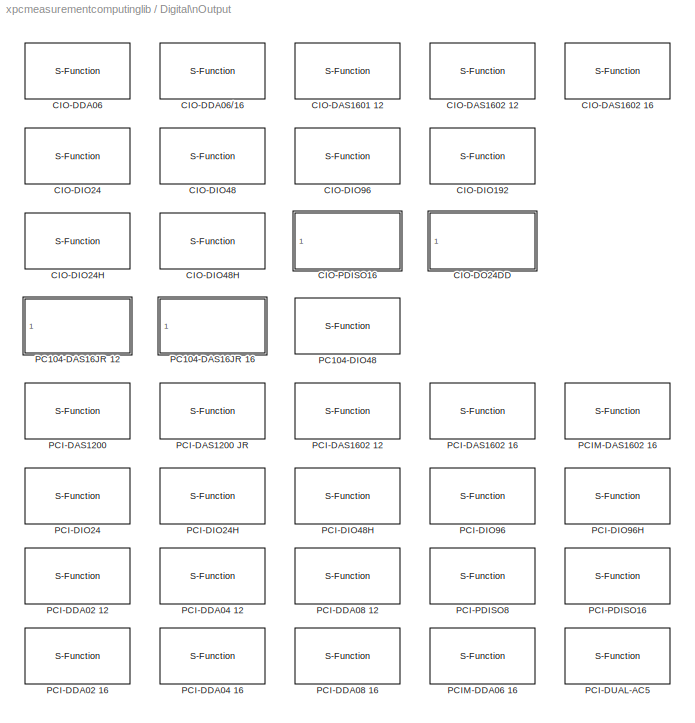
BLOCK [SubSystem] Digital\nOutput
  EnableExecutionContextPropagation = on
  MinAlgLoopOccurrences = off
  Ports = []
  TreatAsAtomicUnit = off
BLOCK [S-Function] Digital\nOutput/CIO-DAS1601 12 
  FunctionName = doisa8255
  InitFcn = misa8255(1);
  MaskCallbackString = ||||||
  MaskDescription = CIO-DAS1601/12\nComputerBoards\nDigital Output
  MaskDisplay = disp('CIO-DAS1601/12\\nComputerBoards\\nDigital Output');port_label('input',1,'1');
  MaskEnableString = on,on,on,on,on,on,on
  MaskHelp = helpview(fullfile(docroot, 'mapfiles', 'xpc.map'), 'ComputerBoards_CIO-DAS1601-12_DOUT')
  MaskIconFrame = on
  MaskIconOpaque = on
  MaskIconRotate = none
  MaskIconUnits = autoscale
  MaskInitialization = baseaddress=hex2dec(baseaddress(3:end));\ncontrol=155;\nboardType=16;\n[baseaddress,control,maskdisplay,maskdescription,reset,initValue]=misa8255(2, chip, port, channel, baseaddress, reset, initValue);\nset_param(gcb, 'MaskDisplay', maskdisplay);\nset_param(gcb, 'MaskDescription', maskdescription);\n  <repeated x12 — deduplicated; at blocks: CIO-DAS1601 12, CIO-DAS1602 12, CIO-DAS1602 16, CIO-DDA06, CIO-DDA06/16, CIO-DIO192, CIO-DIO24, CIO-DIO24H, CIO-DIO48, CIO-DIO48H, CIO-DIO96, PC104-DIO48>
  MaskPromptString = Channel vector:|Port:|Reset vector:|Initial value vector:|Chip:|Sample time:|Base address (i.e. 0xd000):
  MaskSelfModifiable = on
  MaskStyleString = edit,popup(A|B|C),edit,edit,popup(1),edit,edit
  MaskTabNameString = ,,,,,,
  MaskToolTipString = on,on,on,on,on,on,on
  MaskTunableValueString = on,on,on,on,on,on,on
  MaskType = docbciodas160112
  MaskValueString = [1]|A|[1]|[0]|1|0.001|0x300
  MaskVarAliasString = ,,,,,,
  MaskVariables = channel=@1;port=@2;reset=@3;initValue=@4;chip=@5;sampletime=@6;baseaddress=&7;
  MaskVisibilityString = on,on,on,on,off,on,on
  Parameters = channel, port, reset, initValue, sampletime, baseaddress, control
  Ports = [1]
BLOCK [S-Function] Digital\nOutput/CIO-DAS1602 12 
  FunctionName = doisa8255
  InitFcn = misa8255(1);
  MaskCallbackString = ||||||
  MaskDescription = CIO-DAS1602/12\nComputerBoards\nDigital Output
  MaskDisplay = disp('CIO-DAS1602/12\\nComputerBoards\\nDigital Output');port_label('input',1,'1');
  MaskEnableString = on,on,on,on,on,on,on
  MaskHelp = helpview(fullfile(docroot, 'mapfiles', 'xpc.map'), 'ComputerBoards_CIO-DAS1602-12_DOUT')
  MaskIconFrame = on
  MaskIconOpaque = on
  MaskIconRotate = none
  MaskIconUnits = autoscale
  MaskPromptString = Channel vector:|Port:|Reset vector:|Initial value vector:|Chip:|Sample time:|Base address (i.e. 0xd000):
  MaskSelfModifiable = on
  MaskStyleString = edit,popup(A|B|C),edit,edit,popup(1),edit,edit
  MaskTabNameString = ,,,,,,
  MaskToolTipString = on,on,on,on,on,on,on
  MaskTunableValueString = on,on,on,on,on,on,on
  MaskType = docbciodas160212
  MaskValueString = [1]|A|[1]|[0]|1|0.001|0x300
  MaskVarAliasString = ,,,,,,
  MaskVariables = channel=@1;port=@2;reset=@3;initValue=@4;chip=@5;sampletime=@6;baseaddress=&7;
  MaskVisibilityString = on,on,on,on,off,on,on
  Parameters = channel, port, reset, initValue, sampletime, baseaddress, control
  Ports = [1]
BLOCK [S-Function] Digital\nOutput/CIO-DAS1602 16 
  FunctionName = doisa8255
  InitFcn = misa8255(1);
  MaskCallbackString = ||||||
  MaskDescription = CIO-DAS1602/16\nComputerBoards\nDigital Output
  MaskDisplay = disp('CIO-DAS1602/16\\nComputerBoards\\nDigital Output');port_label('input',1,'1');
  MaskEnableString = on,on,on,on,on,on,on
  MaskHelp = helpview(fullfile(docroot, 'mapfiles', 'xpc.map'), 'ComputerBoards_CIO-DAS1602-16_DOUT')
  MaskIconFrame = on
  MaskIconOpaque = on
  MaskIconRotate = none
  MaskIconUnits = autoscale
  MaskPromptString = Channel vector:|Port:|Reset vector:|Initial value vector:|Chip:|Sample time:|Base address (i.e. 0xd000):
  MaskSelfModifiable = on
  MaskStyleString = edit,popup(A|B|C),edit,edit,popup(1),edit,edit
  MaskTabNameString = ,,,,,,
  MaskToolTipString = on,on,on,on,on,on,on
  MaskTunableValueString = on,on,on,on,on,on,on
  MaskType = docbciodas160216
  MaskValueString = [1]|A|[1]|[0]|1|0.001|0x300
  MaskVarAliasString = ,,,,,,
  MaskVariables = channel=@1;port=@2;reset=@3;initValue=@4;chip=@5;sampletime=@6;baseaddress=&7;
  MaskVisibilityString = on,on,on,on,off,on,on
  Parameters = channel, port, reset, initValue, sampletime, baseaddress, control
  Ports = [1]
BLOCK [S-Function] Digital\nOutput/CIO-DDA06 
  FunctionName = doisa8255
  InitFcn = misa8255(1);
  MaskCallbackString = ||||||
  MaskDescription = CIO-DDA06\nComputerBoards\nDigital Output
  MaskDisplay = disp('CIO-DDA06\\nComputerBoards\\nDigital Output');port_label('input',1,'1');
  MaskEnableString = on,on,on,on,on,on,on
  MaskHelp = helpview(fullfile(docroot, 'mapfiles', 'xpc.map'), 'ComputerBoards_CIO-DDA06_DOUT')
  MaskIconFrame = on
  MaskIconOpaque = on
  MaskIconRotate = none
  MaskIconUnits = autoscale
  MaskPromptString = Channel vector:|Port:|Reset vector:|Initial value vector:|Chip:|Sample time:|Base address (i.e. 0xd000):
  MaskSelfModifiable = on
  MaskStyleString = edit,popup(A|B|C),edit,edit,popup(1),edit,edit
  MaskTabNameString = ,,,,,,
  MaskToolTipString = on,on,on,on,on,on,on
  MaskTunableValueString = on,on,on,on,on,on,on
  MaskType = docbciodda06
  MaskValueString = [1]|A|[1]|[0]|1|0.001|0x300
  MaskVarAliasString = ,,,,,,
  MaskVariables = channel=@1;port=@2;reset=@3;initValue=@4;chip=@5;sampletime=@6;baseaddress=&7;
  MaskVisibilityString = on,on,on,on,off,on,on
  Parameters = channel, port, reset, initValue, sampletime, baseaddress, control
  Ports = [1]
BLOCK [S-Function] Digital\nOutput/CIO-DDA06//16 
  FunctionName = doisa8255
  InitFcn = misa8255(1);
  MaskCallbackString = ||||||
  MaskDescription = CIO-DDA06/16\nComputerBoards\nDigital Output
  MaskDisplay = disp('CIO-DDA06/16\\nComputerBoards\\nDigital Output');port_label('input',1,'1');
  MaskEnableString = on,on,on,on,on,on,on
  MaskHelp = helpview(fullfile(docroot, 'mapfiles', 'xpc.map'), 'ComputerBoards_CIO-DDA06-16_DOUT')
  MaskIconFrame = on
  MaskIconOpaque = on
  MaskIconRotate = none
  MaskIconUnits = autoscale
  MaskPromptString = Channel vector:|Port:|Reset vector:|Initial value vector:|Chip:|Sample time:|Base address (i.e. 0xd000):
  MaskSelfModifiable = on
  MaskStyleString = edit,popup(A|B|C),edit,edit,popup(1),edit,edit
  MaskTabNameString = ,,,,,,
  MaskToolTipString = on,on,on,on,on,on,on
  MaskTunableValueString = on,on,on,on,on,on,on
  MaskType = docbciodda0616
  MaskValueString = [1]|A|[1]|[0]|1|0.001|0x300
  MaskVarAliasString = ,,,,,,
  MaskVariables = channel=@1;port=@2;reset=@3;initValue=@4;chip=@5;sampletime=@6;baseaddress=&7;
  MaskVisibilityString = on,on,on,on,off,on,on
  Parameters = channel, port, reset, initValue, sampletime, baseaddress, control
  Ports = [1]
BLOCK [S-Function] Digital\nOutput/CIO-DIO192 
  FunctionName = doisa8255
  InitFcn = misa8255(1);
  MaskCallbackString = ||||||
  MaskDescription = CIO-DIO192\nComputerBoards\nDigital Output
  MaskDisplay = disp('CIO-DIO192\\nComputerBoards\\nDigital Output');port_label('input',1,'1');
  MaskEnableString = on,on,on,on,on,on,on
  MaskHelp = helpview(fullfile(docroot, 'mapfiles', 'xpc.map'), 'ComputerBoards_CIO-DIO192_DOUT')
  MaskIconFrame = on
  MaskIconOpaque = on
  MaskIconRotate = none
  MaskIconUnits = autoscale
  MaskPromptString = Channel vector:|Port:|Reset vector:|Initial value vector:|Chip:|Sample time:|Base address (i.e. 0xd000):
  MaskSelfModifiable = on
  MaskStyleString = edit,popup(A|B|C),edit,edit,popup(1|2|3|4|5|6|7|8),edit,edit
  MaskTabNameString = ,,,,,,
  MaskToolTipString = on,on,on,on,on,on,on
  MaskTunableValueString = on,on,on,on,on,on,on
  MaskType = docbciodio192
  MaskValueString = [1]|A|[1]|[0]|1|0.001|0x300
  MaskVarAliasString = ,,,,,,
  MaskVariables = channel=@1;port=@2;reset=@3;initValue=@4;chip=@5;sampletime=@6;baseaddress=&7;
  MaskVisibilityString = on,on,on,on,on,on,on
  Parameters = channel, port, reset, initValue, sampletime, baseaddress, control
  Ports = [1]
BLOCK [S-Function] Digital\nOutput/CIO-DIO24 
  FunctionName = doisa8255
  InitFcn = misa8255(1);
  MaskCallbackString = ||||||
  MaskDescription = CIO-DIO24\nComputerBoards\nDigital Output
  MaskDisplay = disp('CIO-DIO24\\nComputerBoards\\nDigital Output');port_label('input',1,'1');
  MaskEnableString = on,on,on,on,on,on,on
  MaskHelp = helpview(fullfile(docroot, 'mapfiles', 'xpc.map'), 'ComputerBoards_CIO-DIO24_DOUT')
  MaskIconFrame = on
  MaskIconOpaque = on
  MaskIconRotate = none
  MaskIconUnits = autoscale
  MaskPromptString = Channel vector:|Port:|Reset vector:|Initial value vector:|Chip:|Sample time:|Base address (i.e. 0xd000):
  MaskSelfModifiable = on
  MaskStyleString = edit,popup(A|B|C),edit,edit,popup(1),edit,edit
  MaskTabNameString = ,,,,,,
  MaskToolTipString = on,on,on,on,on,on,on
  MaskTunableValueString = on,on,on,on,on,on,on
  MaskType = docbciodio24
  MaskValueString = [1]|A|[1]|[0]|1|0.001|0x300
  MaskVarAliasString = ,,,,,,
  MaskVariables = channel=@1;port=@2;reset=@3;initValue=@4;chip=@5;sampletime=@6;baseaddress=&7;
  MaskVisibilityString = on,on,on,on,off,on,on
  Parameters = channel, port, reset, initValue, sampletime, baseaddress, control
  Ports = [1]
BLOCK [S-Function] Digital\nOutput/CIO-DIO24H 
  FunctionName = doisa8255
  InitFcn = misa8255(1);
  MaskCallbackString = ||||||
  MaskDescription = CIO-DIO24H\nComputerBoards\nDigital Output
  MaskDisplay = disp('CIO-DIO24H\\nComputerBoards\\nDigital Output');port_label('input',1,'1');
  MaskEnableString = on,on,on,on,on,on,on
  MaskHelp = helpview(fullfile(docroot, 'mapfiles', 'xpc.map'), 'ComputerBoards_CIO-DIO24H_DOUT')
  MaskIconFrame = on
  MaskIconOpaque = on
  MaskIconRotate = none
  MaskIconUnits = autoscale
  MaskPromptString = Channel vector:|Port:|Reset vector:|Initial value vector:|Chip:|Sample time:|Base address (i.e. 0xd000):
  MaskSelfModifiable = on
  MaskStyleString = edit,popup(A|B|C),edit,edit,popup(1),edit,edit
  MaskTabNameString = ,,,,,,
  MaskToolTipString = on,on,on,on,on,on,on
  MaskTunableValueString = on,on,on,on,on,on,on
  MaskType = docbciodio24h
  MaskValueString = [1]|A|[1]|[0]|1|0.001|0x300
  MaskVarAliasString = ,,,,,,
  MaskVariables = channel=@1;port=@2;reset=@3;initValue=@4;chip=@5;sampletime=@6;baseaddress=&7;
  MaskVisibilityString = on,on,on,on,off,on,on
  Parameters = channel, port, reset, initValue, sampletime, baseaddress, control
  Ports = [1]
BLOCK [S-Function] Digital\nOutput/CIO-DIO48 
  FunctionName = doisa8255
  InitFcn = misa8255(1);
  MaskCallbackString = ||||||
  MaskDescription = CIO-DIO48\nComputerBoards\nDigital Output
  MaskDisplay = disp('CIO-DIO48\\nComputerBoards\\nDigital Output');port_label('input',1,'1');
  MaskEnableString = on,on,on,on,on,on,on
  MaskHelp = helpview(fullfile(docroot, 'mapfiles', 'xpc.map'), 'ComputerBoards_CIO-DIO48_DOUT')
  MaskIconFrame = on
  MaskIconOpaque = on
  MaskIconRotate = none
  MaskIconUnits = autoscale
  MaskPromptString = Channel vector:|Port:|Reset vector:|Initial value vector:|Chip:|Sample time:|Base address (i.e. 0xd000):
  MaskSelfModifiable = on
  MaskStyleString = edit,popup(A|B|C),edit,edit,popup(1|2),edit,edit
  MaskTabNameString = ,,,,,,
  MaskToolTipString = on,on,on,on,on,on,on
  MaskTunableValueString = on,on,on,on,on,on,on
  MaskType = docbciodio48
  MaskValueString = [1]|A|[1]|[0]|1|0.001|0x300
  MaskVarAliasString = ,,,,,,
  MaskVariables = channel=@1;port=@2;reset=@3;initValue=@4;chip=@5;sampletime=@6;baseaddress=&7;
  MaskVisibilityString = on,on,on,on,on,on,on
  Parameters = channel, port, reset, initValue, sampletime, baseaddress, control
  Ports = [1]
BLOCK [S-Function] Digital\nOutput/CIO-DIO48H 
  FunctionName = doisa8255
  InitFcn = misa8255(1);
  MaskCallbackString = ||||||
  MaskDescription = CIO-DIO48H\nComputerBoards\nDigital Output
  MaskDisplay = disp('CIO-DIO48H\\nComputerBoards\\nDigital Output');port_label('input',1,'1');
  MaskEnableString = on,on,on,on,on,on,on
  MaskHelp = helpview(fullfile(docroot, 'mapfiles', 'xpc.map'), 'ComputerBoards_CIO-DIO48H_DOUT')
  MaskIconFrame = on
  MaskIconOpaque = on
  MaskIconRotate = none
  MaskIconUnits = autoscale
  MaskPromptString = Channel vector:|Port:|Reset vector:|Initial value vector:|Chip:|Sample time:|Base address (i.e. 0xd000):
  MaskSelfModifiable = on
  MaskStyleString = edit,popup(A|B|C),edit,edit,popup(1|2),edit,edit
  MaskTabNameString = ,,,,,,
  MaskToolTipString = on,on,on,on,on,on,on
  MaskTunableValueString = on,on,on,on,on,on,on
  MaskType = docbciodio48h
  MaskValueString = [1]|A|[1]|[0]|1|0.001|0x300
  MaskVarAliasString = ,,,,,,
  MaskVariables = channel=@1;port=@2;reset=@3;initValue=@4;chip=@5;sampletime=@6;baseaddress=&7;
  MaskVisibilityString = on,on,on,on,on,on,on
  Parameters = channel, port, reset, initValue, sampletime, baseaddress, control
  Ports = [1]
BLOCK [S-Function] Digital\nOutput/CIO-DIO96 
  FunctionName = doisa8255
  InitFcn = misa8255(1);
  MaskCallbackString = ||||||
  MaskDescription = CIO-DIO96\nComputerBoards\nDigital Output
  MaskDisplay = disp('CIO-DIO96\\nComputerBoards\\nDigital Output');port_label('input',1,'1');
  MaskEnableString = on,on,on,on,on,on,on
  MaskHelp = helpview(fullfile(docroot, 'mapfiles', 'xpc.map'), 'ComputerBoards_CIO-DIO96_DOUT')
  MaskIconFrame = on
  MaskIconOpaque = on
  MaskIconRotate = none
  MaskIconUnits = autoscale
  MaskPromptString = Channel vector:|Port:|Reset vector:|Initial value vector:|Chip:|Sample time:|Base address (i.e. 0xd000):
  MaskSelfModifiable = on
  MaskStyleString = edit,popup(A|B|C),edit,edit,popup(1|2|3|4),edit,edit
  MaskTabNameString = ,,,,,,
  MaskToolTipString = on,on,on,on,on,on,on
  MaskTunableValueString = on,on,on,on,on,on,on
  MaskType = docbciodio96
  MaskValueString = [1]|A|[1]|[0]|1|0.001|0x300
  MaskVarAliasString = ,,,,,,
  MaskVariables = channel=@1;port=@2;reset=@3;initValue=@4;chip=@5;sampletime=@6;baseaddress=&7;
  MaskVisibilityString = on,on,on,on,on,on,on
  Parameters = channel, port, reset, initValue, sampletime, baseaddress, control
  Ports = [1]
BLOCK [SubSystem] Digital\nOutput/CIO-DO24DD 
  EnableExecutionContextPropagation = on
  MaskCallbackString = |||
  MaskDescription = Computer Boards\nCIO-DO24DD\nDigital Output
  MaskDisplay = disp('CIO-DO24DD\\nComputerBoards\\nDigital Output')
  MaskEnableString = on,on,on,on
  MaskHelp = helpview(fullfile(docroot, 'mapfiles', 'xpc.map'), 'ComputerBoards_CIO-DO24DD_DOUT')
  MaskIconFrame = on
  MaskIconOpaque = on
  MaskIconRotate = none
  MaskIconUnits = autoscale
  MaskInitialization = baseaddress=hex2dec(baseaddress(3:end));
  MaskPromptString = Number of channels:|Port:|Sample time:|Base address (i.e. 0xd000):
  MaskStyleString = edit,popup(A|B|C),edit,edit
  MaskTabNameString = ,,,
  MaskToolTipString = on,on,on,on
  MaskTunableValueString = on,on,on,on
  MaskType = Digital Output Module
  MaskValueString = 1|A|0.001|0x300
  MaskVarAliasString = ,,,
  MaskVariables = n_channels=@1;port=@2;sample_time=@3;baseaddress=&4;
  MaskVisibilityString = on,on,on,on
  MinAlgLoopOccurrences = off
  Ports = [1]
  ShowPortLabels = off
  TreatAsAtomicUnit = off
BLOCK [S-Function] Digital\nOutput/CIO-DO24DD /DAC
  FunctionName = docbciodo24dd
  Parameters = n_channels,port,sample_time,baseaddress
  Ports = [1]
BLOCK [Inport] Digital\nOutput/CIO-DO24DD /in_1
  IconDisplay = Port number
  LatchInput = off
BLOCK [SubSystem] Digital\nOutput/CIO-PDISO16 
  EnableExecutionContextPropagation = on
  MaskCallbackString = |||
  MaskDescription = Computer Boards\nCIO-PDISO16\nDigital Output
  MaskDisplay = disp('CIO-PDISO16\\nComputerBoards\\nDigital Output')
  MaskEnableString = on,on,on,on
  MaskHelp = helpview(fullfile(docroot, 'mapfiles', 'xpc.map'), 'ComputerBoards_CIO-PDISO16_DOUT')
  MaskIconFrame = on
  MaskIconOpaque = on
  MaskIconRotate = none
  MaskIconUnits = autoscale
  MaskInitialization = baseaddress=hex2dec(baseaddress(3:end));
  MaskPromptString = Number of channels:|Section (connector):|Sample time:|Base address (i.e. 0xd000):
  MaskStyleString = edit,popup(1 (nearest to backplate)|2 (farthest from backplate)),edit,edit
  MaskTabNameString = ,,,
  MaskToolTipString = on,on,on,on
  MaskTunableValueString = on,on,on,on
  MaskType = Digital Output Module
  MaskValueString = 1|1 (nearest to backplate)|0.001|0x300
  MaskVarAliasString = ,,,
  MaskVariables = n_channels=@1;port=@2;sample_time=@3;baseaddress=&4;
  MaskVisibilityString = on,on,on,on
  MinAlgLoopOccurrences = off
  Ports = [1]
  ShowPortLabels = off
  TreatAsAtomicUnit = off
BLOCK [S-Function] Digital\nOutput/CIO-PDISO16 /DAC
  FunctionName = docbpdiso16
  Parameters = n_channels,port,sample_time,baseaddress
  Ports = [1]
BLOCK [Inport] Digital\nOutput/CIO-PDISO16 /in_1
  IconDisplay = Port number
  LatchInput = off
BLOCK [SubSystem] Digital\nOutput/PC104-DAS16JR 12 
  EnableExecutionContextPropagation = on
  MaskCallbackString = ||
  MaskDescription = Computer Boards\nPC104-DAS16JR/12\nDigital Output
  MaskDisplay = disp('PC104-DAS16JR/12\\nComputerBoards\\nDigital Output')
  MaskEnableString = on,on,on
  MaskHelp = helpview(fullfile(docroot, 'mapfiles', 'xpc.map'), 'ComputerBoards_PC104-DAS16JR-12_DOUT')
  MaskIconFrame = on
  MaskIconOpaque = on
  MaskIconRotate = none
  MaskIconUnits = autoscale
  MaskInitialization = baseaddress=hex2dec(baseaddress(3:end));
  MaskPromptString = Number of channels:|Sample time:|Base address (i.e. 0xd000):
  MaskStyleString = edit,edit,edit
  MaskTabNameString = ,,
  MaskToolTipString = on,on,on
  MaskTunableValueString = on,on,on
  MaskType = Digital Output Module
  MaskValueString = 1|0.001|0x300
  MaskVarAliasString = ,,
  MaskVariables = n_channels=@1;sample_time=@2;baseaddress=&3;
  MaskVisibilityString = on,on,on
  MinAlgLoopOccurrences = off
  Ports = [1]
  ShowPortLabels = off
  TreatAsAtomicUnit = off
BLOCK [S-Function] Digital\nOutput/PC104-DAS16JR 12 /DAC
  FunctionName = docbpc104das16jr
  Parameters = n_channels,sample_time,baseaddress
  Ports = [1]
BLOCK [Inport] Digital\nOutput/PC104-DAS16JR 12 /in_1
  IconDisplay = Port number
  LatchInput = off
BLOCK [SubSystem] Digital\nOutput/PC104-DAS16JR 16 
  EnableExecutionContextPropagation = on
  MaskCallbackString = ||
  MaskDescription = Computer Boards\nPC104-DAS16JR/16\nDigital Output
  MaskDisplay = disp('PC104-DAS16JR/16\\nComputerBoards\\nDigital Output')
  MaskEnableString = on,on,on
  MaskHelp = helpview(fullfile(docroot, 'mapfiles', 'xpc.map'), 'ComputerBoards_PC104-DAS16JR-16_DOUT')
  MaskIconFrame = on
  MaskIconOpaque = on
  MaskIconRotate = none
  MaskIconUnits = autoscale
  MaskInitialization = baseaddress=hex2dec(baseaddress(3:end));
  MaskPromptString = Number of channels:|Sample time:|Base address (i.e. 0xd000):
  MaskStyleString = edit,edit,edit
  MaskTabNameString = ,,
  MaskToolTipString = on,on,on
  MaskTunableValueString = on,on,on
  MaskType = Digital Output Module
  MaskValueString = 1|0.001|0x300
  MaskVarAliasString = ,,
  MaskVariables = n_channels=@1;sample_time=@2;baseaddress=&3;
  MaskVisibilityString = on,on,on
  MinAlgLoopOccurrences = off
  Ports = [1]
  ShowPortLabels = off
  TreatAsAtomicUnit = off
BLOCK [S-Function] Digital\nOutput/PC104-DAS16JR 16 /DAC
  FunctionName = docbpc104das16jr
  Parameters = n_channels,sample_time,baseaddress
  Ports = [1]
BLOCK [Inport] Digital\nOutput/PC104-DAS16JR 16 /in_1
  IconDisplay = Port number
  LatchInput = off
BLOCK [S-Function] Digital\nOutput/PC104-DIO48 
  FunctionName = doisa8255
  InitFcn = misa8255(1);
  MaskCallbackString = ||||||
  MaskDescription = PC104-DIO48\nComputerBoards\nDigital Output
  MaskDisplay = disp('PC104-DIO48\\nComputerBoards\\nDigital Output');port_label('input',1,'1');
  MaskEnableString = on,on,on,on,on,on,on
  MaskHelp = helpview(fullfile(docroot, 'mapfiles', 'xpc.map'), 'ComputerBoards_PC104-DIO48_DOUT')
  MaskIconFrame = on
  MaskIconOpaque = on
  MaskIconRotate = none
  MaskIconUnits = autoscale
  MaskPromptString = Channel vector:|Port:|Reset vector:|Initial value vector:|Chip:|Sample time:|Base address (i.e. 0xd000):
  MaskSelfModifiable = on
  MaskStyleString = edit,popup(A|B|C),edit,edit,popup(1|2),edit,edit
  MaskTabNameString = ,,,,,,
  MaskToolTipString = on,on,on,on,on,on,on
  MaskTunableValueString = on,on,on,on,on,on,on
  MaskType = docbpc104dio48
  MaskValueString = [1]|A|[1]|[0]|1|0.001|0x300
  MaskVarAliasString = ,,,,,,
  MaskVariables = channel=@1;port=@2;reset=@3;initValue=@4;chip=@5;sampletime=@6;baseaddress=&7;
  MaskVisibilityString = on,on,on,on,on,on,on
  Parameters = channel, port, reset, initValue, sampletime, baseaddress, control
  Ports = [1]
BLOCK [S-Function] Digital\nOutput/PCI-DAS1200 
  FunctionName = dopci8255
  InitFcn = mpci8255(1);
  MaskCallbackString = ||||||
  MaskDescription = PCI-DAS1200\nComputerBoards\nDigital Output
  MaskDisplay = disp('PCI-DAS1200\\nComputerBoards\\nDigital Output');port_label('input',1,'1');
  MaskEnableString = on,on,on,on,on,on,on
  MaskHelp = helpview(fullfile(docroot, 'mapfiles', 'xpc.map'), 'ComputerBoards_PCI-DAS1200_DOUT')
  MaskIconFrame = on
  MaskIconOpaque = on
  MaskIconRotate = none
  MaskIconUnits = autoscale
  MaskInitialization = control=155;\n[boardType,control,maskdisplay,maskdescription, reset, initValue]=mpci8255(2, chip, port, channel, slot, reset, initValue);\nset_param(gcb, 'MaskDisplay', maskdisplay);\nset_param(gcb, 'MaskDescription', maskdescription);\n\n
  MaskPromptString = Channel vector:|Port:|Reset vector:|Initial value vector:|Chip:|Sample time:|PCI Slot (-1: autosearch):
  MaskSelfModifiable = on
  MaskStyleString = edit,popup(A|B|C),edit,edit,popup(1),edit,edit
  MaskTabNameString = ,,,,,,
  MaskToolTipString = on,on,on,on,on,on,on
  MaskTunableValueString = on,on,on,on,on,on,on
  MaskType = docbpcidas1200
  MaskValueString = [1]|A|[1]|[0]|1|0.001|-1
  MaskVarAliasString = ,,,,,,
  MaskVariables = channel=@1;port=@2;reset=@3;initValue=@4;chip=@5;sampletime=@6;slot=@7;
  MaskVisibilityString = on,on,on,on,off,on,on
  Parameters = channel, port, reset, initValue, chip, sampletime, slot, control, boardType
  Ports = [1]
BLOCK [S-Function] Digital\nOutput/PCI-DAS1200 JR 
  FunctionName = dopci8255
  InitFcn = mpci8255(1);
  MaskCallbackString = ||||||
  MaskDescription = PCI-DAS1200/JR\nComputerBoards\nDigital Output
  MaskDisplay = disp('PCI-DAS1200/JR\\nComputerBoards\\nDigital Output');port_label('input',1,'1');
  MaskEnableString = on,on,on,on,on,on,on
  MaskHelp = helpview(fullfile(docroot, 'mapfiles', 'xpc.map'), 'ComputerBoards_PCI-DAS1200-JR_DOUT')
  MaskIconFrame = on
  MaskIconOpaque = on
  MaskIconRotate = none
  MaskIconUnits = autoscale
  MaskInitialization = control=155;\n[boardType,control,maskdisplay,maskdescription, reset, initValue]=mpci8255(2, chip, port, channel, slot, reset, initValue);\nset_param(gcb, 'MaskDisplay', maskdisplay);\nset_param(gcb, 'MaskDescription', maskdescription);\n  <repeated x16 — deduplicated; at blocks: PCI-DAS1200 JR, PCI-DAS1602 12, PCI-DAS1602 16, PCI-DDA02 12, PCI-DDA02 16, PCI-DDA04 12, PCI-DDA04 16, PCI-DDA08 12, PCI-DDA08 16, PCI-DIO24H, PCI-DIO48H, PCI-DIO96, PCI-DIO96H, PCI-DUAL-AC5, PCIM-DAS1602 16, PCIM-DDA06 16>
  MaskPromptString = Channel vector:|Port:|Reset vector:|Initial value vector:|Chip:|Sample time:|PCI Slot (-1: autosearch):
  MaskSelfModifiable = on
  MaskStyleString = edit,popup(A|B|C),edit,edit,popup(1),edit,edit
  MaskTabNameString = ,,,,,,
  MaskToolTipString = on,on,on,on,on,on,on
  MaskTunableValueString = on,on,on,on,on,on,on
  MaskType = docbpcidas1200jr
  MaskValueString = [1]|A|[1]|[0]|1|0.001|-1
  MaskVarAliasString = ,,,,,,
  MaskVariables = channel=@1;port=@2;reset=@3;initValue=@4;chip=@5;sampletime=@6;slot=@7;
  MaskVisibilityString = on,on,on,on,off,on,on
  Parameters = channel, port, reset, initValue, chip, sampletime, slot, control, boardType
  Ports = [1]
BLOCK [S-Function] Digital\nOutput/PCI-DAS1602 12 
  FunctionName = dopci8255
  InitFcn = mpci8255(1);
  MaskCallbackString = ||||||
  MaskDescription = PCI-DAS1602/12\nComputerBoards\nDigital Output
  MaskDisplay = disp('PCI-DAS1602/12\\nComputerBoards\\nDigital Output');port_label('input',1,'1');
  MaskEnableString = on,on,on,on,on,on,on
  MaskHelp = helpview(fullfile(docroot, 'mapfiles', 'xpc.map'), 'ComputerBoards_PCI-DAS1602-12_DOUT')
  MaskIconFrame = on
  MaskIconOpaque = on
  MaskIconRotate = none
  MaskIconUnits = autoscale
  MaskPromptString = Channel vector:|Port:|Reset vector:|Initial value vector:|Chip:|Sample time:|PCI Slot (-1: autosearch):
  MaskSelfModifiable = on
  MaskStyleString = edit,popup(A|B|C),edit,edit,popup(1),edit,edit
  MaskTabNameString = ,,,,,,
  MaskToolTipString = on,on,on,on,on,on,on
  MaskTunableValueString = on,on,on,on,on,on,on
  MaskType = docbpcidas160212
  MaskValueString = [1]|A|[1]|[0]|1|0.001|-1
  MaskVarAliasString = ,,,,,,
  MaskVariables = channel=@1;port=@2;reset=@3;initValue=@4;chip=@5;sampletime=@6;slot=@7;
  MaskVisibilityString = on,on,on,on,off,on,on
  Parameters = channel, port, reset, initValue, chip, sampletime, slot, control, boardType
  Ports = [1]
BLOCK [S-Function] Digital\nOutput/PCI-DAS1602 16 
  FunctionName = dopci8255
  InitFcn = mpci8255(1);
  MaskCallbackString = ||||||
  MaskDescription = PCI-DAS1602/16\nComputerBoards\nDigital Output
  MaskDisplay = disp('PCI-DAS1602/16\\nComputerBoards\\nDigital Output');port_label('input',1,'1');
  MaskEnableString = on,on,on,on,on,on,on
  MaskHelp = helpview(fullfile(docroot, 'mapfiles', 'xpc.map'), 'ComputerBoards_PCI-DAS1602-16_DOUT')
  MaskIconFrame = on
  MaskIconOpaque = on
  MaskIconRotate = none
  MaskIconUnits = autoscale
  MaskPromptString = Channel vector:|Port:|Reset vector:|Initial value vector:|Chip:|Sample time:|PCI Slot (-1: autosearch):
  MaskSelfModifiable = on
  MaskStyleString = edit,popup(A|B|C),edit,edit,popup(1),edit,edit
  MaskTabNameString = ,,,,,,
  MaskToolTipString = on,on,on,on,on,on,on
  MaskTunableValueString = on,on,on,on,on,on,on
  MaskType = docbpcidas160216
  MaskValueString = [1]|A|[1]|[0]|1|0.001|-1
  MaskVarAliasString = ,,,,,,
  MaskVariables = channel=@1;port=@2;reset=@3;initValue=@4;chip=@5;sampletime=@6;slot=@7;
  MaskVisibilityString = on,on,on,on,off,on,on
  Parameters = channel, port, reset, initValue, chip, sampletime, slot, control, boardType
  Ports = [1]
BLOCK [S-Function] Digital\nOutput/PCI-DDA02 12 
  FunctionName = dopci8255
  InitFcn = mpci8255(1);
  MaskCallbackString = ||||||
  MaskDescription = PCI-DDA02/12\nComputerBoards\nDigital Output
  MaskDisplay = disp('PCI-DDA02/12\\nComputerBoards\\nDigital Output');port_label('input',1,'1');
  MaskEnableString = on,on,on,on,on,on,on
  MaskHelp = helpview(fullfile(docroot, 'mapfiles', 'xpc.map'), 'ComputerBoards_PCI-DDA02-12_DOUT')
  MaskIconFrame = on
  MaskIconOpaque = on
  MaskIconRotate = none
  MaskIconUnits = autoscale
  MaskPromptString = Channel vector:|Port:|Reset vector:|Initial value vector:|Chip:|Sample time:|PCI Slot (-1: autosearch):
  MaskSelfModifiable = on
  MaskStyleString = edit,popup(A|B|C),edit,edit,popup(1|2),edit,edit
  MaskTabNameString = ,,,,,,
  MaskToolTipString = on,on,on,on,on,on,on
  MaskTunableValueString = on,on,on,on,on,on,on
  MaskType = docbpcidda0212
  MaskValueString = [1]|A|[1]|[0]|1|0.001|-1
  MaskVarAliasString = ,,,,,,
  MaskVariables = channel=@1;port=@2;reset=@3;initValue=@4;chip=@5;sampletime=@6;slot=@7;
  MaskVisibilityString = on,on,on,on,on,on,on
  Parameters = channel, port, reset, initValue, chip, sampletime, slot, control, boardType
  Ports = [1]
BLOCK [S-Function] Digital\nOutput/PCI-DDA02 16 
  FunctionName = dopci8255
  InitFcn = mpci8255(1);
  MaskCallbackString = ||||||
  MaskDescription = PCI-DDA02/16\nComputerBoards\nDigital Output
  MaskDisplay = disp('PCI-DDA02/16\\nComputerBoards\\nDigital Output');port_label('input',1,'1');
  MaskEnableString = on,on,on,on,on,on,on
  MaskHelp = helpview(fullfile(docroot, 'mapfiles', 'xpc.map'), 'ComputerBoards_PCI-DDA02-16_DOUT')
  MaskIconFrame = on
  MaskIconOpaque = on
  MaskIconRotate = none
  MaskIconUnits = autoscale
  MaskPromptString = Channel vector:|Port:|Reset vector:|Initial value vector:|Chip:|Sample time:|PCI Slot (-1: autosearch):
  MaskSelfModifiable = on
  MaskStyleString = edit,popup(A|B|C),edit,edit,popup(1|2),edit,edit
  MaskTabNameString = ,,,,,,
  MaskToolTipString = on,on,on,on,on,on,on
  MaskTunableValueString = on,on,on,on,on,on,on
  MaskType = docbpcidda0216
  MaskValueString = [1]|A|[1]|[0]|1|0.001|-1
  MaskVarAliasString = ,,,,,,
  MaskVariables = channel=@1;port=@2;reset=@3;initValue=@4;chip=@5;sampletime=@6;slot=@7;
  MaskVisibilityString = on,on,on,on,on,on,on
  Parameters = channel, port, reset, initValue, chip, sampletime, slot, control, boardType
  Ports = [1]
BLOCK [S-Function] Digital\nOutput/PCI-DDA04 12 
  FunctionName = dopci8255
  InitFcn = mpci8255(1);
  MaskCallbackString = ||||||
  MaskDescription = PCI-DDA04/12\nComputerBoards\nDigital Output
  MaskDisplay = disp('PCI-DDA04/12\\nComputerBoards\\nDigital Output');port_label('input',1,'1');
  MaskEnableString = on,on,on,on,on,on,on
  MaskHelp = helpview(fullfile(docroot, 'mapfiles', 'xpc.map'), 'ComputerBoards_PCI-DDA04-12_DOUT')
  MaskIconFrame = on
  MaskIconOpaque = on
  MaskIconRotate = none
  MaskIconUnits = autoscale
  MaskPromptString = Channel vector:|Port:|Reset vector:|Initial value vector:|Chip:|Sample time:|PCI Slot (-1: autosearch):
  MaskSelfModifiable = on
  MaskStyleString = edit,popup(A|B|C),edit,edit,popup(1|2),edit,edit
  MaskTabNameString = ,,,,,,
  MaskToolTipString = on,on,on,on,on,on,on
  MaskTunableValueString = on,on,on,on,on,on,on
  MaskType = docbpcidda0412
  MaskValueString = [1]|A|[1]|[0]|1|0.001|-1
  MaskVarAliasString = ,,,,,,
  MaskVariables = channel=@1;port=@2;reset=@3;initValue=@4;chip=@5;sampletime=@6;slot=@7;
  MaskVisibilityString = on,on,on,on,on,on,on
  Parameters = channel, port, reset, initValue, chip, sampletime, slot, control, boardType
  Ports = [1]
BLOCK [S-Function] Digital\nOutput/PCI-DDA04 16 
  FunctionName = dopci8255
  InitFcn = mpci8255(1);
  MaskCallbackString = ||||||
  MaskDescription = PCI-DDA04/16\nComputerBoards\nDigital Output
  MaskDisplay = disp('PCI-DDA04/16\\nComputerBoards\\nDigital Output');port_label('input',1,'1');
  MaskEnableString = on,on,on,on,on,on,on
  MaskHelp = helpview(fullfile(docroot, 'mapfiles', 'xpc.map'), 'ComputerBoards_PCI-DDA04-16_DOUT')
  MaskIconFrame = on
  MaskIconOpaque = on
  MaskIconRotate = none
  MaskIconUnits = autoscale
  MaskPromptString = Channel vector:|Port:|Reset vector:|Initial value vector:|Chip:|Sample time:|PCI Slot (-1: autosearch):
  MaskSelfModifiable = on
  MaskStyleString = edit,popup(A|B|C),edit,edit,popup(1|2),edit,edit
  MaskTabNameString = ,,,,,,
  MaskToolTipString = on,on,on,on,on,on,on
  MaskTunableValueString = on,on,on,on,on,on,on
  MaskType = docbpcidda0416
  MaskValueString = [1]|A|[1]|[0]|1|0.001|-1
  MaskVarAliasString = ,,,,,,
  MaskVariables = channel=@1;port=@2;reset=@3;initValue=@4;chip=@5;sampletime=@6;slot=@7;
  MaskVisibilityString = on,on,on,on,on,on,on
  Parameters = channel, port, reset, initValue, chip, sampletime, slot, control, boardType
  Ports = [1]
BLOCK [S-Function] Digital\nOutput/PCI-DDA08 12 
  FunctionName = dopci8255
  InitFcn = mpci8255(1);
  MaskCallbackString = ||||||
  MaskDescription = PCI-DDA08/12\nComputerBoards\nDigital Output
  MaskDisplay = disp('PCI-DDA08/12\\nComputerBoards\\nDigital Output');port_label('input',1,'1');
  MaskEnableString = on,on,on,on,on,on,on
  MaskHelp = helpview(fullfile(docroot, 'mapfiles', 'xpc.map'), 'ComputerBoards_PCI-DDA08-12_DOUT')
  MaskIconFrame = on
  MaskIconOpaque = on
  MaskIconRotate = none
  MaskIconUnits = autoscale
  MaskPromptString = Channel vector:|Port:|Reset vector:|Initial value vector:|Chip:|Sample time:|PCI Slot (-1: autosearch):
  MaskSelfModifiable = on
  MaskStyleString = edit,popup(A|B|C),edit,edit,popup(1|2),edit,edit
  MaskTabNameString = ,,,,,,
  MaskToolTipString = on,on,on,on,on,on,on
  MaskTunableValueString = on,on,on,on,on,on,on
  MaskType = docbpcidda0812
  MaskValueString = [1]|A|[1]|[0]|1|0.001|-1
  MaskVarAliasString = ,,,,,,
  MaskVariables = channel=@1;port=@2;reset=@3;initValue=@4;chip=@5;sampletime=@6;slot=@7;
  MaskVisibilityString = on,on,on,on,on,on,on
  Parameters = channel, port, reset, initValue, chip, sampletime, slot, control, boardType
  Ports = [1]
BLOCK [S-Function] Digital\nOutput/PCI-DDA08 16 
  FunctionName = dopci8255
  InitFcn = mpci8255(1);
  MaskCallbackString = ||||||
  MaskDescription = PCI-DDA08/16\nComputerBoards\nDigital Output
  MaskDisplay = disp('PCI-DDA08/16\\nComputerBoards\\nDigital Output');port_label('input',1,'1');
  MaskEnableString = on,on,on,on,on,on,on
  MaskHelp = helpview(fullfile(docroot, 'mapfiles', 'xpc.map'), 'ComputerBoards_PCI-DDA08-16_DOUT')
  MaskIconFrame = on
  MaskIconOpaque = on
  MaskIconRotate = none
  MaskIconUnits = autoscale
  MaskPromptString = Channel vector:|Port:|Reset vector:|Initial value vector:|Chip:|Sample time:|PCI Slot (-1: autosearch):
  MaskSelfModifiable = on
  MaskStyleString = edit,popup(A|B|C),edit,edit,popup(1|2),edit,edit
  MaskTabNameString = ,,,,,,
  MaskToolTipString = on,on,on,on,on,on,on
  MaskTunableValueString = on,on,on,on,on,on,on
  MaskType = docbpcidda0816
  MaskValueString = [1]|A|[1]|[0]|1|0.001|-1
  MaskVarAliasString = ,,,,,,
  MaskVariables = channel=@1;port=@2;reset=@3;initValue=@4;chip=@5;sampletime=@6;slot=@7;
  MaskVisibilityString = on,on,on,on,on,on,on
  Parameters = channel, port, reset, initValue, chip, sampletime, slot, control, boardType
  Ports = [1]
BLOCK [S-Function] Digital\nOutput/PCI-DIO24 
  FunctionName = dopci8255
  InitFcn = mpci8255(1);
  MaskCallbackString = ||||||
  MaskDescription = PCI-DIO24\nComputerBoards\nDigital Output
  MaskDisplay = disp('PCI-DIO24\\nComputerBoards\\nDigital Output');port_label('input',1,'1');
  MaskEnableString = on,on,on,on,on,on,on
  MaskHelp = helpview(fullfile(docroot, 'mapfiles', 'xpc.map'), 'ComputerBoards_PCI-DIO24_DOUT')
  MaskIconFrame = on
  MaskIconOpaque = on
  MaskIconRotate = none
  MaskIconUnits = autoscale
  MaskInitialization = control=155;\n[boardType,control,maskdisplay,maskdescription, reset, initValue]=mpci8255(2, chip, port, channel, slot, reset, initValue);\nset_param(gcb, 'MaskDisplay', maskdisplay);\nset_param(gcb, 'MaskDescription', maskdescription);\n\n\n
  MaskPromptString = Channel vector:|Port:|Reset vector:|Initial value vector:|Chip:|Sample time:|PCI Slot (-1: autosearch):
  MaskSelfModifiable = on
  MaskStyleString = edit,popup(A|B|C),edit,edit,popup(1),edit,edit
  MaskTabNameString = ,,,,,,
  MaskToolTipString = on,on,on,on,on,on,on
  MaskTunableValueString = on,on,on,on,on,on,on
  MaskType = docbpcidio24
  MaskValueString = [1]|A|[1]|[0]|1|0.001|-1
  MaskVarAliasString = ,,,,,,
  MaskVariables = channel=@1;port=@2;reset=@3;initValue=@4;chip=@5;sampletime=@6;slot=@7;
  MaskVisibilityString = on,on,on,on,off,on,on
  Parameters = channel, port, reset, initValue, chip, sampletime, slot, control, boardType
  Ports = [1]
BLOCK [S-Function] Digital\nOutput/PCI-DIO24H 
  FunctionName = dopci8255
  InitFcn = mpci8255(1);
  MaskCallbackString = ||||||
  MaskDescription = PCI-DIO24H\nComputerBoards\nDigital Output
  MaskDisplay = disp('PCI-DIO24H\\nComputerBoards\\nDigital Output');port_label('input',1,'1');
  MaskEnableString = on,on,on,on,on,on,on
  MaskHelp = helpview(fullfile(docroot, 'mapfiles', 'xpc.map'), 'ComputerBoards_PCI-DIO24H_DOUT')
  MaskIconFrame = on
  MaskIconOpaque = on
  MaskIconRotate = none
  MaskIconUnits = autoscale
  MaskPromptString = Channel vector:|Port:|Reset vector:|Initial value vector:|Chip:|Sample time:|PCI Slot (-1: autosearch):
  MaskSelfModifiable = on
  MaskStyleString = edit,popup(A|B|C),edit,edit,popup(1),edit,edit
  MaskTabNameString = ,,,,,,
  MaskToolTipString = on,on,on,on,on,on,on
  MaskTunableValueString = on,on,on,on,on,on,on
  MaskType = docbpcidio24h
  MaskValueString = [1]|A|[1]|[0]|1|0.001|-1
  MaskVarAliasString = ,,,,,,
  MaskVariables = channel=@1;port=@2;reset=@3;initValue=@4;chip=@5;sampletime=@6;slot=@7;
  MaskVisibilityString = on,on,on,on,off,on,on
  Parameters = channel, port, reset, initValue, chip, sampletime, slot, control, boardType
  Ports = [1]
BLOCK [S-Function] Digital\nOutput/PCI-DIO48H 
  FunctionName = dopci8255
  InitFcn = mpci8255(1);
  MaskCallbackString = ||||||
  MaskDescription = PCI-DIO48H\nComputerBoards\nDigital Output
  MaskDisplay = disp('PCI-DIO48H\\nComputerBoards\\nDigital Output');port_label('input',1,'1');
  MaskEnableString = on,on,on,on,on,on,on
  MaskHelp = helpview(fullfile(docroot, 'mapfiles', 'xpc.map'), 'ComputerBoards_PCI-DIO48H_DOUT')
  MaskIconFrame = on
  MaskIconOpaque = on
  MaskIconRotate = none
  MaskIconUnits = autoscale
  MaskPromptString = Channel vector:|Port:|Reset vector:|Initial value vector:|Chip:|Sample time:|PCI Slot (-1: autosearch):
  MaskSelfModifiable = on
  MaskStyleString = edit,popup(A|B|C),edit,edit,popup(1|2),edit,edit
  MaskTabNameString = ,,,,,,
  MaskToolTipString = on,on,on,on,on,on,on
  MaskTunableValueString = on,on,on,on,on,on,on
  MaskType = docbpcidio48h
  MaskValueString = [1]|A|[1]|[0]|1|0.001|-1
  MaskVarAliasString = ,,,,,,
  MaskVariables = channel=@1;port=@2;reset=@3;initValue=@4;chip=@5;sampletime=@6;slot=@7;
  MaskVisibilityString = on,on,on,on,on,on,on
  Parameters = channel, port, reset, initValue, chip, sampletime, slot, control, boardType
  Ports = [1]
BLOCK [S-Function] Digital\nOutput/PCI-DIO96 
  FunctionName = dopci8255
  InitFcn = mpci8255(1);
  MaskCallbackString = ||||||
  MaskDescription = PCI-DIO96\nComputerBoards\nDigital Output
  MaskDisplay = disp('PCI-DIO96\\nComputerBoards\\nDigital Output');port_label('input',1,'1');
  MaskEnableString = on,on,on,on,on,on,on
  MaskHelp = helpview(fullfile(docroot, 'mapfiles', 'xpc.map'), 'ComputerBoards_PCI-DIO96_DOUT')
  MaskIconFrame = on
  MaskIconOpaque = on
  MaskIconRotate = none
  MaskIconUnits = autoscale
  MaskPromptString = Channel vector:|Port:|Reset vector:|Initial value vector:|Chip:|Sample time:|PCI Slot (-1: autosearch):
  MaskSelfModifiable = on
  MaskStyleString = edit,popup(A|B|C),edit,edit,popup(1|2|3|4),edit,edit
  MaskTabNameString = ,,,,,,
  MaskToolTipString = on,on,on,on,on,on,on
  MaskTunableValueString = on,on,on,on,on,on,on
  MaskType = docbpcidio96
  MaskValueString = [1]|A|[1]|[0]|1|0.001|-1
  MaskVarAliasString = ,,,,,,
  MaskVariables = channel=@1;port=@2;reset=@3;initValue=@4;chip=@5;sampletime=@6;slot=@7;
  MaskVisibilityString = on,on,on,on,on,on,on
  Parameters = channel, port, reset, initValue, chip, sampletime, slot, control, boardType
  Ports = [1]
BLOCK [S-Function] Digital\nOutput/PCI-DIO96H 
  FunctionName = dopci8255
  InitFcn = mpci8255(1);
  MaskCallbackString = ||||||
  MaskDescription = PCI-DIO96H\nComputerBoards\nDigital Output
  MaskDisplay = disp('PCI-DIO96H\\nComputerBoards\\nDigital Output');port_label('input',1,'1');
  MaskEnableString = on,on,on,on,on,on,on
  MaskHelp = helpview(fullfile(docroot, 'mapfiles', 'xpc.map'), 'ComputerBoards_PCI-DIO96H_DOUT')
  MaskIconFrame = on
  MaskIconOpaque = on
  MaskIconRotate = none
  MaskIconUnits = autoscale
  MaskPromptString = Channel vector:|Port:|Reset vector:|Initial value vector:|Chip:|Sample time:|PCI Slot (-1: autosearch):
  MaskSelfModifiable = on
  MaskStyleString = edit,popup(A|B|C),edit,edit,popup(1|2|3|4),edit,edit
  MaskTabNameString = ,,,,,,
  MaskToolTipString = on,on,on,on,on,on,on
  MaskTunableValueString = on,on,on,on,on,on,on
  MaskType = docbpcidio96h
  MaskValueString = [1]|A|[1]|[0]|1|0.001|-1
  MaskVarAliasString = ,,,,,,
  MaskVariables = channel=@1;port=@2;reset=@3;initValue=@4;chip=@5;sampletime=@6;slot=@7;
  MaskVisibilityString = on,on,on,on,on,on,on
  Parameters = channel, port, reset, initValue, chip, sampletime, slot, control, boardType
  Ports = [1]
BLOCK [S-Function] Digital\nOutput/PCI-DUAL-AC5 
  FunctionName = dopci8255
  InitFcn = mpci8255(1);
  MaskCallbackString = ||||||
  MaskDescription = PCI-DUAL-AC5\nComputerBoards\nDigital Output
  MaskDisplay = disp('PCI-DUAL-AC5\\nComputerBoards\\nDigital Output');port_label('input',1,'1');
  MaskEnableString = on,on,on,on,on,on,on
  MaskHelp = helpview(fullfile(docroot, 'mapfiles', 'xpc.map'), 'ComputerBoards_PCI-DUAL-AC5_DOUT')
  MaskIconFrame = on
  MaskIconOpaque = on
  MaskIconRotate = none
  MaskIconUnits = autoscale
  MaskPromptString = Channel vector:|Port:|Reset vector:|Initial value vector:|Chip:|Sample time:|PCI Slot (-1: autosearch):
  MaskSelfModifiable = on
  MaskStyleString = edit,popup(A|B|C),edit,edit,popup(1|2|3|4),edit,edit
  MaskTabNameString = ,,,,,,
  MaskToolTipString = on,on,on,on,on,on,on
  MaskTunableValueString = on,on,on,on,on,on,on
  MaskType = docbpcidualac5
  MaskValueString = [1]|A|[1]|[0]|1|0.001|-1
  MaskVarAliasString = ,,,,,,
  MaskVariables = channel=@1;port=@2;reset=@3;initValue=@4;chip=@5;sampletime=@6;slot=@7;
  MaskVisibilityString = on,on,on,on,on,on,on
  Parameters = channel, port, reset, initValue, chip, sampletime, slot, control, boardType
  Ports = [1]
BLOCK [S-Function] Digital\nOutput/PCI-PDISO16 
  FunctionName = docbpcipdisox
  InitFcn = mdiocbpcipdisox(1);
  MaskCallbackString = ||||
  MaskDescription = PCI-DISO16\nComputerBoards\nDigital Output
  MaskDisplay = disp('PCI-DISO16\\nComputerBoards\\nDigital Output');port_label('input',1,'1');
  MaskEnableString = on,on,on,on,on
  MaskHelp = helpview(fullfile(docroot, 'mapfiles', 'xpc.map'), 'ComputerBoards_PCI-PDISO16_DOUT')
  MaskIconFrame = on
  MaskIconOpaque = on
  MaskIconRotate = none
  MaskIconUnits = autoscale
  MaskPromptString = Channel vector:|Filter vector:|Port:|Sample time:|PCI slot (-1: autosearch):
  MaskSelfModifiable = on
  MaskStyleString = edit,edit,popup(A|B),edit,edit
  MaskTabNameString = ,,,,
  MaskToolTipString = on,on,on,on,on
  MaskTunableValueString = on,on,on,on,on
  MaskType = docbpcipdiso16
  MaskValueString = [1]|[0]|A|0.001|-1
  MaskVarAliasString = ,,,,
  MaskVariables = channel=@1;filter=@2;port=@3;sampletime=@4;slot=@5;
  MaskVisibilityString = on,off,on,on,on
  Parameters = channel, port, sampletime, slot, filter, boardType
  Ports = [1]
BLOCK [S-Function] Digital\nOutput/PCI-PDISO8 
  FunctionName = docbpcipdisox
  InitFcn = mdiocbpcipdisox(1);
  MaskCallbackString = ||||
  MaskDescription = PCI-DISO8\nComputerBoards\nDigital Output
  MaskDisplay = disp('PCI-DISO8\\nComputerBoards\\nDigital Output');port_label('input',1,'1');
  MaskEnableString = on,on,on,on,on
  MaskHelp = helpview(fullfile(docroot, 'mapfiles', 'xpc.map'), 'ComputerBoards_PCI-PDISO8_DOUT')
  MaskIconFrame = on
  MaskIconOpaque = on
  MaskIconRotate = none
  MaskIconUnits = autoscale
  MaskPromptString = Channel vector:|Filter vector:|Port:|Sample time:|PCI slot (-1: autosearch):
  MaskSelfModifiable = on
  MaskStyleString = edit,edit,popup(A|B),edit,edit
  MaskTabNameString = ,,,,
  MaskToolTipString = on,on,on,on,on
  MaskTunableValueString = on,on,on,on,on
  MaskType = docbpcipdiso8
  MaskValueString = [1]|[0]|A|0.001|-1
  MaskVarAliasString = ,,,,
  MaskVariables = channel=@1;filter=@2;port=@3;sampletime=@4;slot=@5;
  MaskVisibilityString = on,off,on,on,on
  Parameters = channel, port, sampletime, slot, filter, boardType
  Ports = [1]
BLOCK [S-Function] Digital\nOutput/PCIM-DAS1602 16 
  FunctionName = dopci8255
  InitFcn = mpci8255(1);
  MaskCallbackString = ||||||
  MaskDescription = PCIM-DAS1602/16\nComputerBoards\nDigital Output
  MaskDisplay = disp('PCIM-DAS1602/16\\nComputerBoards\\nDigital Output');port_label('input',1,'1');
  MaskEnableString = on,on,on,on,on,on,on
  MaskHelp = helpview(fullfile(docroot, 'mapfiles', 'xpc.map'), 'ComputerBoards_PCIM-DAS1602-16_DOUT')
  MaskIconFrame = on
  MaskIconOpaque = on
  MaskIconRotate = none
  MaskIconUnits = autoscale
  MaskPromptString = Channel vector:|Port:|Reset vector:|Initial value vector:|Chip:|Sample time:|PCI Slot (-1: autosearch):
  MaskSelfModifiable = on
  MaskStyleString = edit,popup(A|B|C),edit,edit,popup(1),edit,edit
  MaskTabNameString = ,,,,,,
  MaskToolTipString = on,on,on,on,on,on,on
  MaskTunableValueString = on,on,on,on,on,on,on
  MaskType = docbpcimdas160216
  MaskValueString = [1]|A|[1]|[0]|1|0.001|-1
  MaskVarAliasString = ,,,,,,
  MaskVariables = channel=@1;port=@2;reset=@3;initValue=@4;chip=@5;sampletime=@6;slot=@7;
  MaskVisibilityString = on,on,on,on,off,on,on
  Parameters = channel, port, reset, initValue, chip, sampletime, slot, control, boardType
  Ports = [1]
BLOCK [S-Function] Digital\nOutput/PCIM-DDA06 16 
  FunctionName = dopci8255
  InitFcn = mpci8255(1);
  MaskCallbackString = ||||||
  MaskDescription = PCIM-DDA06/16\nComputerBoards\nDigital Output
  MaskDisplay = disp('PCIM-DDA06/16\\nComputerBoards\\nDigital Output');port_label('input',1,'1');
  MaskEnableString = on,on,on,on,on,on,on
  MaskHelp = helpview(fullfile(docroot, 'mapfiles', 'xpc.map'), 'ComputerBoards_PCIM-DDA06-16_DOUT')
  MaskIconFrame = on
  MaskIconOpaque = on
  MaskIconRotate = none
  MaskIconUnits = autoscale
  MaskPromptString = Channel vector:|Port:|Reset vector:|Initial value vector:|Chip:|Sample time:|PCI Slot (-1: autosearch):
  MaskSelfModifiable = on
  MaskStyleString = edit,popup(A|B|C),edit,edit,popup(1),edit,edit
  MaskTabNameString = ,,,,,,
  MaskToolTipString = on,on,on,on,on,on,on
  MaskTunableValueString = on,on,on,on,on,on,on
  MaskType = docbpcimdda0616
  MaskValueString = [1]|A|[1]|[0]|1|0.001|-1
  MaskVarAliasString = ,,,,,,
  MaskVariables = channel=@1;port=@2;reset=@3;initValue=@4;chip=@5;sampletime=@6;slot=@7;
  MaskVisibilityString = on,on,on,on,off,on,on
  Parameters = channel, port, reset, initValue, chip, sampletime, slot, control, boardType
  Ports = [1]
BLOCK [SubSystem] Incremental\nEncoder
  EnableExecutionContextPropagation = on
  MinAlgLoopOccurrences = off
  Ports = []
  TreatAsAtomicUnit = off
BLOCK [S-Function] Incremental\nEncoder/CIO-QUAD02 
  FunctionName = enccbcioquadcount
  InitFcn = menccbcioquadcount(0);
  MaskCallbackString = |||||||||
  MaskDescription = CIO-QUAD02\nComputer Boards\nIncremental Encoder
  MaskDisplay = text(0.05,0.75,'CIO-QUAD02','horizontalAlignment','left');text(0.05,0.5,'Comp. Boards','horizontalAlignment','left');text(0.05,0.25,'Inc. Encoder','horizontalAlignment','left');port_label('output',1,'Count')
  MaskEnableString = on,on,on,on,on,on,on,on,on,on
  MaskHelp = helpview(fullfile(docroot, 'mapfiles', 'xpc.map'), 'ComputerBoards_PCI-QUAD04_Encoder')
  MaskIconFrame = on
  MaskIconOpaque = on
  MaskIconRotate = none
  MaskIconUnits = normalized
  MaskInitialization = convBaseAddr = 0;\nboardtype = 1;\n[convBaseAddr] = menccbcioquadcount(1, channel , baseAddr, 0, boardtype);\n
  MaskPromptString = Channel:|Index input resets counter|Index Polarity:|Counting Mode:|Count Limit or Reset Value:|Count Range:|Count Speed:|Filter prescale factor:|Sample Time:|Base Address:
  MaskSelfModifiable = on
  MaskStyleString = popup(1|2|3|4),checkbox,popup(Negative Index|Positive Index),popup(Normal|Range Limit|Non-recycle|Modulo-N),edit,popup(0...2^24-1|-2^23...+2^23-1),popup(non-quadrature|1x|2x|4x),edit,edit,edit  <repeated x3 — deduplicated; at blocks: CIO-QUAD02, CIO-QUAD04, PCI-QUAD04>
  MaskTabNameString = ,,,,,,,,,
  MaskToolTipString = on,on,on,on,on,on,on,on,on,on
  MaskTunableValueString = off,off,off,off,off,on,off,on,off,off
  MaskType = enccbcioquadcount
  MaskValueString = 1|off|Positive Index|Normal|5000|-2^23...+2^23-1|1x|0|0.001|0x300
  MaskVarAliasString = ,,,,,,,,,
  MaskVariables = channel=@1;resetmode=@2;polarity=@3;mode=@4;limit=@5;range=@6;speed=@7;prescale=@8;ts=@9;baseAddr=&10;
  MaskVisibilityString = on,on,on,on,on,on,on,on,on,on
  Parameters = convBaseAddr, channel, resetmode, polarity, mode, limit, range, speed, prescale, ts, boardtype
  Ports = [0, 1]
BLOCK [S-Function] Incremental\nEncoder/CIO-QUAD04 
  FunctionName = enccbcioquadcount
  InitFcn = menccbcioquadcount(0);
  MaskCallbackString = |||||||||
  MaskDescription = CIO-QUAD04\nComputer Boards\nIncremental Encoder
  MaskDisplay = text(0.05,0.75,'CIO-QUAD04','horizontalAlignment','left');text(0.05,0.5,'Comp. Boards','horizontalAlignment','left');text(0.05,0.25,'Inc. Encoder','horizontalAlignment','left');port_label('output',1,'Count')
  MaskEnableString = on,on,on,on,on,on,on,on,on,on
  MaskHelp = helpview(fullfile(docroot, 'mapfiles', 'xpc.map'), 'ComputerBoards_PCI-QUAD04_Encoder')
  MaskIconFrame = on
  MaskIconOpaque = on
  MaskIconRotate = none
  MaskIconUnits = normalized
  MaskInitialization = convBaseAddr = 0;\nboardtype = 2;\n[convBaseAddr] = menccbcioquadcount(1, channel , baseAddr, 0, boardtype);\n
  MaskPromptString = Channel:|Index input resets counter|Index Polarity:|Counting Mode:|Count Limit or Reset Value:|Count Range:|Count Speed:|Filter prescale factor:|Sample Time:|Base Address:
  MaskSelfModifiable = on
  MaskTabNameString = ,,,,,,,,,
  MaskToolTipString = on,on,on,on,on,on,on,on,on,on
  MaskTunableValueString = off,off,off,off,off,on,off,on,off,off
  MaskType = enccbcioquadcount
  MaskValueString = 1|off|Positive Index|Normal|5000|-2^23...+2^23-1|1x|0|0.001|0x300
  MaskVarAliasString = ,,,,,,,,,
  MaskVariables = channel=@1;resetmode=@2;polarity=@3;mode=@4;limit=@5;range=@6;speed=@7;prescale=@8;ts=@9;baseAddr=&10;
  MaskVisibilityString = on,on,on,on,on,on,on,on,on,on
  Parameters = convBaseAddr, channel, resetmode, polarity, mode, limit, range, speed, prescale, ts, boardtype
  Ports = [0, 1]
BLOCK [S-Function] Incremental\nEncoder/PCI-QUAD04 
  FunctionName = enccbcioquadcount
  InitFcn = menccbcioquadcount(0);
  MaskCallbackString = |||||||||
  MaskDescription = PCI-QUAD04\nComputer Boards\nIncremental Encoder
  MaskDisplay = text(0.05,0.75,'PCI-QUAD04','horizontalAlignment','left');text(0.05,0.5,'Comp. Boards','horizontalAlignment','left');text(0.05,0.25,'Inc. Encoder','horizontalAlignment','left');port_label('output',1,'Count')
  MaskEnableString = on,on,on,on,on,on,on,on,on,on
  MaskHelp = helpview(fullfile(docroot, 'mapfiles', 'xpc.map'), 'ComputerBoards_PCI-QUAD04_Encoder')
  MaskIconFrame = on
  MaskIconOpaque = on
  MaskIconRotate = none
  MaskIconUnits = normalized
  MaskInitialization = boardtype = 3;\nmenccbcioquadcount(1, channel ,'0x300', convBaseAddr, boardtype);\n
  MaskPromptString = Channel:|Index input resets counter|Index Polarity:|Counting Mode:|Count Limit or Reset Value:|Count Range:|Count Speed:|Filter prescale factor:|Sample Time:|PCI slot (-1: autosearch):
  MaskSelfModifiable = on
  MaskTabNameString = ,,,,,,,,,
  MaskToolTipString = on,on,on,on,on,on,on,on,on,on
  MaskTunableValueString = off,off,off,off,off,on,off,on,off,off
  MaskType = enccbcioquadcount
  MaskValueString = 1|off|Positive Index|Normal|5000|-2^23...+2^23-1|1x|0|0.001|-1
  MaskVarAliasString = ,,,,,,,,,
  MaskVariables = channel=@1;resetmode=@2;polarity=@3;mode=@4;limit=@5;range=@6;speed=@7;prescale=@8;ts=@9;convBaseAddr=@10;
  MaskVisibilityString = on,on,on,on,on,on,on,on,on,on
  Parameters = convBaseAddr, channel, resetmode, polarity, mode, limit, range, speed, prescale, ts, boardtype
  Ports = [0, 1]
BLOCK [SubSystem] Signal\nConditioning
  EnableExecutionContextPropagation = on
  MinAlgLoopOccurrences = off
  Ports = []
  TreatAsAtomicUnit = off
BLOCK [SubSystem] Thermo\ncouple
  EnableExecutionContextPropagation = on
  MinAlgLoopOccurrences = off
  Ports = []
  TreatAsAtomicUnit = off
BLOCK [S-Function] Thermo\ncouple/PCI-DAS-TC 
  FunctionName = tccbpcidastc
  InitFcn = mtccb(1);
  MaskCallbackString = ||||||||
  MaskDescription = PCI-DAS-TC\nComputerBoards\nThermocouple Input
  MaskDisplay = disp('PCI-DAS-TC\\nComputerBoards\\nThermocouple');port_label('output',1,'1');
  MaskEnableString = on,on,on,on,on,on,on,on,on
  MaskHelp = helpview(fullfile(docroot, 'mapfiles', 'xpc.map'), 'ComputerBoards_PCI-DAS-TC_Thermocouple')
  MaskIconFrame = on
  MaskIconOpaque = on
  MaskIconRotate = none
  MaskIconUnits = autoscale
  MaskInitialization = if resolution==3\n	resolution=4;\nend\n[tctype, gain, format, maskdisplay, maskdescription]= mtccb(2, nchannels, tctypein, gainin, formatin, cjc);\nset_param(gcb,'MaskDescription',maskdescription);\nset_param(gcb,'MaskDisplay',maskdisplay);\n\n\n
  MaskPromptString = Conversion rate (integration time):|Number of samples for moving average:|Number of channels to be acquired (1-n):|Vector of thermocouple types (cell array of char):|Vector of input gains (double array):|Vector of temperature formats (cell array of char):|Read and output CJC temperature|Sample time:|PCI slot (-1: autosearch):
  MaskSelfModifiable = on
  MaskStyleString = popup(50 Hz|60 Hz|400 Hz),popup(1|2|3|4|5|6|7|8|9|10|11|12|13|14|15|16),popup(1|2|3|4|5|6|7|8|9|10|11|12|13|14|15|16),edit,edit,edit,checkbox,edit,edit
  MaskTabNameString = ,,,,,,,,
  MaskToolTipString = on,on,on,on,on,on,on,on,on
  MaskTunableValueString = on,on,on,on,on,on,on,on,on
  MaskType = tccbpcidastc
  MaskValueString = 50 Hz|10|1|{'J'}|[166.7]|{'C'}|off|0.1|-1
  MaskVarAliasString = ,,,,,,,,
  MaskVariables = resolution=@1;average=@2;nchannels=@3;tctypein=@4;gainin=@5;formatin=@6;cjc=@7;sampletime=@8;pcislot=@9;
  MaskVisibilityString = on,on,on,on,on,on,on,on,on
  Parameters = resolution, average, nchannels, tctype, gain, format, cjc, sampletime, pcislot
  Ports = [0, 1]
ANNOTATION (root): Measurement Computing xPC Block Library\n(formerly Computer Boards)
LINE A//D/CIO-DAS16JR EXP /ADC:1 -> A//D/CIO-DAS16JR EXP /out_1:1
LINE Counter/CIO-CTR05 /1//relFreq1:1 -> Counter/CIO-CTR05 /Relational\nOperator:2
LINE Counter/CIO-CTR05 /1//relFreq2:1 -> Counter/CIO-CTR05 /Relational\nOperator1:2
NET Counter/CIO-CTR05 /1//relFreq:1 -> Counter/CIO-CTR05 /Product:2, Counter/CIO-CTR05 /Sum:2
LINE Counter/CIO-CTR05 /Abs:1 -> Counter/CIO-CTR05 /Data Type Conversion1:1
LINE Counter/CIO-CTR05 /Combinatorial \nLogic:1 -> Counter/CIO-CTR05 /Logical\nOperator:2
LINE Counter/CIO-CTR05 /Data Type Conversion1:1 -> Counter/CIO-CTR05 /Logical\nOperator1:1
LINE Counter/CIO-CTR05 /Data Type Conversion2:1 -> Counter/CIO-CTR05 /Combinatorial \nLogic:1
NET Counter/CIO-CTR05 /Data Type Conversion3:1 -> Counter/CIO-CTR05 /Mux1:2, Counter/CIO-CTR05 /Mux:2
NET Counter/CIO-CTR05 /Data Type Conversion4:1 -> Counter/CIO-CTR05 /Mux1:3, Counter/CIO-CTR05 /Mux:1
LINE Counter/CIO-CTR05 /Data Type Conversion:1 -> Counter/CIO-CTR05 /Demux:1
LINE Counter/CIO-CTR05 /Demux:1 -> Counter/CIO-CTR05 /CIO-CTRxx :3
LINE Counter/CIO-CTR05 /Demux:2 -> Counter/CIO-CTR05 /CIO-CTRxx :4
LINE Counter/CIO-CTR05 /Demux:3 -> Counter/CIO-CTR05 /CIO-CTRxx :5
LINE Counter/CIO-CTR05 /Demux:4 -> Counter/CIO-CTR05 /CIO-CTRxx :6
LINE Counter/CIO-CTR05 /Logical\nOperator1:1 -> Counter/CIO-CTR05 /Logical\nOperator:1
LINE Counter/CIO-CTR05 /Logical\nOperator:1 -> Counter/CIO-CTR05 /Data Type Conversion:1
NET Counter/CIO-CTR05 /Mux1:1 -> Counter/CIO-CTR05 /Sum4:1, Counter/CIO-CTR05 /Unit Delay2:1
LINE Counter/CIO-CTR05 /Mux:1 -> Counter/CIO-CTR05 /Data Type Conversion2:1
NET Counter/CIO-CTR05 /Product:1 -> Counter/CIO-CTR05 /Sum:1, Counter/CIO-CTR05 /Switch1:3, Counter/CIO-CTR05 /Switch2:1
LINE Counter/CIO-CTR05 /Relational\nOperator1:1 -> Counter/CIO-CTR05 /Data Type Conversion4:1
LINE Counter/CIO-CTR05 /Relational\nOperator:1 -> Counter/CIO-CTR05 /Data Type Conversion3:1
LINE Counter/CIO-CTR05 /Saturation:1 -> Counter/CIO-CTR05 /Product:1
LINE Counter/CIO-CTR05 /Sum4:1 -> Counter/CIO-CTR05 /Abs:1
NET Counter/CIO-CTR05 /Sum:1 -> Counter/CIO-CTR05 /Switch1:1, Counter/CIO-CTR05 /Switch2:3
LINE Counter/CIO-CTR05 /Switch1:1 -> Counter/CIO-CTR05 /CIO-CTRxx :1
LINE Counter/CIO-CTR05 /Switch2:1 -> Counter/CIO-CTR05 /CIO-CTRxx :2
LINE Counter/CIO-CTR05 /Unit Delay2:1 -> Counter/CIO-CTR05 /Sum4:2
NET Counter/CIO-CTR05 /arm:1 -> Counter/CIO-CTR05 /Mux1:1, Counter/CIO-CTR05 /Mux:3
NET Counter/CIO-CTR05 /dc:1 -> Counter/CIO-CTR05 /Relational\nOperator1:1, Counter/CIO-CTR05 /Relational\nOperator:1, Counter/CIO-CTR05 /Saturation:1
LINE Counter/CIO-CTR05 /g:1 -> Counter/CIO-CTR05 /Mux:4
NET Counter/CIO-CTR05 /seq:1 -> Counter/CIO-CTR05 /Mux:5, Counter/CIO-CTR05 /Switch1:2, Counter/CIO-CTR05 /Switch2:2
LINE Counter/CIO-CTR05 1/1//relFreq1:1 -> Counter/CIO-CTR05 1/Relational\nOperator:2
LINE Counter/CIO-CTR05 1/1//relFreq2:1 -> Counter/CIO-CTR05 1/Relational\nOperator1:2
NET Counter/CIO-CTR05 1/1//relFreq:1 -> Counter/CIO-CTR05 1/Product:2, Counter/CIO-CTR05 1/Sum:2
LINE Counter/CIO-CTR05 1/Abs:1 -> Counter/CIO-CTR05 1/Data Type Conversion3:1
LINE Counter/CIO-CTR05 1/Combinatorial \nLogic:1 -> Counter/CIO-CTR05 1/Logical\nOperator:2
NET Counter/CIO-CTR05 1/Data Type Conversion1:1 -> Counter/CIO-CTR05 1/Mux1:2, Counter/CIO-CTR05 1/Mux:2
LINE Counter/CIO-CTR05 1/Data Type Conversion2:1 -> Counter/CIO-CTR05 1/Combinatorial \nLogic:1
LINE Counter/CIO-CTR05 1/Data Type Conversion3:1 -> Counter/CIO-CTR05 1/Logical\nOperator1:1
NET Counter/CIO-CTR05 1/Data Type Conversion4:1 -> Counter/CIO-CTR05 1/Mux1:3, Counter/CIO-CTR05 1/Mux:1
LINE Counter/CIO-CTR05 1/Data Type Conversion5:1 -> Counter/CIO-CTR05 1/Demux:1
LINE Counter/CIO-CTR05 1/Demux:1 -> Counter/CIO-CTR05 1/CIO-CTRxx :3
LINE Counter/CIO-CTR05 1/Demux:2 -> Counter/CIO-CTR05 1/CIO-CTRxx :4
LINE Counter/CIO-CTR05 1/Demux:3 -> Counter/CIO-CTR05 1/CIO-CTRxx :5
LINE Counter/CIO-CTR05 1/Demux:4 -> Counter/CIO-CTR05 1/CIO-CTRxx :6
LINE Counter/CIO-CTR05 1/Logical\nOperator1:1 -> Counter/CIO-CTR05 1/Logical\nOperator:1
LINE Counter/CIO-CTR05 1/Logical\nOperator:1 -> Counter/CIO-CTR05 1/Data Type Conversion5:1
NET Counter/CIO-CTR05 1/Mux1:1 -> Counter/CIO-CTR05 1/Sum4:1, Counter/CIO-CTR05 1/Unit Delay2:1
LINE Counter/CIO-CTR05 1/Mux:1 -> Counter/CIO-CTR05 1/Data Type Conversion2:1
NET Counter/CIO-CTR05 1/Product:1 -> Counter/CIO-CTR05 1/Sum:1, Counter/CIO-CTR05 1/Switch1:3, Counter/CIO-CTR05 1/Switch2:1
LINE Counter/CIO-CTR05 1/Relational\nOperator1:1 -> Counter/CIO-CTR05 1/Data Type Conversion4:1
LINE Counter/CIO-CTR05 1/Relational\nOperator:1 -> Counter/CIO-CTR05 1/Data Type Conversion1:1
LINE Counter/CIO-CTR05 1/Saturation:1 -> Counter/CIO-CTR05 1/Product:1
LINE Counter/CIO-CTR05 1/Sum4:1 -> Counter/CIO-CTR05 1/Abs:1
NET Counter/CIO-CTR05 1/Sum:1 -> Counter/CIO-CTR05 1/Switch1:1, Counter/CIO-CTR05 1/Switch2:3
LINE Counter/CIO-CTR05 1/Switch1:1 -> Counter/CIO-CTR05 1/CIO-CTRxx :1
LINE Counter/CIO-CTR05 1/Switch2:1 -> Counter/CIO-CTR05 1/CIO-CTRxx :2
LINE Counter/CIO-CTR05 1/Unit Delay2:1 -> Counter/CIO-CTR05 1/Sum4:2
NET Counter/CIO-CTR05 1/arm:1 -> Counter/CIO-CTR05 1/Mux1:1, Counter/CIO-CTR05 1/Mux:3
NET Counter/CIO-CTR05 1/dc:1 -> Counter/CIO-CTR05 1/Relational\nOperator1:1, Counter/CIO-CTR05 1/Relational\nOperator:1, Counter/CIO-CTR05 1/Saturation:1
LINE Counter/CIO-CTR05 1/g:1 -> Counter/CIO-CTR05 1/Mux:4
NET Counter/CIO-CTR05 1/seq:1 -> Counter/CIO-CTR05 1/Mux:5, Counter/CIO-CTR05 1/Switch1:2, Counter/CIO-CTR05 1/Switch2:2
LINE Counter/CIO-CTR05 2/1//relFreq1:1 -> Counter/CIO-CTR05 2/Relational\nOperator:2
LINE Counter/CIO-CTR05 2/1//relFreq2:1 -> Counter/CIO-CTR05 2/Relational\nOperator1:2
LINE Counter/CIO-CTR05 2/Abs:1 -> Counter/CIO-CTR05 2/Data Type Conversion2:1
LINE Counter/CIO-CTR05 2/Combinatorial \nLogic:1 -> Counter/CIO-CTR05 2/Logical\nOperator:2
LINE Counter/CIO-CTR05 2/Data Type Conversion1:1 -> Counter/CIO-CTR05 2/Demux:1
LINE Counter/CIO-CTR05 2/Data Type Conversion2:1 -> Counter/CIO-CTR05 2/Logical\nOperator1:1
LINE Counter/CIO-CTR05 2/Data Type Conversion3:1 -> Counter/CIO-CTR05 2/Combinatorial \nLogic:1
NET Counter/CIO-CTR05 2/Data Type Conversion4:1 -> Counter/CIO-CTR05 2/Mux1:2, Counter/CIO-CTR05 2/Mux:2
NET Counter/CIO-CTR05 2/Data Type Conversion5:1 -> Counter/CIO-CTR05 2/Mux1:3, Counter/CIO-CTR05 2/Mux:1
LINE Counter/CIO-CTR05 2/Demux:1 -> Counter/CIO-CTR05 2/CIO-CTRxx :3
LINE Counter/CIO-CTR05 2/Demux:2 -> Counter/CIO-CTR05 2/CIO-CTRxx :4
LINE Counter/CIO-CTR05 2/Demux:3 -> Counter/CIO-CTR05 2/CIO-CTRxx :5
LINE Counter/CIO-CTR05 2/Demux:4 -> Counter/CIO-CTR05 2/CIO-CTRxx :6
LINE Counter/CIO-CTR05 2/Logical\nOperator1:1 -> Counter/CIO-CTR05 2/Logical\nOperator:1
LINE Counter/CIO-CTR05 2/Logical\nOperator:1 -> Counter/CIO-CTR05 2/Data Type Conversion1:1
NET Counter/CIO-CTR05 2/Mux1:1 -> Counter/CIO-CTR05 2/Sum4:1, Counter/CIO-CTR05 2/Unit Delay2:1
LINE Counter/CIO-CTR05 2/Mux:1 -> Counter/CIO-CTR05 2/Data Type Conversion3:1
NET Counter/CIO-CTR05 2/Product1:1 -> Counter/CIO-CTR05 2/Product:2, Counter/CIO-CTR05 2/Sum:2
NET Counter/CIO-CTR05 2/Product:1 -> Counter/CIO-CTR05 2/Sum:1, Counter/CIO-CTR05 2/Switch1:3, Counter/CIO-CTR05 2/Switch2:1
LINE Counter/CIO-CTR05 2/Relational\nOperator1:1 -> Counter/CIO-CTR05 2/Data Type Conversion5:1
LINE Counter/CIO-CTR05 2/Relational\nOperator:1 -> Counter/CIO-CTR05 2/Data Type Conversion4:1
NET Counter/CIO-CTR05 2/Saturation1:1 -> Counter/CIO-CTR05 2/Product1:1, Counter/CIO-CTR05 2/Relational\nOperator1:1, Counter/CIO-CTR05 2/Relational\nOperator:1
LINE Counter/CIO-CTR05 2/Saturation:1 -> Counter/CIO-CTR05 2/Saturation1:1
LINE Counter/CIO-CTR05 2/Sum4:1 -> Counter/CIO-CTR05 2/Abs:1
NET Counter/CIO-CTR05 2/Sum:1 -> Counter/CIO-CTR05 2/Switch1:1, Counter/CIO-CTR05 2/Switch2:3
LINE Counter/CIO-CTR05 2/Switch1:1 -> Counter/CIO-CTR05 2/CIO-CTRxx :1
LINE Counter/CIO-CTR05 2/Switch2:1 -> Counter/CIO-CTR05 2/CIO-CTRxx :2
LINE Counter/CIO-CTR05 2/Unit Delay2:1 -> Counter/CIO-CTR05 2/Sum4:2
NET Counter/CIO-CTR05 2/arm:1 -> Counter/CIO-CTR05 2/Mux1:1, Counter/CIO-CTR05 2/Mux:3
LINE Counter/CIO-CTR05 2/duty:1 -> Counter/CIO-CTR05 2/Product:1
LINE Counter/CIO-CTR05 2/f:1 -> Counter/CIO-CTR05 2/Saturation:1
LINE Counter/CIO-CTR05 2/level:1 -> Counter/CIO-CTR05 2/Mux:4
NET Counter/CIO-CTR05 2/seq:1 -> Counter/CIO-CTR05 2/Mux:5, Counter/CIO-CTR05 2/Switch1:2, Counter/CIO-CTR05 2/Switch2:2
LINE Counter/CIO-CTR05 3/1//relFreq1:1 -> Counter/CIO-CTR05 3/Relational\nOperator:2
LINE Counter/CIO-CTR05 3/1//relFreq2:1 -> Counter/CIO-CTR05 3/Relational\nOperator1:2
LINE Counter/CIO-CTR05 3/Abs:1 -> Counter/CIO-CTR05 3/Data Type Conversion2:1
LINE Counter/CIO-CTR05 3/Combinatorial \nLogic:1 -> Counter/CIO-CTR05 3/Logical\nOperator:2
NET Counter/CIO-CTR05 3/Data Type Conversion1:1 -> Counter/CIO-CTR05 3/Mux1:2, Counter/CIO-CTR05 3/Mux:2
LINE Counter/CIO-CTR05 3/Data Type Conversion2:1 -> Counter/CIO-CTR05 3/Logical\nOperator1:1
LINE Counter/CIO-CTR05 3/Data Type Conversion3:1 -> Counter/CIO-CTR05 3/Combinatorial \nLogic:1
NET Counter/CIO-CTR05 3/Data Type Conversion4:1 -> Counter/CIO-CTR05 3/Mux1:3, Counter/CIO-CTR05 3/Mux:1
LINE Counter/CIO-CTR05 3/Data Type Conversion5:1 -> Counter/CIO-CTR05 3/Demux:1
LINE Counter/CIO-CTR05 3/Demux:1 -> Counter/CIO-CTR05 3/CIO-CTRxx :3
LINE Counter/CIO-CTR05 3/Demux:2 -> Counter/CIO-CTR05 3/CIO-CTRxx :4
LINE Counter/CIO-CTR05 3/Demux:3 -> Counter/CIO-CTR05 3/CIO-CTRxx :5
LINE Counter/CIO-CTR05 3/Demux:4 -> Counter/CIO-CTR05 3/CIO-CTRxx :6
LINE Counter/CIO-CTR05 3/Logical\nOperator1:1 -> Counter/CIO-CTR05 3/Logical\nOperator:1
LINE Counter/CIO-CTR05 3/Logical\nOperator:1 -> Counter/CIO-CTR05 3/Data Type Conversion5:1
NET Counter/CIO-CTR05 3/Mux1:1 -> Counter/CIO-CTR05 3/Sum4:1, Counter/CIO-CTR05 3/Unit Delay2:1
LINE Counter/CIO-CTR05 3/Mux:1 -> Counter/CIO-CTR05 3/Data Type Conversion3:1
NET Counter/CIO-CTR05 3/Product1:1 -> Counter/CIO-CTR05 3/Product:2, Counter/CIO-CTR05 3/Sum:2
NET Counter/CIO-CTR05 3/Product:1 -> Counter/CIO-CTR05 3/Sum:1, Counter/CIO-CTR05 3/Switch1:3, Counter/CIO-CTR05 3/Switch2:1
LINE Counter/CIO-CTR05 3/Relational\nOperator1:1 -> Counter/CIO-CTR05 3/Data Type Conversion4:1
LINE Counter/CIO-CTR05 3/Relational\nOperator:1 -> Counter/CIO-CTR05 3/Data Type Conversion1:1
NET Counter/CIO-CTR05 3/Saturation1:1 -> Counter/CIO-CTR05 3/Product1:1, Counter/CIO-CTR05 3/Relational\nOperator1:1, Counter/CIO-CTR05 3/Relational\nOperator:1
LINE Counter/CIO-CTR05 3/Saturation:1 -> Counter/CIO-CTR05 3/Saturation1:1
LINE Counter/CIO-CTR05 3/Sum4:1 -> Counter/CIO-CTR05 3/Abs:1
NET Counter/CIO-CTR05 3/Sum:1 -> Counter/CIO-CTR05 3/Switch1:1, Counter/CIO-CTR05 3/Switch2:3
LINE Counter/CIO-CTR05 3/Switch1:1 -> Counter/CIO-CTR05 3/CIO-CTRxx :1
LINE Counter/CIO-CTR05 3/Switch2:1 -> Counter/CIO-CTR05 3/CIO-CTRxx :2
LINE Counter/CIO-CTR05 3/Unit Delay2:1 -> Counter/CIO-CTR05 3/Sum4:2
NET Counter/CIO-CTR05 3/arm:1 -> Counter/CIO-CTR05 3/Mux1:1, Counter/CIO-CTR05 3/Mux:3
LINE Counter/CIO-CTR05 3/duty:1 -> Counter/CIO-CTR05 3/Product:1
LINE Counter/CIO-CTR05 3/f:1 -> Counter/CIO-CTR05 3/Saturation:1
LINE Counter/CIO-CTR05 3/level:1 -> Counter/CIO-CTR05 3/Mux:4
NET Counter/CIO-CTR05 3/seq:1 -> Counter/CIO-CTR05 3/Mux:5, Counter/CIO-CTR05 3/Switch1:2, Counter/CIO-CTR05 3/Switch2:2
LINE Counter/CIO-CTR05 4/CIO-CTRxx :1 -> Counter/CIO-CTR05 4/Demux:1
LINE Counter/CIO-CTR05 4/Demux:1 -> Counter/CIO-CTR05 4/Product1:1
LINE Counter/CIO-CTR05 4/Demux:2 -> Counter/CIO-CTR05 4/Product:1
LINE Counter/CIO-CTR05 4/Product1:1 -> Counter/CIO-CTR05 4/dc:1
NET Counter/CIO-CTR05 4/Product:1 -> Counter/CIO-CTR05 4/Product1:2, Counter/CIO-CTR05 4/f:1
LINE Counter/CIO-CTR05 5/CIO-CTRxx :1 -> Counter/CIO-CTR05 5/Product:1
LINE Counter/CIO-CTR05 5/Product:1 -> Counter/CIO-CTR05 5/f:1
LINE Counter/CIO-CTR10 /1//relFreq1:1 -> Counter/CIO-CTR10 /Relational\nOperator:2
LINE Counter/CIO-CTR10 /1//relFreq2:1 -> Counter/CIO-CTR10 /Relational\nOperator1:2
NET Counter/CIO-CTR10 /1//relFreq:1 -> Counter/CIO-CTR10 /Product:2, Counter/CIO-CTR10 /Sum:2
LINE Counter/CIO-CTR10 /Abs:1 -> Counter/CIO-CTR10 /Data Type Conversion1:1
LINE Counter/CIO-CTR10 /Combinatorial \nLogic:1 -> Counter/CIO-CTR10 /Logical\nOperator:2
LINE Counter/CIO-CTR10 /Data Type Conversion1:1 -> Counter/CIO-CTR10 /Logical\nOperator1:1
LINE Counter/CIO-CTR10 /Data Type Conversion2:1 -> Counter/CIO-CTR10 /Combinatorial \nLogic:1
LINE Counter/CIO-CTR10 /Data Type Conversion3:1 -> Counter/CIO-CTR10 /Demux:1
NET Counter/CIO-CTR10 /Data Type Conversion4:1 -> Counter/CIO-CTR10 /Mux1:2, Counter/CIO-CTR10 /Mux:2
NET Counter/CIO-CTR10 /Data Type Conversion5:1 -> Counter/CIO-CTR10 /Mux1:3, Counter/CIO-CTR10 /Mux:1
LINE Counter/CIO-CTR10 /Demux:1 -> Counter/CIO-CTR10 /CIO-CTRxx :3
LINE Counter/CIO-CTR10 /Demux:2 -> Counter/CIO-CTR10 /CIO-CTRxx :4
LINE Counter/CIO-CTR10 /Demux:3 -> Counter/CIO-CTR10 /CIO-CTRxx :5
LINE Counter/CIO-CTR10 /Demux:4 -> Counter/CIO-CTR10 /CIO-CTRxx :6
LINE Counter/CIO-CTR10 /Logical\nOperator1:1 -> Counter/CIO-CTR10 /Logical\nOperator:1
LINE Counter/CIO-CTR10 /Logical\nOperator:1 -> Counter/CIO-CTR10 /Data Type Conversion3:1
NET Counter/CIO-CTR10 /Mux1:1 -> Counter/CIO-CTR10 /Sum4:1, Counter/CIO-CTR10 /Unit Delay2:1
LINE Counter/CIO-CTR10 /Mux:1 -> Counter/CIO-CTR10 /Data Type Conversion2:1
NET Counter/CIO-CTR10 /Product:1 -> Counter/CIO-CTR10 /Sum:1, Counter/CIO-CTR10 /Switch1:3, Counter/CIO-CTR10 /Switch2:1
LINE Counter/CIO-CTR10 /Relational\nOperator1:1 -> Counter/CIO-CTR10 /Data Type Conversion5:1
LINE Counter/CIO-CTR10 /Relational\nOperator:1 -> Counter/CIO-CTR10 /Data Type Conversion4:1
LINE Counter/CIO-CTR10 /Saturation:1 -> Counter/CIO-CTR10 /Product:1
LINE Counter/CIO-CTR10 /Sum4:1 -> Counter/CIO-CTR10 /Abs:1
NET Counter/CIO-CTR10 /Sum:1 -> Counter/CIO-CTR10 /Switch1:1, Counter/CIO-CTR10 /Switch2:3
LINE Counter/CIO-CTR10 /Switch1:1 -> Counter/CIO-CTR10 /CIO-CTRxx :1
LINE Counter/CIO-CTR10 /Switch2:1 -> Counter/CIO-CTR10 /CIO-CTRxx :2
LINE Counter/CIO-CTR10 /Unit Delay2:1 -> Counter/CIO-CTR10 /Sum4:2
NET Counter/CIO-CTR10 /arm:1 -> Counter/CIO-CTR10 /Mux1:1, Counter/CIO-CTR10 /Mux:3
NET Counter/CIO-CTR10 /dc:1 -> Counter/CIO-CTR10 /Relational\nOperator1:1, Counter/CIO-CTR10 /Relational\nOperator:1, Counter/CIO-CTR10 /Saturation:1
LINE Counter/CIO-CTR10 /g:1 -> Counter/CIO-CTR10 /Mux:4
NET Counter/CIO-CTR10 /seq:1 -> Counter/CIO-CTR10 /Mux:5, Counter/CIO-CTR10 /Switch1:2, Counter/CIO-CTR10 /Switch2:2
LINE Counter/CIO-CTR10 1/1//relFreq1:1 -> Counter/CIO-CTR10 1/Relational\nOperator:2
LINE Counter/CIO-CTR10 1/1//relFreq2:1 -> Counter/CIO-CTR10 1/Relational\nOperator1:2
NET Counter/CIO-CTR10 1/1//relFreq:1 -> Counter/CIO-CTR10 1/Product:2, Counter/CIO-CTR10 1/Sum:2
LINE Counter/CIO-CTR10 1/Abs:1 -> Counter/CIO-CTR10 1/Data Type Conversion2:1
LINE Counter/CIO-CTR10 1/Combinatorial \nLogic:1 -> Counter/CIO-CTR10 1/Logical\nOperator:2
LINE Counter/CIO-CTR10 1/Data Type Conversion1:1 -> Counter/CIO-CTR10 1/Demux:1
LINE Counter/CIO-CTR10 1/Data Type Conversion2:1 -> Counter/CIO-CTR10 1/Logical\nOperator1:1
LINE Counter/CIO-CTR10 1/Data Type Conversion3:1 -> Counter/CIO-CTR10 1/Combinatorial \nLogic:1
NET Counter/CIO-CTR10 1/Data Type Conversion4:1 -> Counter/CIO-CTR10 1/Mux1:2, Counter/CIO-CTR10 1/Mux:2
NET Counter/CIO-CTR10 1/Data Type Conversion5:1 -> Counter/CIO-CTR10 1/Mux1:3, Counter/CIO-CTR10 1/Mux:1
LINE Counter/CIO-CTR10 1/Demux:1 -> Counter/CIO-CTR10 1/CIO-CTRxx :3
LINE Counter/CIO-CTR10 1/Demux:2 -> Counter/CIO-CTR10 1/CIO-CTRxx :4
LINE Counter/CIO-CTR10 1/Demux:3 -> Counter/CIO-CTR10 1/CIO-CTRxx :5
LINE Counter/CIO-CTR10 1/Demux:4 -> Counter/CIO-CTR10 1/CIO-CTRxx :6
LINE Counter/CIO-CTR10 1/Logical\nOperator1:1 -> Counter/CIO-CTR10 1/Logical\nOperator:1
LINE Counter/CIO-CTR10 1/Logical\nOperator:1 -> Counter/CIO-CTR10 1/Data Type Conversion1:1
NET Counter/CIO-CTR10 1/Mux1:1 -> Counter/CIO-CTR10 1/Sum4:1, Counter/CIO-CTR10 1/Unit Delay2:1
LINE Counter/CIO-CTR10 1/Mux:1 -> Counter/CIO-CTR10 1/Data Type Conversion3:1
NET Counter/CIO-CTR10 1/Product:1 -> Counter/CIO-CTR10 1/Sum:1, Counter/CIO-CTR10 1/Switch1:3, Counter/CIO-CTR10 1/Switch2:1
LINE Counter/CIO-CTR10 1/Relational\nOperator1:1 -> Counter/CIO-CTR10 1/Data Type Conversion5:1
LINE Counter/CIO-CTR10 1/Relational\nOperator:1 -> Counter/CIO-CTR10 1/Data Type Conversion4:1
LINE Counter/CIO-CTR10 1/Saturation:1 -> Counter/CIO-CTR10 1/Product:1
LINE Counter/CIO-CTR10 1/Sum4:1 -> Counter/CIO-CTR10 1/Abs:1
NET Counter/CIO-CTR10 1/Sum:1 -> Counter/CIO-CTR10 1/Switch1:1, Counter/CIO-CTR10 1/Switch2:3
LINE Counter/CIO-CTR10 1/Switch1:1 -> Counter/CIO-CTR10 1/CIO-CTRxx :1
LINE Counter/CIO-CTR10 1/Switch2:1 -> Counter/CIO-CTR10 1/CIO-CTRxx :2
LINE Counter/CIO-CTR10 1/Unit Delay2:1 -> Counter/CIO-CTR10 1/Sum4:2
NET Counter/CIO-CTR10 1/arm:1 -> Counter/CIO-CTR10 1/Mux1:1, Counter/CIO-CTR10 1/Mux:3
NET Counter/CIO-CTR10 1/dc:1 -> Counter/CIO-CTR10 1/Relational\nOperator1:1, Counter/CIO-CTR10 1/Relational\nOperator:1, Counter/CIO-CTR10 1/Saturation:1
LINE Counter/CIO-CTR10 1/g:1 -> Counter/CIO-CTR10 1/Mux:4
NET Counter/CIO-CTR10 1/seq:1 -> Counter/CIO-CTR10 1/Mux:5, Counter/CIO-CTR10 1/Switch1:2, Counter/CIO-CTR10 1/Switch2:2
LINE Counter/CIO-CTR10 2/1//relFreq1:1 -> Counter/CIO-CTR10 2/Relational\nOperator:2
LINE Counter/CIO-CTR10 2/1//relFreq2:1 -> Counter/CIO-CTR10 2/Relational\nOperator1:2
LINE Counter/CIO-CTR10 2/Abs:1 -> Counter/CIO-CTR10 2/Data Type Conversion2:1
LINE Counter/CIO-CTR10 2/Combinatorial \nLogic:1 -> Counter/CIO-CTR10 2/Logical\nOperator:2
NET Counter/CIO-CTR10 2/Data Type Conversion1:1 -> Counter/CIO-CTR10 2/Mux1:3, Counter/CIO-CTR10 2/Mux:1
LINE Counter/CIO-CTR10 2/Data Type Conversion2:1 -> Counter/CIO-CTR10 2/Logical\nOperator1:1
LINE Counter/CIO-CTR10 2/Data Type Conversion3:1 -> Counter/CIO-CTR10 2/Combinatorial \nLogic:1
NET Counter/CIO-CTR10 2/Data Type Conversion4:1 -> Counter/CIO-CTR10 2/Mux1:2, Counter/CIO-CTR10 2/Mux:2
LINE Counter/CIO-CTR10 2/Data Type Conversion5:1 -> Counter/CIO-CTR10 2/Demux:1
LINE Counter/CIO-CTR10 2/Demux:1 -> Counter/CIO-CTR10 2/CIO-CTRxx :3
LINE Counter/CIO-CTR10 2/Demux:2 -> Counter/CIO-CTR10 2/CIO-CTRxx :4
LINE Counter/CIO-CTR10 2/Demux:3 -> Counter/CIO-CTR10 2/CIO-CTRxx :5
LINE Counter/CIO-CTR10 2/Demux:4 -> Counter/CIO-CTR10 2/CIO-CTRxx :6
LINE Counter/CIO-CTR10 2/Logical\nOperator1:1 -> Counter/CIO-CTR10 2/Logical\nOperator:1
LINE Counter/CIO-CTR10 2/Logical\nOperator:1 -> Counter/CIO-CTR10 2/Data Type Conversion5:1
NET Counter/CIO-CTR10 2/Mux1:1 -> Counter/CIO-CTR10 2/Sum4:1, Counter/CIO-CTR10 2/Unit Delay2:1
LINE Counter/CIO-CTR10 2/Mux:1 -> Counter/CIO-CTR10 2/Data Type Conversion3:1
NET Counter/CIO-CTR10 2/Product1:1 -> Counter/CIO-CTR10 2/Product:2, Counter/CIO-CTR10 2/Sum:2
NET Counter/CIO-CTR10 2/Product:1 -> Counter/CIO-CTR10 2/Sum:1, Counter/CIO-CTR10 2/Switch1:3, Counter/CIO-CTR10 2/Switch2:1
LINE Counter/CIO-CTR10 2/Relational\nOperator1:1 -> Counter/CIO-CTR10 2/Data Type Conversion1:1
LINE Counter/CIO-CTR10 2/Relational\nOperator:1 -> Counter/CIO-CTR10 2/Data Type Conversion4:1
NET Counter/CIO-CTR10 2/Saturation1:1 -> Counter/CIO-CTR10 2/Product1:1, Counter/CIO-CTR10 2/Relational\nOperator1:1, Counter/CIO-CTR10 2/Relational\nOperator:1
LINE Counter/CIO-CTR10 2/Saturation:1 -> Counter/CIO-CTR10 2/Saturation1:1
LINE Counter/CIO-CTR10 2/Sum4:1 -> Counter/CIO-CTR10 2/Abs:1
NET Counter/CIO-CTR10 2/Sum:1 -> Counter/CIO-CTR10 2/Switch1:1, Counter/CIO-CTR10 2/Switch2:3
LINE Counter/CIO-CTR10 2/Switch1:1 -> Counter/CIO-CTR10 2/CIO-CTRxx :1
LINE Counter/CIO-CTR10 2/Switch2:1 -> Counter/CIO-CTR10 2/CIO-CTRxx :2
LINE Counter/CIO-CTR10 2/Unit Delay2:1 -> Counter/CIO-CTR10 2/Sum4:2
NET Counter/CIO-CTR10 2/arm:1 -> Counter/CIO-CTR10 2/Mux1:1, Counter/CIO-CTR10 2/Mux:3
LINE Counter/CIO-CTR10 2/duty:1 -> Counter/CIO-CTR10 2/Product:1
LINE Counter/CIO-CTR10 2/f:1 -> Counter/CIO-CTR10 2/Saturation:1
LINE Counter/CIO-CTR10 2/level:1 -> Counter/CIO-CTR10 2/Mux:4
NET Counter/CIO-CTR10 2/seq:1 -> Counter/CIO-CTR10 2/Mux:5, Counter/CIO-CTR10 2/Switch1:2, Counter/CIO-CTR10 2/Switch2:2
LINE Counter/CIO-CTR10 3/1//relFreq1:1 -> Counter/CIO-CTR10 3/Relational\nOperator:2
LINE Counter/CIO-CTR10 3/1//relFreq2:1 -> Counter/CIO-CTR10 3/Relational\nOperator1:2
LINE Counter/CIO-CTR10 3/Abs:1 -> Counter/CIO-CTR10 3/Data Type Conversion2:1
LINE Counter/CIO-CTR10 3/Combinatorial \nLogic:1 -> Counter/CIO-CTR10 3/Logical\nOperator:2
LINE Counter/CIO-CTR10 3/Data Type Conversion1:1 -> Counter/CIO-CTR10 3/Demux:1
LINE Counter/CIO-CTR10 3/Data Type Conversion2:1 -> Counter/CIO-CTR10 3/Logical\nOperator1:1
LINE Counter/CIO-CTR10 3/Data Type Conversion3:1 -> Counter/CIO-CTR10 3/Combinatorial \nLogic:1
NET Counter/CIO-CTR10 3/Data Type Conversion4:1 -> Counter/CIO-CTR10 3/Mux1:2, Counter/CIO-CTR10 3/Mux:2
NET Counter/CIO-CTR10 3/Data Type Conversion5:1 -> Counter/CIO-CTR10 3/Mux1:3, Counter/CIO-CTR10 3/Mux:1
LINE Counter/CIO-CTR10 3/Demux:1 -> Counter/CIO-CTR10 3/CIO-CTRxx :3
LINE Counter/CIO-CTR10 3/Demux:2 -> Counter/CIO-CTR10 3/CIO-CTRxx :4
LINE Counter/CIO-CTR10 3/Demux:3 -> Counter/CIO-CTR10 3/CIO-CTRxx :5
LINE Counter/CIO-CTR10 3/Demux:4 -> Counter/CIO-CTR10 3/CIO-CTRxx :6
LINE Counter/CIO-CTR10 3/Logical\nOperator1:1 -> Counter/CIO-CTR10 3/Logical\nOperator:1
LINE Counter/CIO-CTR10 3/Logical\nOperator:1 -> Counter/CIO-CTR10 3/Data Type Conversion1:1
NET Counter/CIO-CTR10 3/Mux1:1 -> Counter/CIO-CTR10 3/Sum4:1, Counter/CIO-CTR10 3/Unit Delay2:1
LINE Counter/CIO-CTR10 3/Mux:1 -> Counter/CIO-CTR10 3/Data Type Conversion3:1
NET Counter/CIO-CTR10 3/Product1:1 -> Counter/CIO-CTR10 3/Product:2, Counter/CIO-CTR10 3/Sum:2
NET Counter/CIO-CTR10 3/Product:1 -> Counter/CIO-CTR10 3/Sum:1, Counter/CIO-CTR10 3/Switch1:3, Counter/CIO-CTR10 3/Switch2:1
LINE Counter/CIO-CTR10 3/Relational\nOperator1:1 -> Counter/CIO-CTR10 3/Data Type Conversion5:1
LINE Counter/CIO-CTR10 3/Relational\nOperator:1 -> Counter/CIO-CTR10 3/Data Type Conversion4:1
NET Counter/CIO-CTR10 3/Saturation1:1 -> Counter/CIO-CTR10 3/Product1:1, Counter/CIO-CTR10 3/Relational\nOperator1:1, Counter/CIO-CTR10 3/Relational\nOperator:1
LINE Counter/CIO-CTR10 3/Saturation:1 -> Counter/CIO-CTR10 3/Saturation1:1
LINE Counter/CIO-CTR10 3/Sum4:1 -> Counter/CIO-CTR10 3/Abs:1
NET Counter/CIO-CTR10 3/Sum:1 -> Counter/CIO-CTR10 3/Switch1:1, Counter/CIO-CTR10 3/Switch2:3
LINE Counter/CIO-CTR10 3/Switch1:1 -> Counter/CIO-CTR10 3/CIO-CTRxx :1
LINE Counter/CIO-CTR10 3/Switch2:1 -> Counter/CIO-CTR10 3/CIO-CTRxx :2
LINE Counter/CIO-CTR10 3/Unit Delay2:1 -> Counter/CIO-CTR10 3/Sum4:2
NET Counter/CIO-CTR10 3/arm:1 -> Counter/CIO-CTR10 3/Mux1:1, Counter/CIO-CTR10 3/Mux:3
LINE Counter/CIO-CTR10 3/duty:1 -> Counter/CIO-CTR10 3/Product:1
LINE Counter/CIO-CTR10 3/f:1 -> Counter/CIO-CTR10 3/Saturation:1
LINE Counter/CIO-CTR10 3/level:1 -> Counter/CIO-CTR10 3/Mux:4
NET Counter/CIO-CTR10 3/seq:1 -> Counter/CIO-CTR10 3/Mux:5, Counter/CIO-CTR10 3/Switch1:2, Counter/CIO-CTR10 3/Switch2:2
LINE Counter/CIO-CTR10 4/CIO-CTRxx :1 -> Counter/CIO-CTR10 4/Demux:1
LINE Counter/CIO-CTR10 4/Demux:1 -> Counter/CIO-CTR10 4/Product1:1
LINE Counter/CIO-CTR10 4/Demux:2 -> Counter/CIO-CTR10 4/Product:1
LINE Counter/CIO-CTR10 4/Product1:1 -> Counter/CIO-CTR10 4/dc:1
NET Counter/CIO-CTR10 4/Product:1 -> Counter/CIO-CTR10 4/Product1:2, Counter/CIO-CTR10 4/f:1
LINE Counter/CIO-CTR10 5/CIO-CTRxx :1 -> Counter/CIO-CTR10 5/Product:1
LINE Counter/CIO-CTR10 5/Product:1 -> Counter/CIO-CTR10 5/f:1
LINE Counter/PCI-CTR05 /1//relFreq1:1 -> Counter/PCI-CTR05 /Relational\nOperator:2
LINE Counter/PCI-CTR05 /1//relFreq2:1 -> Counter/PCI-CTR05 /Relational\nOperator1:2
NET Counter/PCI-CTR05 /1//relFreq:1 -> Counter/PCI-CTR05 /Product:2, Counter/PCI-CTR05 /Sum:2
LINE Counter/PCI-CTR05 /Abs:1 -> Counter/PCI-CTR05 /Data Type Conversion2:1
LINE Counter/PCI-CTR05 /Combinatorial \nLogic:1 -> Counter/PCI-CTR05 /Logical\nOperator:2
NET Counter/PCI-CTR05 /Data Type Conversion1:1 -> Counter/PCI-CTR05 /Mux1:2, Counter/PCI-CTR05 /Mux:2
LINE Counter/PCI-CTR05 /Data Type Conversion2:1 -> Counter/PCI-CTR05 /Logical\nOperator1:1
LINE Counter/PCI-CTR05 /Data Type Conversion3:1 -> Counter/PCI-CTR05 /Combinatorial \nLogic:1
NET Counter/PCI-CTR05 /Data Type Conversion4:1 -> Counter/PCI-CTR05 /Mux1:3, Counter/PCI-CTR05 /Mux:1
LINE Counter/PCI-CTR05 /Data Type Conversion5:1 -> Counter/PCI-CTR05 /Demux:1
LINE Counter/PCI-CTR05 /Demux:1 -> Counter/PCI-CTR05 /PCI-CTR05  :3
LINE Counter/PCI-CTR05 /Demux:2 -> Counter/PCI-CTR05 /PCI-CTR05  :4
LINE Counter/PCI-CTR05 /Demux:3 -> Counter/PCI-CTR05 /PCI-CTR05  :5
LINE Counter/PCI-CTR05 /Demux:4 -> Counter/PCI-CTR05 /PCI-CTR05  :6
LINE Counter/PCI-CTR05 /Logical\nOperator1:1 -> Counter/PCI-CTR05 /Logical\nOperator:1
LINE Counter/PCI-CTR05 /Logical\nOperator:1 -> Counter/PCI-CTR05 /Data Type Conversion5:1
NET Counter/PCI-CTR05 /Mux1:1 -> Counter/PCI-CTR05 /Sum4:1, Counter/PCI-CTR05 /Unit Delay2:1
LINE Counter/PCI-CTR05 /Mux:1 -> Counter/PCI-CTR05 /Data Type Conversion3:1
NET Counter/PCI-CTR05 /Product:1 -> Counter/PCI-CTR05 /Sum:1, Counter/PCI-CTR05 /Switch1:3, Counter/PCI-CTR05 /Switch2:1
LINE Counter/PCI-CTR05 /Relational\nOperator1:1 -> Counter/PCI-CTR05 /Data Type Conversion4:1
LINE Counter/PCI-CTR05 /Relational\nOperator:1 -> Counter/PCI-CTR05 /Data Type Conversion1:1
LINE Counter/PCI-CTR05 /Saturation:1 -> Counter/PCI-CTR05 /Product:1
LINE Counter/PCI-CTR05 /Sum4:1 -> Counter/PCI-CTR05 /Abs:1
NET Counter/PCI-CTR05 /Sum:1 -> Counter/PCI-CTR05 /Switch1:1, Counter/PCI-CTR05 /Switch2:3
LINE Counter/PCI-CTR05 /Switch1:1 -> Counter/PCI-CTR05 /PCI-CTR05  :1
LINE Counter/PCI-CTR05 /Switch2:1 -> Counter/PCI-CTR05 /PCI-CTR05  :2
LINE Counter/PCI-CTR05 /Unit Delay2:1 -> Counter/PCI-CTR05 /Sum4:2
NET Counter/PCI-CTR05 /arm:1 -> Counter/PCI-CTR05 /Mux1:1, Counter/PCI-CTR05 /Mux:3
NET Counter/PCI-CTR05 /dc:1 -> Counter/PCI-CTR05 /Relational\nOperator1:1, Counter/PCI-CTR05 /Relational\nOperator:1, Counter/PCI-CTR05 /Saturation:1
LINE Counter/PCI-CTR05 /level:1 -> Counter/PCI-CTR05 /Mux:4
NET Counter/PCI-CTR05 /seq:1 -> Counter/PCI-CTR05 /Mux:5, Counter/PCI-CTR05 /Switch1:2, Counter/PCI-CTR05 /Switch2:2
LINE Counter/PCI-CTR05 1/1//relFreq1:1 -> Counter/PCI-CTR05 1/Relational\nOperator:2
LINE Counter/PCI-CTR05 1/1//relFreq2:1 -> Counter/PCI-CTR05 1/Relational\nOperator1:2
NET Counter/PCI-CTR05 1/1//relFreq:1 -> Counter/PCI-CTR05 1/Product:2, Counter/PCI-CTR05 1/Sum:2
LINE Counter/PCI-CTR05 1/Abs:1 -> Counter/PCI-CTR05 1/Data Type Conversion5:1
LINE Counter/PCI-CTR05 1/Combinatorial \nLogic:1 -> Counter/PCI-CTR05 1/Logical\nOperator:2
NET Counter/PCI-CTR05 1/Data Type Conversion1:1 -> Counter/PCI-CTR05 1/Mux1:3, Counter/PCI-CTR05 1/Mux:1
LINE Counter/PCI-CTR05 1/Data Type Conversion2:1 -> Counter/PCI-CTR05 1/Combinatorial \nLogic:1
LINE Counter/PCI-CTR05 1/Data Type Conversion3:1 -> Counter/PCI-CTR05 1/Demux:1
NET Counter/PCI-CTR05 1/Data Type Conversion4:1 -> Counter/PCI-CTR05 1/Mux1:2, Counter/PCI-CTR05 1/Mux:2
LINE Counter/PCI-CTR05 1/Data Type Conversion5:1 -> Counter/PCI-CTR05 1/Logical\nOperator1:1
LINE Counter/PCI-CTR05 1/Demux:1 -> Counter/PCI-CTR05 1/PCI-CTR05  :3
LINE Counter/PCI-CTR05 1/Demux:2 -> Counter/PCI-CTR05 1/PCI-CTR05  :4
LINE Counter/PCI-CTR05 1/Demux:3 -> Counter/PCI-CTR05 1/PCI-CTR05  :5
LINE Counter/PCI-CTR05 1/Demux:4 -> Counter/PCI-CTR05 1/PCI-CTR05  :6
LINE Counter/PCI-CTR05 1/Logical\nOperator1:1 -> Counter/PCI-CTR05 1/Logical\nOperator:1
LINE Counter/PCI-CTR05 1/Logical\nOperator:1 -> Counter/PCI-CTR05 1/Data Type Conversion3:1
NET Counter/PCI-CTR05 1/Mux1:1 -> Counter/PCI-CTR05 1/Sum4:1, Counter/PCI-CTR05 1/Unit Delay2:1
LINE Counter/PCI-CTR05 1/Mux:1 -> Counter/PCI-CTR05 1/Data Type Conversion2:1
NET Counter/PCI-CTR05 1/Product:1 -> Counter/PCI-CTR05 1/Sum:1, Counter/PCI-CTR05 1/Switch1:3, Counter/PCI-CTR05 1/Switch2:1
LINE Counter/PCI-CTR05 1/Relational\nOperator1:1 -> Counter/PCI-CTR05 1/Data Type Conversion1:1
LINE Counter/PCI-CTR05 1/Relational\nOperator:1 -> Counter/PCI-CTR05 1/Data Type Conversion4:1
LINE Counter/PCI-CTR05 1/Saturation:1 -> Counter/PCI-CTR05 1/Product:1
LINE Counter/PCI-CTR05 1/Sum4:1 -> Counter/PCI-CTR05 1/Abs:1
NET Counter/PCI-CTR05 1/Sum:1 -> Counter/PCI-CTR05 1/Switch1:1, Counter/PCI-CTR05 1/Switch2:3
LINE Counter/PCI-CTR05 1/Switch1:1 -> Counter/PCI-CTR05 1/PCI-CTR05  :1
LINE Counter/PCI-CTR05 1/Switch2:1 -> Counter/PCI-CTR05 1/PCI-CTR05  :2
LINE Counter/PCI-CTR05 1/Unit Delay2:1 -> Counter/PCI-CTR05 1/Sum4:2
NET Counter/PCI-CTR05 1/arm:1 -> Counter/PCI-CTR05 1/Mux1:1, Counter/PCI-CTR05 1/Mux:3
NET Counter/PCI-CTR05 1/dc:1 -> Counter/PCI-CTR05 1/Relational\nOperator1:1, Counter/PCI-CTR05 1/Relational\nOperator:1, Counter/PCI-CTR05 1/Saturation:1
LINE Counter/PCI-CTR05 1/level:1 -> Counter/PCI-CTR05 1/Mux:4
NET Counter/PCI-CTR05 1/seq:1 -> Counter/PCI-CTR05 1/Mux:5, Counter/PCI-CTR05 1/Switch1:2, Counter/PCI-CTR05 1/Switch2:2
LINE Counter/PCI-CTR05 2/1//relFreq1:1 -> Counter/PCI-CTR05 2/Relational\nOperator:2
LINE Counter/PCI-CTR05 2/1//relFreq2:1 -> Counter/PCI-CTR05 2/Relational\nOperator1:2
LINE Counter/PCI-CTR05 2/Abs:1 -> Counter/PCI-CTR05 2/Data Type Conversion5:1
LINE Counter/PCI-CTR05 2/Combinatorial \nLogic:1 -> Counter/PCI-CTR05 2/Logical\nOperator:2
NET Counter/PCI-CTR05 2/Data Type Conversion1:1 -> Counter/PCI-CTR05 2/Mux1:3, Counter/PCI-CTR05 2/Mux:1
LINE Counter/PCI-CTR05 2/Data Type Conversion2:1 -> Counter/PCI-CTR05 2/Demux:1
LINE Counter/PCI-CTR05 2/Data Type Conversion3:1 -> Counter/PCI-CTR05 2/Combinatorial \nLogic:1
NET Counter/PCI-CTR05 2/Data Type Conversion4:1 -> Counter/PCI-CTR05 2/Mux1:2, Counter/PCI-CTR05 2/Mux:2
LINE Counter/PCI-CTR05 2/Data Type Conversion5:1 -> Counter/PCI-CTR05 2/Logical\nOperator1:1
LINE Counter/PCI-CTR05 2/Demux:1 -> Counter/PCI-CTR05 2/PCI-CTR05  :3
LINE Counter/PCI-CTR05 2/Demux:2 -> Counter/PCI-CTR05 2/PCI-CTR05  :4
LINE Counter/PCI-CTR05 2/Demux:3 -> Counter/PCI-CTR05 2/PCI-CTR05  :5
LINE Counter/PCI-CTR05 2/Demux:4 -> Counter/PCI-CTR05 2/PCI-CTR05  :6
LINE Counter/PCI-CTR05 2/Logical\nOperator1:1 -> Counter/PCI-CTR05 2/Logical\nOperator:1
LINE Counter/PCI-CTR05 2/Logical\nOperator:1 -> Counter/PCI-CTR05 2/Data Type Conversion2:1
NET Counter/PCI-CTR05 2/Mux1:1 -> Counter/PCI-CTR05 2/Sum4:1, Counter/PCI-CTR05 2/Unit Delay2:1
LINE Counter/PCI-CTR05 2/Mux:1 -> Counter/PCI-CTR05 2/Data Type Conversion3:1
NET Counter/PCI-CTR05 2/Product1:1 -> Counter/PCI-CTR05 2/Product:2, Counter/PCI-CTR05 2/Sum:2
NET Counter/PCI-CTR05 2/Product:1 -> Counter/PCI-CTR05 2/Sum:1, Counter/PCI-CTR05 2/Switch1:3, Counter/PCI-CTR05 2/Switch2:1
LINE Counter/PCI-CTR05 2/Relational\nOperator1:1 -> Counter/PCI-CTR05 2/Data Type Conversion1:1
LINE Counter/PCI-CTR05 2/Relational\nOperator:1 -> Counter/PCI-CTR05 2/Data Type Conversion4:1
NET Counter/PCI-CTR05 2/Saturation1:1 -> Counter/PCI-CTR05 2/Product1:1, Counter/PCI-CTR05 2/Relational\nOperator1:1, Counter/PCI-CTR05 2/Relational\nOperator:1
LINE Counter/PCI-CTR05 2/Saturation:1 -> Counter/PCI-CTR05 2/Saturation1:1
LINE Counter/PCI-CTR05 2/Sum4:1 -> Counter/PCI-CTR05 2/Abs:1
NET Counter/PCI-CTR05 2/Sum:1 -> Counter/PCI-CTR05 2/Switch1:1, Counter/PCI-CTR05 2/Switch2:3
LINE Counter/PCI-CTR05 2/Switch1:1 -> Counter/PCI-CTR05 2/PCI-CTR05  :1
LINE Counter/PCI-CTR05 2/Switch2:1 -> Counter/PCI-CTR05 2/PCI-CTR05  :2
LINE Counter/PCI-CTR05 2/Unit Delay2:1 -> Counter/PCI-CTR05 2/Sum4:2
NET Counter/PCI-CTR05 2/arm:1 -> Counter/PCI-CTR05 2/Mux1:1, Counter/PCI-CTR05 2/Mux:3
LINE Counter/PCI-CTR05 2/duty:1 -> Counter/PCI-CTR05 2/Product:1
LINE Counter/PCI-CTR05 2/f:1 -> Counter/PCI-CTR05 2/Saturation:1
LINE Counter/PCI-CTR05 2/level:1 -> Counter/PCI-CTR05 2/Mux:4
NET Counter/PCI-CTR05 2/seq:1 -> Counter/PCI-CTR05 2/Mux:5, Counter/PCI-CTR05 2/Switch1:2, Counter/PCI-CTR05 2/Switch2:2
LINE Counter/PCI-CTR05 3/1//relFreq1:1 -> Counter/PCI-CTR05 3/Relational\nOperator:2
LINE Counter/PCI-CTR05 3/1//relFreq2:1 -> Counter/PCI-CTR05 3/Relational\nOperator1:2
LINE Counter/PCI-CTR05 3/Abs:1 -> Counter/PCI-CTR05 3/Data Type Conversion2:1
LINE Counter/PCI-CTR05 3/Combinatorial \nLogic:1 -> Counter/PCI-CTR05 3/Logical\nOperator:2
NET Counter/PCI-CTR05 3/Data Type Conversion1:1 -> Counter/PCI-CTR05 3/Mux1:3, Counter/PCI-CTR05 3/Mux:1
LINE Counter/PCI-CTR05 3/Data Type Conversion2:1 -> Counter/PCI-CTR05 3/Logical\nOperator1:1
LINE Counter/PCI-CTR05 3/Data Type Conversion3:1 -> Counter/PCI-CTR05 3/Combinatorial \nLogic:1
NET Counter/PCI-CTR05 3/Data Type Conversion4:1 -> Counter/PCI-CTR05 3/Mux1:2, Counter/PCI-CTR05 3/Mux:2
LINE Counter/PCI-CTR05 3/Data Type Conversion5:1 -> Counter/PCI-CTR05 3/Demux:1
LINE Counter/PCI-CTR05 3/Demux:1 -> Counter/PCI-CTR05 3/PCI-CTR05  :3
LINE Counter/PCI-CTR05 3/Demux:2 -> Counter/PCI-CTR05 3/PCI-CTR05  :4
LINE Counter/PCI-CTR05 3/Demux:3 -> Counter/PCI-CTR05 3/PCI-CTR05  :5
LINE Counter/PCI-CTR05 3/Demux:4 -> Counter/PCI-CTR05 3/PCI-CTR05  :6
LINE Counter/PCI-CTR05 3/Logical\nOperator1:1 -> Counter/PCI-CTR05 3/Logical\nOperator:1
LINE Counter/PCI-CTR05 3/Logical\nOperator:1 -> Counter/PCI-CTR05 3/Data Type Conversion5:1
NET Counter/PCI-CTR05 3/Mux1:1 -> Counter/PCI-CTR05 3/Sum4:1, Counter/PCI-CTR05 3/Unit Delay2:1
LINE Counter/PCI-CTR05 3/Mux:1 -> Counter/PCI-CTR05 3/Data Type Conversion3:1
NET Counter/PCI-CTR05 3/Product1:1 -> Counter/PCI-CTR05 3/Product:2, Counter/PCI-CTR05 3/Sum:2
NET Counter/PCI-CTR05 3/Product:1 -> Counter/PCI-CTR05 3/Sum:1, Counter/PCI-CTR05 3/Switch1:3, Counter/PCI-CTR05 3/Switch2:1
LINE Counter/PCI-CTR05 3/Relational\nOperator1:1 -> Counter/PCI-CTR05 3/Data Type Conversion1:1
LINE Counter/PCI-CTR05 3/Relational\nOperator:1 -> Counter/PCI-CTR05 3/Data Type Conversion4:1
NET Counter/PCI-CTR05 3/Saturation1:1 -> Counter/PCI-CTR05 3/Product1:1, Counter/PCI-CTR05 3/Relational\nOperator1:1, Counter/PCI-CTR05 3/Relational\nOperator:1
LINE Counter/PCI-CTR05 3/Saturation:1 -> Counter/PCI-CTR05 3/Saturation1:1
LINE Counter/PCI-CTR05 3/Sum4:1 -> Counter/PCI-CTR05 3/Abs:1
NET Counter/PCI-CTR05 3/Sum:1 -> Counter/PCI-CTR05 3/Switch1:1, Counter/PCI-CTR05 3/Switch2:3
LINE Counter/PCI-CTR05 3/Switch1:1 -> Counter/PCI-CTR05 3/PCI-CTR05  :1
LINE Counter/PCI-CTR05 3/Switch2:1 -> Counter/PCI-CTR05 3/PCI-CTR05  :2
LINE Counter/PCI-CTR05 3/Unit Delay2:1 -> Counter/PCI-CTR05 3/Sum4:2
NET Counter/PCI-CTR05 3/arm:1 -> Counter/PCI-CTR05 3/Mux1:1, Counter/PCI-CTR05 3/Mux:3
LINE Counter/PCI-CTR05 3/duty:1 -> Counter/PCI-CTR05 3/Product:1
LINE Counter/PCI-CTR05 3/f:1 -> Counter/PCI-CTR05 3/Saturation:1
LINE Counter/PCI-CTR05 3/level:1 -> Counter/PCI-CTR05 3/Mux:4
NET Counter/PCI-CTR05 3/seq:1 -> Counter/PCI-CTR05 3/Mux:5, Counter/PCI-CTR05 3/Switch1:2, Counter/PCI-CTR05 3/Switch2:2
LINE Counter/PCI-CTR05 4/Demux:1 -> Counter/PCI-CTR05 4/Product1:1
LINE Counter/PCI-CTR05 4/Demux:2 -> Counter/PCI-CTR05 4/Product:1
LINE Counter/PCI-CTR05 4/PCI-CTR05  :1 -> Counter/PCI-CTR05 4/Demux:1
LINE Counter/PCI-CTR05 4/Product1:1 -> Counter/PCI-CTR05 4/dc:1
NET Counter/PCI-CTR05 4/Product:1 -> Counter/PCI-CTR05 4/Product1:2, Counter/PCI-CTR05 4/f:1
LINE Counter/PCI-CTR05 5/PCI-CTR05  :1 -> Counter/PCI-CTR05 5/Product:1
LINE Counter/PCI-CTR05 5/Product:1 -> Counter/PCI-CTR05 5/f:1
LINE Digital\nInput/CIO-PDISO16 /DAC1:1 -> Digital\nInput/CIO-PDISO16 /out_1:1
LINE Digital\nInput/PC104-DAS16JR 12 /DAC1:1 -> Digital\nInput/PC104-DAS16JR 12 /out_1:1
LINE Digital\nInput/PC104-DAS16JR 16 /DAC1:1 -> Digital\nInput/PC104-DAS16JR 16 /out_1:1
LINE Digital\nOutput/CIO-DO24DD /in_1:1 -> Digital\nOutput/CIO-DO24DD /DAC:1
LINE Digital\nOutput/CIO-PDISO16 /in_1:1 -> Digital\nOutput/CIO-PDISO16 /DAC:1
LINE Digital\nOutput/PC104-DAS16JR 12 /in_1:1 -> Digital\nOutput/PC104-DAS16JR 12 /DAC:1
LINE Digital\nOutput/PC104-DAS16JR 16 /in_1:1 -> Digital\nOutput/PC104-DAS16JR 16 /DAC:1
note: NET lines group one-source signal fan-out (src -> all destinations, sorted); 1:1 wires keep LINE
